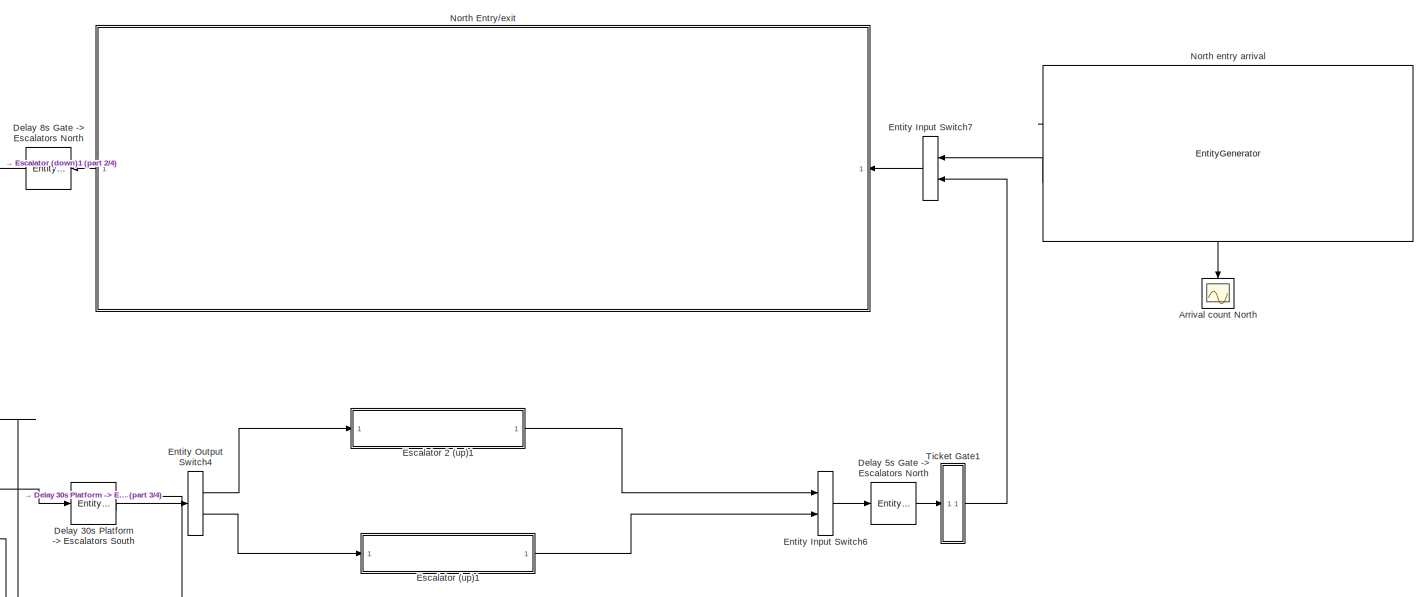
[diagram: root canvas - part 1/4, top right region]
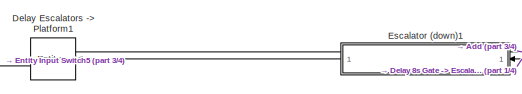
[diagram: root canvas - part 2/4, top center region]
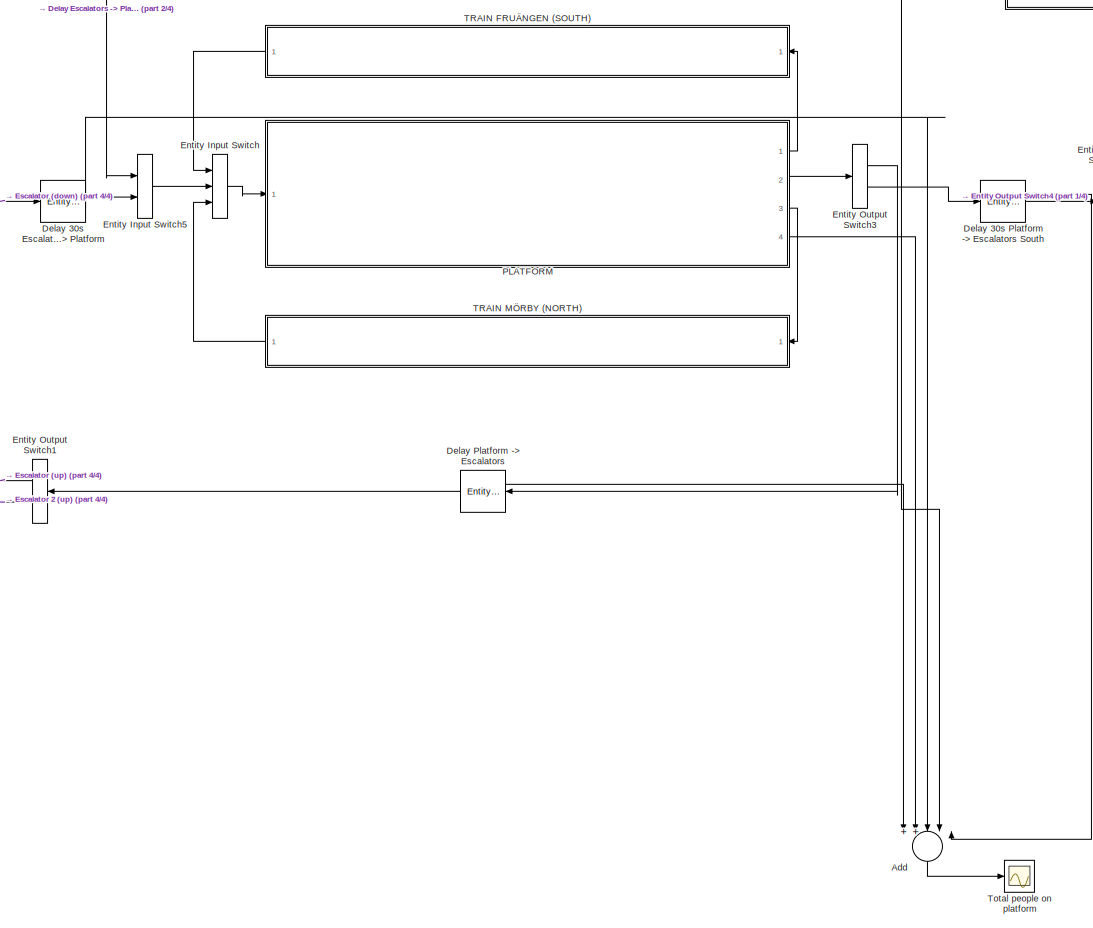
[diagram: root canvas - part 3/4, center side, full height]
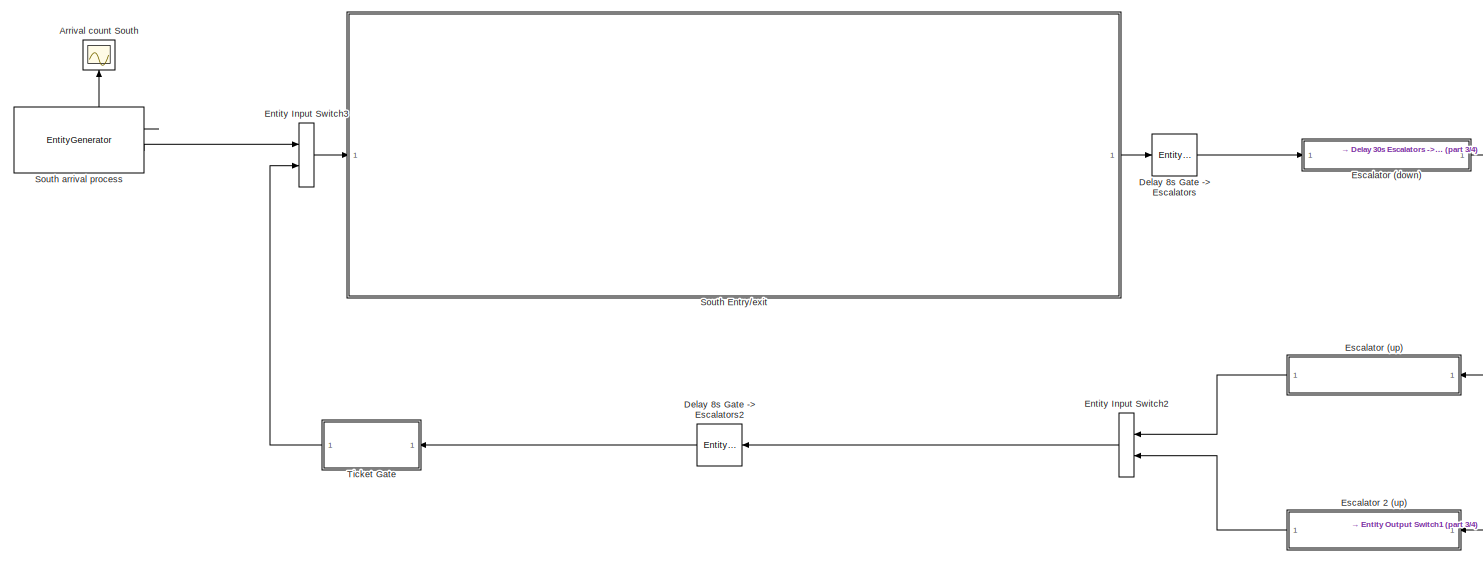
[diagram: root canvas - part 4/4, middle left region]
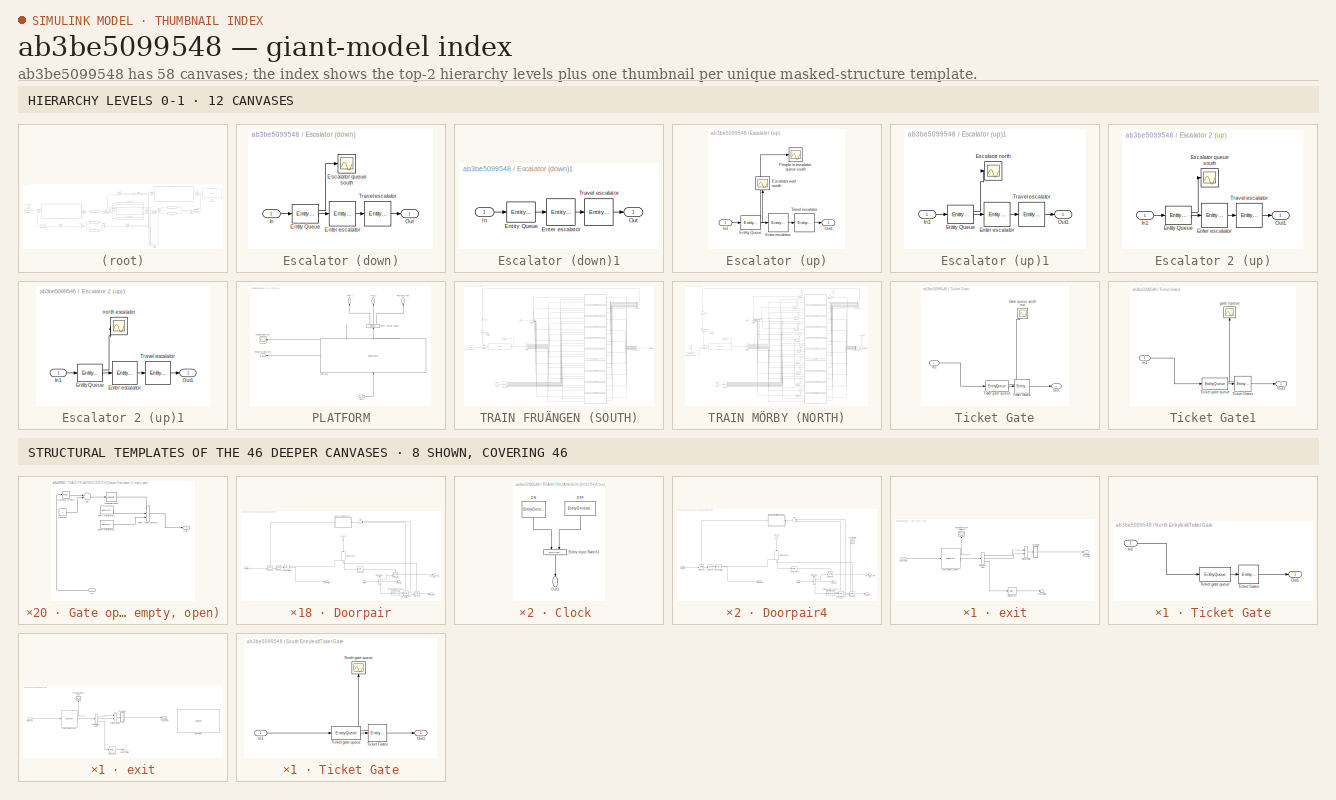
[diagram: thumbnail index - top-2 hierarchy levels (12 canvases) + 8 structural-template representatives of the remaining 46 canvases]
MODEL slx_ab3be5099548
KIND model
CONFIG AbsTol = auto
CONFIG EnableMultiTasking = off
CONFIG FixedStep = auto
CONFIG MaxStep = auto
CONFIG MinStep = auto
CONFIG RelTol = 1e-3
CONFIG SampleTimeConstraint = Unconstrained
CONFIG Solver = VariableStepAuto
CONFIG SolverName = VariableStepAuto
CONFIG StartTime = 0.0
CONFIG StopTime = 3600
BLOCK [Sum] Add
  InputSameDT = off
  Inputs = 5
  OutDataTypeStr = Inherit: Inherit via internal rule
  Ports = [5, 1]
  SaturateOnIntegerOverflow = off
BLOCK [Scope] Arrival count North
  Floating = off
  NumInputPorts = 1
  Ports = [1]
  ScopeSpecificationString = Simulink.scopes.TimeScopeBlockCfg('CurrentConfiguration', extmgr.ConfigurationSet(extmgr.Configuration('Core','General UI',true),extmgr.Configuration('Core','Source UI',true),extmgr.Configuration('Sources','WiredSimulink',true,'DataLoggingVariableName','ScopeData5'),extmgr.Configuration('Visuals','Time Domain',true,'SerializedDisplays',{struct('MinYLimReal','-44.625','MaxYLimReal','411.625','YLabe...<+1430ch>
BLOCK [Scope] Arrival count South
  Floating = off
  NumInputPorts = 1
  Ports = [1]
  ScopeSpecificationString = Simulink.scopes.TimeScopeBlockCfg('CurrentConfiguration', extmgr.ConfigurationSet(extmgr.Configuration('Core','General UI',true),extmgr.Configuration('Core','Source UI',true),extmgr.Configuration('Sources','WiredSimulink',true,'DataLoggingVariableName','ScopeData2'),extmgr.Configuration('Visuals','Time Domain',true,'SerializedDisplays',{struct('MinYLimReal','-91.25','MaxYLimReal','831.25','YLabelR...<+1399ch>
BLOCK [EntityServer] Delay 30s Escalators -> Platform
  Capacity = inf
  InputPortMap = u2
  InputPortMessageModes = m
  NumberEntitiesInBlock = on
  OutputPortMap = o1,o9
  OutputPortMessageModes = n,m
  Ports = [1, 2]
  ServiceTimeValue = 30
BLOCK [EntityServer] Delay 30s Platform -> Escalators South
  Capacity = inf
  InputPortMap = u2
  InputPortMessageModes = m
  NumberEntitiesInBlock = on
  OutputPortMap = o1,o9
  OutputPortMessageModes = n,m
  Ports = [1, 2]
  ServiceTimeAction = dt = (10-entity.Cart)*12;
  ServiceTimeSource = MATLAB action
  ServiceTimeValue = 30
BLOCK [EntityServer] Delay 5s Gate -> Escalators North
  Capacity = inf
  InputPortMap = u2
  InputPortMessageModes = m
  OutputPortMap = o9
  OutputPortMessageModes = m
  Ports = [1, 1]
  ServiceTimeValue = 5
BLOCK [EntityServer] Delay 8s Gate -> Escalators
  Capacity = inf
  InputPortMap = u2
  InputPortMessageModes = m
  OutputPortMap = o9
  OutputPortMessageModes = m
  Ports = [1, 1]
  ServiceTimeValue = 8
BLOCK [EntityServer] Delay 8s Gate -> Escalators North 
  Capacity = inf
  InputPortMap = u2
  InputPortMessageModes = m
  OutputPortMap = o9
  OutputPortMessageModes = m
  Ports = [1, 1]
  ServiceTimeValue = 5
BLOCK [EntityServer] Delay 8s Gate -> Escalators2
  Capacity = inf
  InputPortMap = u2
  InputPortMessageModes = m
  OutputPortMap = o9
  OutputPortMessageModes = m
  Ports = [1, 1]
  ServiceTimeValue = 8
BLOCK [EntityServer] Delay Escalators -> Platform1
  Capacity = inf
  InputPortMap = u2
  InputPortMessageModes = m
  NumberEntitiesInBlock = on
  OutputPortMap = o1,o9
  OutputPortMessageModes = n,m
  Ports = [1, 2]
  ServiceTimeAction = dt = (10-entity.Cart)*12;
  ServiceTimeSource = MATLAB action
  ServiceTimeValue = 30
BLOCK [EntityServer] Delay Platform -> Escalators
  Capacity = inf
  InputPortMap = u2
  InputPortMessageModes = m
  NumberEntitiesInBlock = on
  OutputPortMap = o1,o9
  OutputPortMessageModes = n,m
  Ports = [1, 2]
  ServiceTimeAction = dt = entity.Cart*12;
  ServiceTimeSource = MATLAB action
  ServiceTimeValue = 30
BLOCK [EntityInputSwitch] Entity Input Switch
  InputPortMap = u1,u2,u3
  InputPortMessageModes = m,m,m
  NumberInputPorts = 3
  OutputPortMap = o0
  OutputPortMessageModes = m
  Ports = [3, 1]
BLOCK [EntityInputSwitch] Entity Input Switch2
  InputPortMap = u1,u2
  InputPortMessageModes = m,m
  OutputPortMap = o0
  OutputPortMessageModes = m
  Ports = [2, 1]
BLOCK [EntityInputSwitch] Entity Input Switch3
  InputPortMap = u1,u2
  InputPortMessageModes = m,m
  OutputPortMap = o0
  OutputPortMessageModes = m
  Ports = [2, 1]
BLOCK [EntityInputSwitch] Entity Input Switch5
  InputPortMap = u1,u2
  InputPortMessageModes = m,m
  OutputPortMap = o0
  OutputPortMessageModes = m
  Ports = [2, 1]
BLOCK [EntityInputSwitch] Entity Input Switch6
  InputPortMap = u1,u2
  InputPortMessageModes = m,m
  OutputPortMap = o0
  OutputPortMessageModes = m
  Ports = [2, 1]
BLOCK [EntityInputSwitch] Entity Input Switch7
  InputPortMap = u1,u2
  InputPortMessageModes = m,m
  OutputPortMap = o0
  OutputPortMessageModes = m
  Ports = [2, 1]
BLOCK [EntityOutputSwitch] Entity Output Switch1
  InputPortMap = u1
  InputPortMessageModes = m
  OutputPortMap = o0,o1
  OutputPortMessageModes = m,m
  Ports = [1, 2]
  SwitchAttributeName = Attribute1
BLOCK [EntityOutputSwitch] Entity Output Switch3
  InputPortMap = u1
  InputPortMessageModes = m
  OutputPortMap = o0,o1
  OutputPortMessageModes = m,m
  Ports = [1, 2]
  SwitchAttributeName = DesiredExit
  SwitchingCriterion = Equiprobable
BLOCK [EntityOutputSwitch] Entity Output Switch4
  InputPortMap = u1
  InputPortMessageModes = m
  OutputPortMap = o0,o1
  OutputPortMessageModes = m,m
  Ports = [1, 2]
  SwitchAttributeName = Attribute1
BLOCK [SubSystem] Escalator (down)
  Ports = [1, 1]
  RequestExecContextInheritance = off
BLOCK [EntityServer] Escalator (down)/Enter escalator
  Capacity = 1
  InputPortMap = u2
  InputPortMessageModes = m
  OutputPortMap = o9
  OutputPortMessageModes = m
  Ports = [1, 1]
  ServiceTimeValue = 1
BLOCK [EntityQueue] Escalator (down)/Entity Queue
  Capacity = inf
  InputPortMap = u0
  InputPortMessageModes = m
  NumberEntitiesInBlock = on
  OutputPortMap = o1,o5
  OutputPortMessageModes = n,m
  Ports = [1, 2]
BLOCK [Scope] Escalator (down)/Escalator queue south
  Floating = off
  NumInputPorts = 1
  Ports = [1]
  ScopeSpecificationString = Simulink.scopes.TimeScopeBlockCfg('CurrentConfiguration', extmgr.ConfigurationSet(extmgr.Configuration('Core','General UI',true),extmgr.Configuration('Core','Source UI',true),extmgr.Configuration('Sources','WiredSimulink',true,'DataLoggingVariableName','ScopeData23'),extmgr.Configuration('Visuals','Time Domain',true,'SerializedDisplays',{struct('MinYLimReal','-0.25','MaxYLimReal','2.25','YLabelRea...<+1383ch>
BLOCK [Inport] Escalator (down)/In
  IconDisplay = Port number
BLOCK [Outport] Escalator (down)/Out
  IconDisplay = Port number
BLOCK [EntityServer] Escalator (down)/Travel escalator
  Capacity = inf
  InputPortMap = u2
  InputPortMessageModes = m
  OutputPortMap = o9
  OutputPortMessageModes = m
  Ports = [1, 1]
  ServiceTimeValue = 40
BLOCK [SubSystem] Escalator (down)1
  Ports = [1, 1]
  RequestExecContextInheritance = off
BLOCK [EntityServer] Escalator (down)1/Enter escalator
  Capacity = 1
  InputPortMap = u2
  InputPortMessageModes = m
  OutputPortMap = o9
  OutputPortMessageModes = m
  Ports = [1, 1]
  ServiceTimeValue = 1
BLOCK [EntityQueue] Escalator (down)1/Entity Queue
  Capacity = inf
  InputPortMap = u0
  InputPortMessageModes = m
  OutputPortMap = o5
  OutputPortMessageModes = m
  Ports = [1, 1]
BLOCK [Inport] Escalator (down)1/In
  IconDisplay = Port number
BLOCK [Outport] Escalator (down)1/Out
  IconDisplay = Port number
BLOCK [EntityServer] Escalator (down)1/Travel escalator
  Capacity = inf
  InputPortMap = u2
  InputPortMessageModes = m
  OutputPortMap = o9
  OutputPortMessageModes = m
  Ports = [1, 1]
  ServiceTimeValue = 40
BLOCK [SubSystem] Escalator (up)
  Ports = [1, 1]
  RequestExecContextInheritance = off
BLOCK [EntityServer] Escalator (up)/Enter escalator
  Capacity = 1
  InputPortMap = u2
  InputPortMessageModes = m
  OutputPortMap = o9
  OutputPortMessageModes = m
  Ports = [1, 1]
  ServiceTimeValue = 1
BLOCK [EntityQueue] Escalator (up)/Entity Queue
  AverageWait = on
  Capacity = inf
  InputPortMap = u0
  InputPortMessageModes = m
  NumberEntitiesInBlock = on
  OutputPortMap = o1,o2,o5
  OutputPortMessageModes = n,n,m
  Ports = [1, 3]
BLOCK [Scope] Escalator (up)/Escalator wait south
  Floating = off
  NumInputPorts = 1
  Ports = [1]
  ScopeSpecificationString = Simulink.scopes.TimeScopeBlockCfg('CurrentConfiguration', extmgr.ConfigurationSet(extmgr.Configuration('Core','General UI',true),extmgr.Configuration('Core','Source UI',true),extmgr.Configuration('Sources','WiredSimulink',true,'DataLoggingVariableName','ScopeData2'),extmgr.Configuration('Visuals','Time Domain',true,'SerializedDisplays',{struct('MinYLimReal','3.99063','MaxYLimReal','26.2823','YLabe...<+1442ch>
BLOCK [Inport] Escalator (up)/In1
  IconDisplay = Port number
BLOCK [Outport] Escalator (up)/Out1
  IconDisplay = Port number
BLOCK [Scope] Escalator (up)/People in escalator queue south
  Floating = off
  NumInputPorts = 1
  Ports = [1]
  ScopeSpecificationString = Simulink.scopes.TimeScopeBlockCfg('CurrentConfiguration', extmgr.ConfigurationSet(extmgr.Configuration('Core','General UI',true),extmgr.Configuration('Core','Source UI',true),extmgr.Configuration('Sources','WiredSimulink',true,'DataLoggingVariableName','ScopeData4'),extmgr.Configuration('Visuals','Time Domain',true,'SerializedDisplays',{struct('MinYLimReal','-14.25','MaxYLimReal','128.25','YLabelR...<+1436ch>
BLOCK [EntityServer] Escalator (up)/Travel escalator
  Capacity = inf
  InputPortMap = u2
  InputPortMessageModes = m
  OutputPortMap = o9
  OutputPortMessageModes = m
  Ports = [1, 1]
  ServiceTimeValue = 40
BLOCK [SubSystem] Escalator (up)1
  Ports = [1, 1]
  RequestExecContextInheritance = off
BLOCK [EntityServer] Escalator (up)1/Enter escalator
  Capacity = 1
  InputPortMap = u2
  InputPortMessageModes = m
  OutputPortMap = o9
  OutputPortMessageModes = m
  Ports = [1, 1]
  ServiceTimeValue = 1
BLOCK [EntityQueue] Escalator (up)1/Entity Queue
  Capacity = inf
  InputPortMap = u0
  InputPortMessageModes = m
  NumberEntitiesInBlock = on
  OutputPortMap = o1,o5
  OutputPortMessageModes = n,m
  Ports = [1, 2]
BLOCK [Scope] Escalator (up)1/Escalaotr north 
  Floating = off
  NumInputPorts = 1
  Ports = [1]
  ScopeSpecificationString = Simulink.scopes.TimeScopeBlockCfg('CurrentConfiguration', extmgr.ConfigurationSet(extmgr.Configuration('Core','General UI',true),extmgr.Configuration('Core','Source UI',true),extmgr.Configuration('Sources','WiredSimulink',true,'DataLoggingVariableName','ScopeData26'),extmgr.Configuration('Visuals','Time Domain',true),extmgr.Configuration('Tools','Plot Navigation',true),extmgr.Configuration('Tools'...<+41ch>
BLOCK [Inport] Escalator (up)1/In1
  IconDisplay = Port number
BLOCK [Outport] Escalator (up)1/Out1
  IconDisplay = Port number
BLOCK [EntityServer] Escalator (up)1/Travel escalator
  Capacity = inf
  InputPortMap = u2
  InputPortMessageModes = m
  OutputPortMap = o9
  OutputPortMessageModes = m
  Ports = [1, 1]
  ServiceTimeValue = 40
BLOCK [SubSystem] Escalator 2 (up)
  Ports = [1, 1]
  RequestExecContextInheritance = off
BLOCK [EntityServer] Escalator 2 (up)/Enter escalator
  Capacity = 1
  InputPortMap = u2
  InputPortMessageModes = m
  OutputPortMap = o9
  OutputPortMessageModes = m
  Ports = [1, 1]
  ServiceTimeValue = 1
BLOCK [EntityQueue] Escalator 2 (up)/Entity Queue
  Capacity = inf
  InputPortMap = u0
  InputPortMessageModes = m
  NumberEntitiesInBlock = on
  OutputPortMap = o1,o5
  OutputPortMessageModes = n,m
  Ports = [1, 2]
BLOCK [Scope] Escalator 2 (up)/Escalator queue south
  Floating = off
  NumInputPorts = 1
  Ports = [1]
  ScopeSpecificationString = Simulink.scopes.TimeScopeBlockCfg('CurrentConfiguration', extmgr.ConfigurationSet(extmgr.Configuration('Core','General UI',true),extmgr.Configuration('Core','Source UI',true),extmgr.Configuration('Sources','WiredSimulink',true,'DataLoggingVariableName','ScopeData24'),extmgr.Configuration('Visuals','Time Domain',true),extmgr.Configuration('Tools','Plot Navigation',true),extmgr.Configuration('Tools'...<+41ch>
BLOCK [Inport] Escalator 2 (up)/In1
  IconDisplay = Port number
BLOCK [Outport] Escalator 2 (up)/Out1
  IconDisplay = Port number
BLOCK [EntityServer] Escalator 2 (up)/Travel escalator
  Capacity = inf
  InputPortMap = u2
  InputPortMessageModes = m
  OutputPortMap = o9
  OutputPortMessageModes = m
  Ports = [1, 1]
  ServiceTimeValue = 40
BLOCK [SubSystem] Escalator 2 (up)1
  Ports = [1, 1]
  RequestExecContextInheritance = off
BLOCK [EntityServer] Escalator 2 (up)1/Enter escalator
  Capacity = 1
  InputPortMap = u2
  InputPortMessageModes = m
  OutputPortMap = o9
  OutputPortMessageModes = m
  Ports = [1, 1]
  ServiceTimeValue = 1
BLOCK [EntityQueue] Escalator 2 (up)1/Entity Queue
  Capacity = inf
  InputPortMap = u0
  InputPortMessageModes = m
  NumberEntitiesInBlock = on
  OutputPortMap = o1,o5
  OutputPortMessageModes = n,m
  Ports = [1, 2]
BLOCK [Inport] Escalator 2 (up)1/In1
  IconDisplay = Port number
BLOCK [Outport] Escalator 2 (up)1/Out1
  IconDisplay = Port number
BLOCK [EntityServer] Escalator 2 (up)1/Travel escalator
  Capacity = inf
  InputPortMap = u2
  InputPortMessageModes = m
  OutputPortMap = o9
  OutputPortMessageModes = m
  Ports = [1, 1]
  ServiceTimeValue = 40
BLOCK [Scope] Escalator 2 (up)1/north escalator 
  Floating = off
  NumInputPorts = 1
  Ports = [1]
  ScopeSpecificationString = Simulink.scopes.TimeScopeBlockCfg('CurrentConfiguration', extmgr.ConfigurationSet(extmgr.Configuration('Core','General UI',true),extmgr.Configuration('Core','Source UI',true),extmgr.Configuration('Sources','WiredSimulink',true,'DataLoggingVariableName','ScopeData25'),extmgr.Configuration('Visuals','Time Domain',true,'SerializedDisplays',{struct('MinYLimReal','-4.375','MaxYLimReal','39.375','YLabel...<+1419ch>
BLOCK [SubSystem] North Entry//exit
  Ports = [1, 1]
  RequestExecContextInheritance = off
BLOCK [EntityInputSwitch] North Entry//exit/Entity Input Switch
  InputPortMap = u1,u2
  InputPortMessageModes = m,m
  OutputPortMap = o0
  OutputPortMessageModes = m
  Ports = [2, 1]
BLOCK [EntityOutputSwitch] North Entry//exit/Entity Output Switch
  InputPortMap = u1
  InputPortMessageModes = m
  NumberOutputPorts = 3
  OutputPortMap = o0,o1,o2
  OutputPortMessageModes = m,m,m
  Ports = [1, 3]
  SwitchAttributeName = Destination
  SwitchingCriterion = From attribute
BLOCK [EntityServer] North Entry//exit/Entity Server
  Capacity = inf
  ExitAction = persistent service_time\npersistent N\n\nif isempty(service_time)\n    service_time = 0;\n    N = 0;\nend\n\ncoder.extrinsic("get_param");\nv = double(0);\nv = get_param("tekniska","SimulationTime");\n\nN = N+1;\nservice_time = service_time + (v - entity.Timer);\nmean_service_north_exit_from_train = service_time/N
  InputPortMap = u2
  InputPortMessageModes = m
  OutputPortMap = o9
  OutputPortMessageModes = m
  Ports = [1, 1]
  ServiceTimeValue = 0
BLOCK [Inport] North Entry//exit/Entry point
  IconDisplay = Port number
BLOCK [EntityServer] North Entry//exit/Entry//exit hall (12s walk)
  Capacity = inf
  InputPortMap = u2
  InputPortMessageModes = m
  NumberEntitiesInBlock = on
  OutputPortMap = o1,o9
  OutputPortMessageModes = n,m
  Ports = [1, 2]
  ServiceTimeValue = 12
BLOCK [Outport] North Entry//exit/Escalator connection
  IconDisplay = Port number
BLOCK [Terminator] North Entry//exit/Leave station
BLOCK [Scope] North Entry//exit/People in entry//exit hall North 
  Floating = off
  NumInputPorts = 1
  Ports = [1]
  ScopeSpecificationString = Simulink.scopes.TimeScopeBlockCfg('CurrentConfiguration', extmgr.ConfigurationSet(extmgr.Configuration('Core','General UI',true),extmgr.Configuration('Core','Source UI',true),extmgr.Configuration('Sources','WiredSimulink',true,'DataLoggingVariableName','ScopeData4'),extmgr.Configuration('Visuals','Time Domain',true,'SerializedDisplays',{struct('MinYLimReal','-0.125','MaxYLimReal','1.125','YLabelRe...<+1390ch>
BLOCK [SubSystem] North Entry//exit/Ticket Gate
  Ports = [1, 1]
  RequestExecContextInheritance = off
BLOCK [Inport] North Entry//exit/Ticket Gate/In1
  IconDisplay = Port number
BLOCK [Outport] North Entry//exit/Ticket Gate/Out1
  IconDisplay = Port number
BLOCK [EntityServer] North Entry//exit/Ticket Gate/Ticket Gates
  InputPortMap = u2
  InputPortMessageModes = m
  OutputPortMap = o9
  OutputPortMessageModes = m
  Ports = [1, 1]
  ServiceTimeValue = 4
BLOCK [EntityQueue] North Entry//exit/Ticket Gate/Ticket gate queue
  Capacity = inf
  InputPortMap = u0
  InputPortMessageModes = m
  OutputPortMap = o5
  OutputPortMessageModes = m
  Ports = [1, 1]
BLOCK [EntityGenerator] North entry arrival
  AttributeInitialValue = 1|1|1|3
  AttributeName = Destination|Cart|Timer|DesiredExit
  EntityType = Structured
  EntityTypeName = Passenger
  GenerateAction = if rand() > 0.5\n    entity.Destination = 2;\nend\n\ncoder.extrinsic("get_param");\nentity.Timer = get_param("tekniska", "SimulationTime");\n\nprobs = geopdf(0:9, 0.2);\nprobs = probs/sum(probs);\nprobs = flip(probs);\nentity.Cart = sum(rand() >= cumsum([0,probs]));
  GenerateEntityAtSimulationStart = off
  IntergenerationTimeAction = wait_per_person = 20;\ndt = exprnd(wait_per_person);
  NumberEntitiesDeparted = on
  OutputPortMap = o0,o3
  OutputPortMessageModes = n,m
  Ports = [0, 2]
  TimeSource = MATLAB action
BLOCK [SubSystem] PLATFORM
  Ports = [1, 4]
  RequestExecContextInheritance = off
BLOCK [EntityOutputSwitch] PLATFORM/Entity Output Switch
  InputPortMap = u1
  InputPortMessageModes = m
  NumberOutputPorts = 3
  OutputPortMap = o0,o1,o2
  OutputPortMessageModes = m,m,m
  Ports = [1, 3]
  SwitchAttributeName = Destination
  SwitchingCriterion = From attribute
BLOCK [Inport] PLATFORM/Entry
  IconDisplay = Port number
BLOCK [Scope] PLATFORM/Leaving platform 
  Floating = off
  NumInputPorts = 1
  Ports = [1]
  ScopeSpecificationString = Simulink.scopes.TimeScopeBlockCfg('CurrentConfiguration', extmgr.ConfigurationSet(extmgr.Configuration('Core','General UI',true),extmgr.Configuration('Core','Source UI',true),extmgr.Configuration('Sources','WiredSimulink',true,'DataLoggingVariableName','ScopeData1'),extmgr.Configuration('Visuals','Time Domain',true,'SerializedDisplays',{struct('MinYLimReal','-345.625','MaxYLimReal','3120.625','YLa...<+1422ch>
BLOCK [Outport] PLATFORM/People on platform
  IconDisplay = Port number
  Port = 4
BLOCK [EntityStore] PLATFORM/Platform 
  Capacity = inf
  InputPortMap = u0
  InputPortMessageModes = m
  NumberEntitiesDeparted = on
  NumberEntitiesInBlock = on
  OutputPortMap = o0,o1,o4
  OutputPortMessageModes = n,n,m
  Ports = [1, 3]
BLOCK [Outport] PLATFORM/Platform exit
  IconDisplay = Port number
  Port = 2
BLOCK [Outport] PLATFORM/Train 1
  IconDisplay = Port number
BLOCK [Outport] PLATFORM/Train 2
  IconDisplay = Port number
  Port = 3
BLOCK [SubSystem] South Entry//exit
  Ports = [1, 1]
  RequestExecContextInheritance = off
BLOCK [EntityInputSwitch] South Entry//exit/Entity Input Switch
  InputPortMap = u1,u2
  InputPortMessageModes = m,m
  OutputPortMap = o0
  OutputPortMessageModes = m
  Ports = [2, 1]
BLOCK [EntityOutputSwitch] South Entry//exit/Entity Output Switch
  InputPortMap = u1
  InputPortMessageModes = m
  NumberOutputPorts = 3
  OutputPortMap = o0,o1,o2
  OutputPortMessageModes = m,m,m
  Ports = [1, 3]
  SwitchAttributeName = Destination
  SwitchingCriterion = From attribute
BLOCK [EntityServer] South Entry//exit/Entity Server
  Capacity = inf
  ExitAction = persistent service_time\npersistent N\n\nif isempty(service_time)\n    service_time = 0;\n    N = 0;\nend\n\ncoder.extrinsic("get_param");\nv = double(0);\nv = get_param("tekniska","SimulationTime");\n\nN = N+1;\nservice_time = service_time + (v - entity.Timer);\nmean_service_south_exit_from_train = service_time/N
  InputPortMap = u2
  InputPortMessageModes = m
  OutputPortMap = o9
  OutputPortMessageModes = m
  Ports = [1, 1]
  ServiceTimeValue = 0
BLOCK [Inport] South Entry//exit/Entry point
  IconDisplay = Port number
BLOCK [EntityStore] South Entry//exit/Entry//exiit hall
  Capacity = 100
  Commented = on
  InputPortMap = u0
  InputPortMessageModes = m
  NumberEntitiesInBlock = on
  OutputPortMap = o1,o4
  OutputPortMessageModes = n,m
  Ports = [1, 2]
BLOCK [EntityServer] South Entry//exit/Entry//exit hall (15s walk)
  Capacity = inf
  InputPortMap = u2
  InputPortMessageModes = m
  NumberEntitiesInBlock = on
  OutputPortMap = o1,o9
  OutputPortMessageModes = n,m
  Ports = [1, 2]
  ServiceTimeValue = 15
BLOCK [Outport] South Entry//exit/Escalator connection
  IconDisplay = Port number
BLOCK [Terminator] South Entry//exit/Leave station
BLOCK [Scope] South Entry//exit/People in entry//exit hall 
  Floating = off
  NumInputPorts = 1
  Ports = [1]
  ScopeSpecificationString = Simulink.scopes.TimeScopeBlockCfg('CurrentConfiguration', extmgr.ConfigurationSet(extmgr.Configuration('Core','General UI',true),extmgr.Configuration('Core','Source UI',true),extmgr.Configuration('Sources','WiredSimulink',true,'DataLoggingVariableName','ScopeData4'),extmgr.Configuration('Visuals','Time Domain',true,'SerializedDisplays',{struct('MinYLimReal','-2.75','MaxYLimReal','24.75','YLabelRea...<+1400ch>
BLOCK [SubSystem] South Entry//exit/Ticket Gate
  Ports = [1, 1]
  RequestExecContextInheritance = off
BLOCK [Inport] South Entry//exit/Ticket Gate/In1
  IconDisplay = Port number
BLOCK [Scope] South Entry//exit/Ticket Gate/North gate queue
  Floating = off
  NumInputPorts = 1
  Ports = [1]
  ScopeSpecificationString = Simulink.scopes.TimeScopeBlockCfg('CurrentConfiguration', extmgr.ConfigurationSet(extmgr.Configuration('Core','General UI',true),extmgr.Configuration('Core','Source UI',true),extmgr.Configuration('Sources','WiredSimulink',true,'DataLoggingVariableName','ScopeData22'),extmgr.Configuration('Visuals','Time Domain',true),extmgr.Configuration('Tools','Plot Navigation',true),extmgr.Configuration('Tools'...<+41ch>
BLOCK [Outport] South Entry//exit/Ticket Gate/Out1
  IconDisplay = Port number
BLOCK [EntityServer] South Entry//exit/Ticket Gate/Ticket Gates
  InputPortMap = u2
  InputPortMessageModes = m
  OutputPortMap = o9
  OutputPortMessageModes = m
  Ports = [1, 1]
  ServiceTimeValue = 4
BLOCK [EntityQueue] South Entry//exit/Ticket Gate/Ticket gate queue
  Capacity = inf
  InputPortMap = u0
  InputPortMessageModes = m
  NumberEntitiesInBlock = on
  OutputPortMap = o1,o5
  OutputPortMessageModes = n,m
  Ports = [1, 2]
BLOCK [EntityGenerator] South arrival process
  AttributeInitialValue = 1|1|1|3
  AttributeName = Destination|Cart|Timer|DesiredExit
  EntityType = Structured
  EntityTypeName = Passenger
  GenerateAction = if rand() > 0.5\n    entity.Destination = 2;\nend\n\ncoder.extrinsic("get_param");\nentity.Timer = get_param("tekniska", "SimulationTime");\n\n% Arriving from KTH\nprobs = geopdf(0:9, 0.2);\nprobs = probs/sum(probs);\nentity.Cart = sum(rand() >= cumsum([0,probs]));
  GenerateEntityAtSimulationStart = off
  IntergenerationTimeAction = wait_per_person = 10;\ndt = exprnd(wait_per_person);
  NumberEntitiesDeparted = on
  OutputPortMap = o0,o3
  OutputPortMessageModes = n,m
  Ports = [0, 2]
  TimeSource = MATLAB action
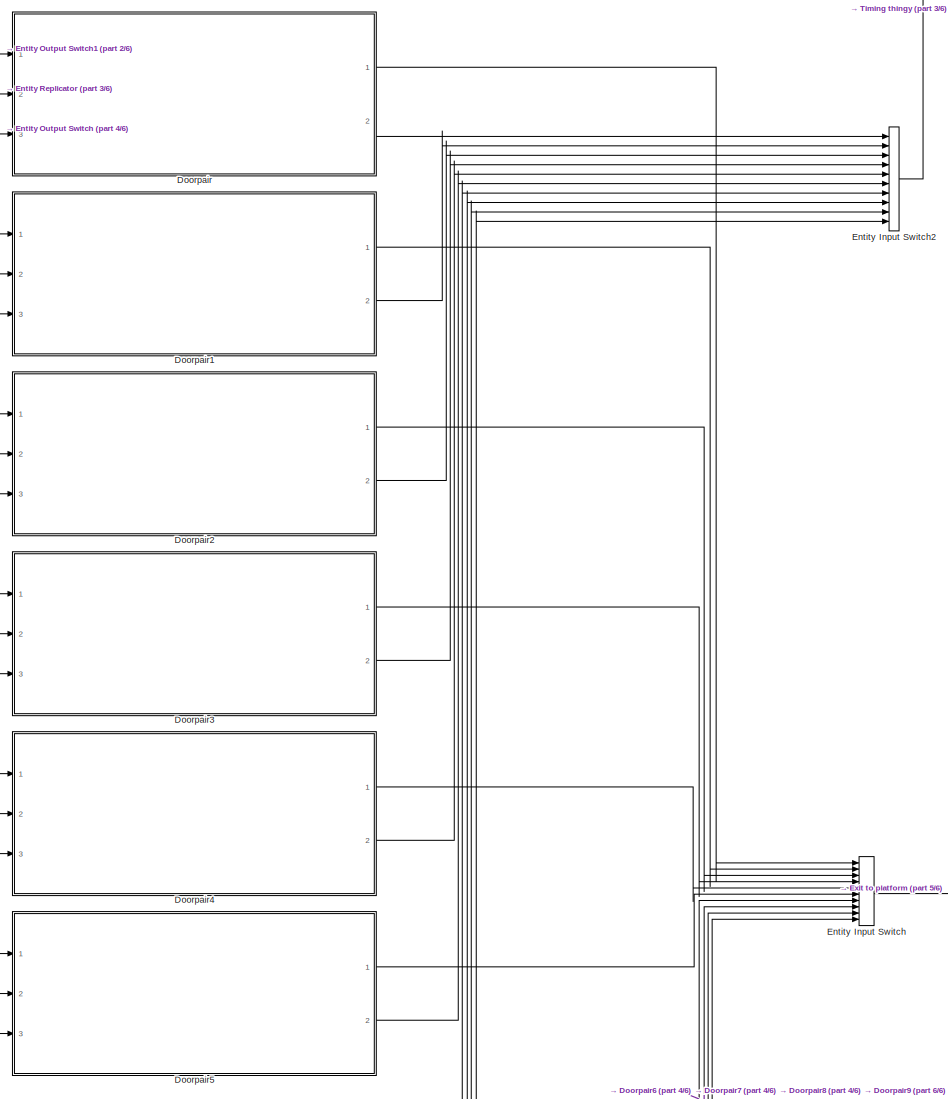
[diagram: TRAIN FRUÄNGEN (SOUTH) - part 1/6, middle right region]
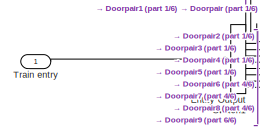
[diagram: TRAIN FRUÄNGEN (SOUTH) - part 2/6, top left region]
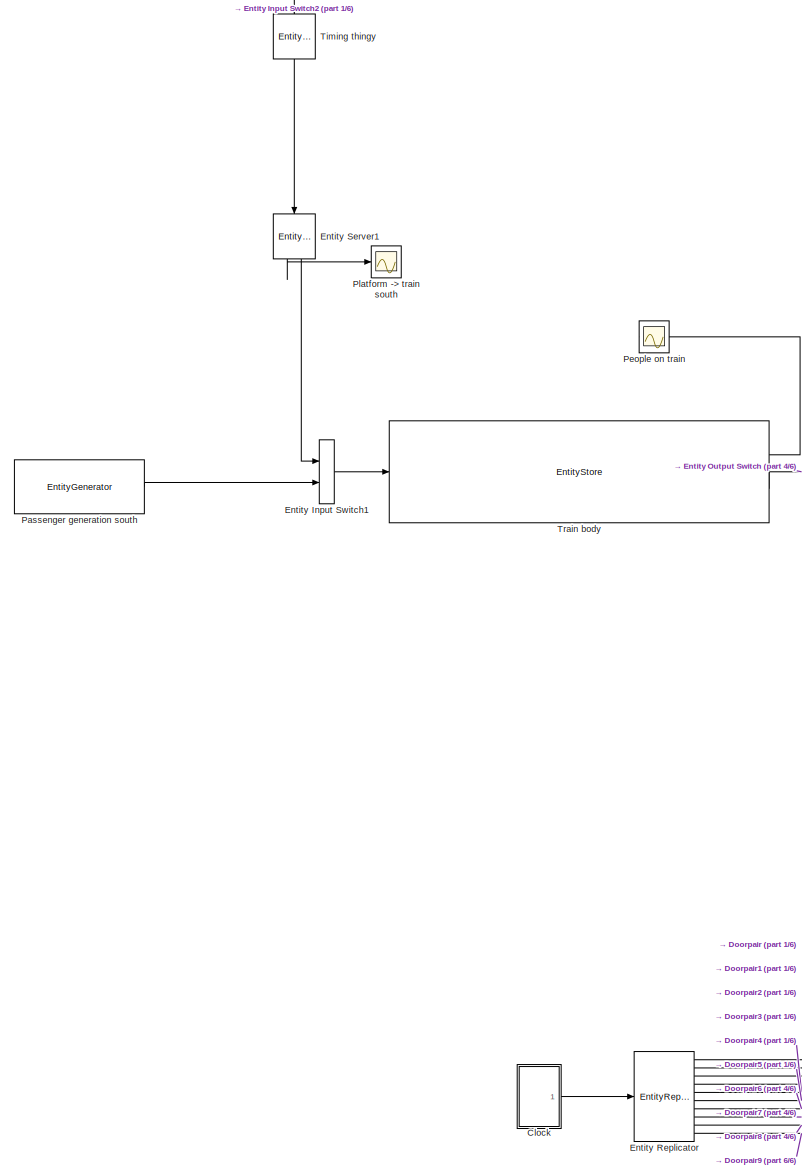
[diagram: TRAIN FRUÄNGEN (SOUTH) - part 3/6, middle left region]
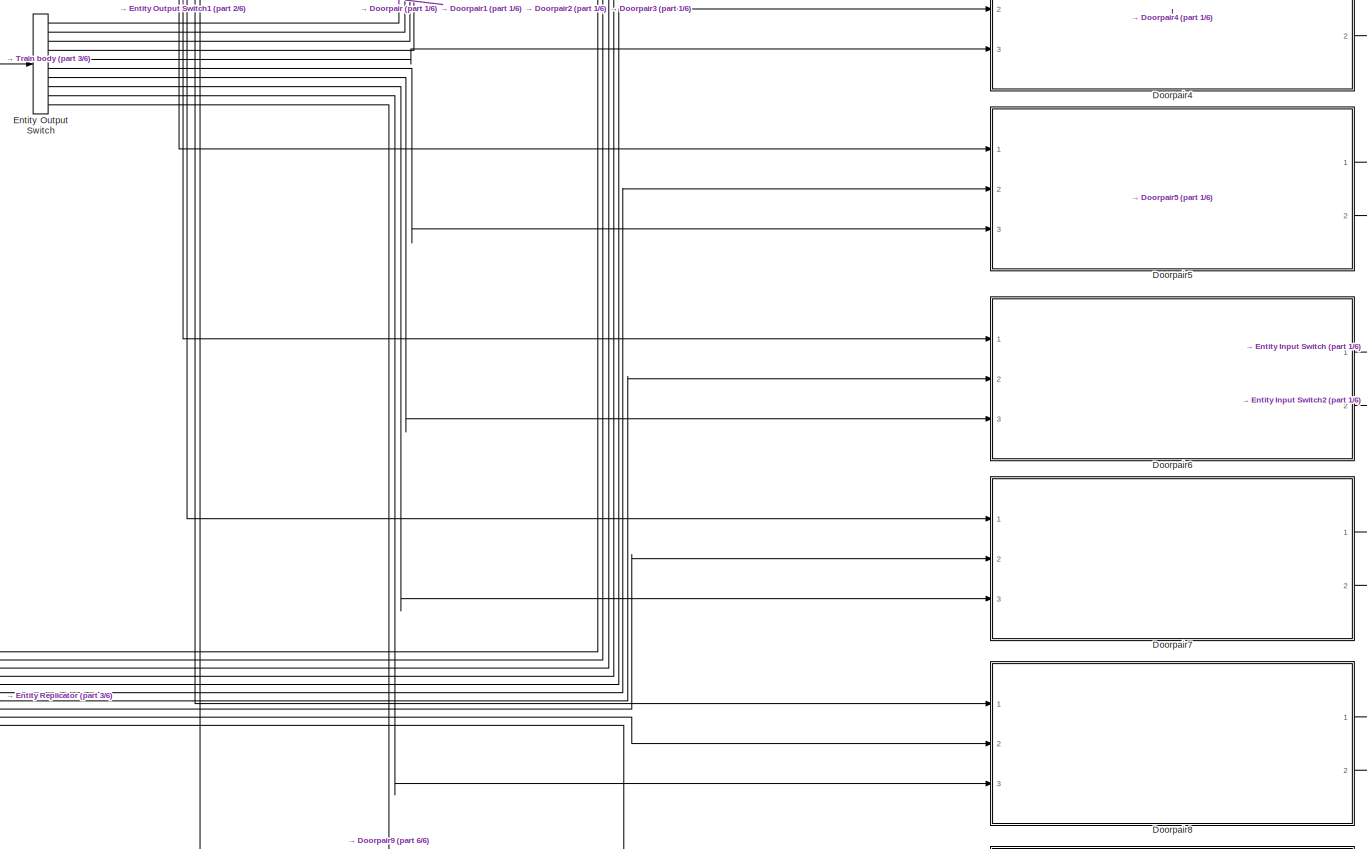
[diagram: TRAIN FRUÄNGEN (SOUTH) - part 4/6, bottom center region]
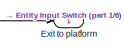
[diagram: TRAIN FRUÄNGEN (SOUTH) - part 5/6, middle right region]
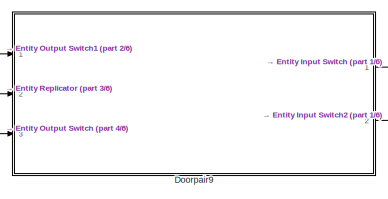
[diagram: TRAIN FRUÄNGEN (SOUTH) - part 6/6, bottom right region]
BLOCK [SubSystem] TRAIN FRUÄNGEN (SOUTH)
  Ports = [1, 1]
  RequestExecContextInheritance = off
BLOCK [SubSystem] TRAIN FRUÄNGEN (SOUTH)/Clock 
  Ports = [0, 1]
  RequestExecContextInheritance = off
BLOCK [EntityInputSwitch] TRAIN FRUÄNGEN (SOUTH)/Clock /Entity Input Switch1
  InputPortMap = u1,u2
  InputPortMessageModes = m,m
  OutputPortMap = o0
  OutputPortMessageModes = m
  Ports = [2, 1]
BLOCK [EntityGenerator] TRAIN FRUÄNGEN (SOUTH)/Clock /OFF
  AttributeInitialValue = 0
  AttributeName = entity
  EntityTypeName = Entity
  GenerateEntityAtSimulationStart = off
  IntergenerationTimeAction = time_closed = 240;\ntime_open = 20;\ndt = time_closed + time_open;
  OutputPortMap = o3
  OutputPortMessageModes = m
  Period = 241
  Ports = [0, 1]
  TimeSource = MATLAB action
BLOCK [EntityGenerator] TRAIN FRUÄNGEN (SOUTH)/Clock /ON
  AttributeName = entity
  DataInitialValue = 1
  EntityTypeName = Entity
  GenerateEntityAtSimulationStart = off
  IntergenerationTimeAction = % First train arrives after A seconds\n % Door is open for B seconds and then next train arrives\n % after A minutes. This goes on\n \ntime_closed = 240;\ntime_open = 20;\npersistent first\nif isempty(first)\n    first = true;\n    dt = time_closed; \nelse\n    dt = time_closed + time_open;\nend
  OutputPortMap = o3
  OutputPortMessageModes = m
  Period = 5
  Ports = [0, 1]
  TimeSource = MATLAB action
BLOCK [Outport] TRAIN FRUÄNGEN (SOUTH)/Clock /Out1
  IconDisplay = Port number
BLOCK [SubSystem] TRAIN FRUÄNGEN (SOUTH)/Doorpair
  Ports = [3, 2]
  RequestExecContextInheritance = off
BLOCK [Sum] TRAIN FRUÄNGEN (SOUTH)/Doorpair/Add
  InputSameDT = off
  OutDataTypeStr = Inherit: Inherit via internal rule
  Ports = [2, 1]
  SaturateOnIntegerOverflow = off
BLOCK [Inport] TRAIN FRUÄNGEN (SOUTH)/Doorpair/Clock in
  IconDisplay = Port number
  Port = 2
BLOCK [EntityServer] TRAIN FRUÄNGEN (SOUTH)/Doorpair/Data inverter
  Capacity = inf
  EntryAction = entity = 1 - entity;
  InputPortMap = u2
  InputPortMessageModes = m
  OutputPortMap = o9
  OutputPortMessageModes = m
  Ports = [1, 1]
  ServiceTimeValue = 0
BLOCK [Inport] TRAIN FRUÄNGEN (SOUTH)/Doorpair/Enter train
  IconDisplay = Port number
BLOCK [Outport] TRAIN FRUÄNGEN (SOUTH)/Doorpair/Entered train
  IconDisplay = Port number
  Port = 2
BLOCK [EntityGate] TRAIN FRUÄNGEN (SOUTH)/Doorpair/Entity Gate
  InputPortMap = u0,u1
  InputPortMessageModes = m,m
  OutputPortMap = o0
  OutputPortMessageModes = m
  Ports = [2, 1]
BLOCK [EntityGate] TRAIN FRUÄNGEN (SOUTH)/Doorpair/Entity Gate1
  InputPortMap = u0,u1
  InputPortMessageModes = m,m
  OutputPortMap = o0
  OutputPortMessageModes = m
  Ports = [2, 1]
BLOCK [EntityGate] TRAIN FRUÄNGEN (SOUTH)/Doorpair/Entity Gate2
  InputPortMap = u0,u1
  InputPortMessageModes = m,m
  OutputPortMap = o0
  OutputPortMessageModes = m
  Ports = [2, 1]
BLOCK [EntityGate] TRAIN FRUÄNGEN (SOUTH)/Doorpair/Entity Gate3
  InputPortMap = u0,u1
  InputPortMessageModes = m,m
  OutputPortMap = o0
  OutputPortMessageModes = m
  Ports = [2, 1]
BLOCK [EntityOutputSwitch] TRAIN FRUÄNGEN (SOUTH)/Doorpair/Entity Output Switch
  InputPortMap = u1
  InputPortMessageModes = m
  NumberOutputPorts = 3
  OutputPortMap = o0,o1,o2
  OutputPortMessageModes = m,m,m
  Ports = [1, 3]
  SwitchAttributeName = Destination
  SwitchingCriterion = From attribute
BLOCK [EntityReplicator] TRAIN FRUÄNGEN (SOUTH)/Doorpair/Entity Replicator
  HoldOriginalEntityUntilAllReplicasDepart = on
  InputPortMap = u0
  InputPortMessageModes = m
  NumberReplicas = 2
  OutputPortMap = o0,o1,o2
  OutputPortMessageModes = m,m,m
  Ports = [1, 3]
BLOCK [Outport] TRAIN FRUÄNGEN (SOUTH)/Doorpair/Exit to platform
  IconDisplay = Port number
BLOCK [Inport] TRAIN FRUÄNGEN (SOUTH)/Doorpair/Exit train
  IconDisplay = Port number
  Port = 3
BLOCK [SubSystem] TRAIN FRUÄNGEN (SOUTH)/Doorpair/Gate opener (if empty, open)
  Ports = [1, 1]
  RequestExecContextInheritance = off
BLOCK [Sum] TRAIN FRUÄNGEN (SOUTH)/Doorpair/Gate opener (if empty, open)/Add
  InputSameDT = off
  OutDataTypeStr = Inherit: Inherit via internal rule
  Ports = [2, 1]
  SaturateOnIntegerOverflow = off
BLOCK [Reference] TRAIN FRUÄNGEN (SOUTH)/Doorpair/Gate opener (if empty, open)/Compare To Zero  REF=simulink/Logic and Bit
Operations/Compare
To Zero
  Ports = [1, 1]
  SourceBlock = simulink/Logic and Bit\nOperations/Compare\nTo Zero
  SourceProductBaseCode = SL
  SourceProductName = Simulink
  SourceType = Compare To Zero
BLOCK [Constant] TRAIN FRUÄNGEN (SOUTH)/Doorpair/Gate opener (if empty, open)/Constant
BLOCK [EntityGenerator] TRAIN FRUÄNGEN (SOUTH)/Doorpair/Gate opener (if empty, open)/Entity Generator1
  AttributeName = entity
  DataInitialValue = 1
  EntityTypeName = asd
  OutputPortMap = o3
  OutputPortMessageModes = m
  Period = 0.1
  Ports = [0, 1]
BLOCK [EntityGenerator] TRAIN FRUÄNGEN (SOUTH)/Doorpair/Gate opener (if empty, open)/Entity Generator2
  AttributeInitialValue = 0
  AttributeName = entity
  EntityTypeName = Entity
  OutputPortMap = o3
  OutputPortMessageModes = m
  Period = 0.1
  Ports = [0, 1]
BLOCK [EntityInputSwitch] TRAIN FRUÄNGEN (SOUTH)/Doorpair/Gate opener (if empty, open)/Entity Input Switch2
  ActivePortSelection = Switch
  InputPortMap = u0,u1,u2
  InputPortMessageModes = m,m,m
  OutputPortMap = o0
  OutputPortMessageModes = m
  Ports = [3, 1]
  SwitchingCriterion = From control port
BLOCK [Inport] TRAIN FRUÄNGEN (SOUTH)/Doorpair/Gate opener (if empty, open)/In1
  IconDisplay = Port number
BLOCK [MessageSend] TRAIN FRUÄNGEN (SOUTH)/Doorpair/Gate opener (if empty, open)/Message Send
  InputPortMap = u1
  OutputPortMessageModes = m
  Ports = [1, 1]
BLOCK [Outport] TRAIN FRUÄNGEN (SOUTH)/Doorpair/Gate opener (if empty, open)/Out1
  IconDisplay = Port number
BLOCK [EntityQueue] TRAIN FRUÄNGEN (SOUTH)/Doorpair/IF(QUEUE EMPTY) THEN BOARD TRAIN
  InputPortMap = u0
  InputPortMessageModes = m
  NumberEntitiesInBlock = on
  OutputPortMap = o1,o5
  OutputPortMessageModes = n,m
  Ports = [1, 2]
BLOCK [Terminator] TRAIN FRUÄNGEN (SOUTH)/Doorpair/Terminator
BLOCK [EntityServer] TRAIN FRUÄNGEN (SOUTH)/Doorpair/Time to enter train
  Capacity = 4
  InputPortMap = u2
  InputPortMessageModes = m
  OutputPortMap = o9
  OutputPortMessageModes = m
  Ports = [1, 1]
  ServiceTimeAction = % Time to enter train should depend on how\n% many people are leaving / staying on the train\ndt = 1;
  ServiceTimeValue = 2
BLOCK [EntityServer] TRAIN FRUÄNGEN (SOUTH)/Doorpair/Time to exit through door
  Capacity = 4
  InputPortMap = u2
  InputPortMessageModes = m
  NumberEntitiesInBlock = on
  OutputPortMap = o1,o9
  OutputPortMessageModes = n,m
  Ports = [1, 2]
  ServiceTimeValue = 2
BLOCK [Terminator] TRAIN FRUÄNGEN (SOUTH)/Doorpair/Travel away with train
BLOCK [SubSystem] TRAIN FRUÄNGEN (SOUTH)/Doorpair1
  Ports = [3, 2]
  RequestExecContextInheritance = off
BLOCK [Sum] TRAIN FRUÄNGEN (SOUTH)/Doorpair1/Add
  InputSameDT = off
  OutDataTypeStr = Inherit: Inherit via internal rule
  Ports = [2, 1]
  SaturateOnIntegerOverflow = off
BLOCK [Inport] TRAIN FRUÄNGEN (SOUTH)/Doorpair1/Clock in
  IconDisplay = Port number
  Port = 2
BLOCK [EntityServer] TRAIN FRUÄNGEN (SOUTH)/Doorpair1/Data inverter
  Capacity = inf
  EntryAction = entity = 1 - entity;
  InputPortMap = u2
  InputPortMessageModes = m
  OutputPortMap = o9
  OutputPortMessageModes = m
  Ports = [1, 1]
  ServiceTimeValue = 0
BLOCK [Inport] TRAIN FRUÄNGEN (SOUTH)/Doorpair1/Enter train
  IconDisplay = Port number
BLOCK [Outport] TRAIN FRUÄNGEN (SOUTH)/Doorpair1/Entered train
  IconDisplay = Port number
  Port = 2
BLOCK [EntityGate] TRAIN FRUÄNGEN (SOUTH)/Doorpair1/Entity Gate
  InputPortMap = u0,u1
  InputPortMessageModes = m,m
  OutputPortMap = o0
  OutputPortMessageModes = m
  Ports = [2, 1]
BLOCK [EntityGate] TRAIN FRUÄNGEN (SOUTH)/Doorpair1/Entity Gate1
  InputPortMap = u0,u1
  InputPortMessageModes = m,m
  OutputPortMap = o0
  OutputPortMessageModes = m
  Ports = [2, 1]
BLOCK [EntityGate] TRAIN FRUÄNGEN (SOUTH)/Doorpair1/Entity Gate2
  InputPortMap = u0,u1
  InputPortMessageModes = m,m
  OutputPortMap = o0
  OutputPortMessageModes = m
  Ports = [2, 1]
BLOCK [EntityGate] TRAIN FRUÄNGEN (SOUTH)/Doorpair1/Entity Gate3
  InputPortMap = u0,u1
  InputPortMessageModes = m,m
  OutputPortMap = o0
  OutputPortMessageModes = m
  Ports = [2, 1]
BLOCK [EntityOutputSwitch] TRAIN FRUÄNGEN (SOUTH)/Doorpair1/Entity Output Switch
  InputPortMap = u1
  InputPortMessageModes = m
  NumberOutputPorts = 3
  OutputPortMap = o0,o1,o2
  OutputPortMessageModes = m,m,m
  Ports = [1, 3]
  SwitchAttributeName = Destination
  SwitchingCriterion = From attribute
BLOCK [EntityReplicator] TRAIN FRUÄNGEN (SOUTH)/Doorpair1/Entity Replicator
  HoldOriginalEntityUntilAllReplicasDepart = on
  InputPortMap = u0
  InputPortMessageModes = m
  NumberReplicas = 2
  OutputPortMap = o0,o1,o2
  OutputPortMessageModes = m,m,m
  Ports = [1, 3]
BLOCK [Outport] TRAIN FRUÄNGEN (SOUTH)/Doorpair1/Exit to platform
  IconDisplay = Port number
BLOCK [Inport] TRAIN FRUÄNGEN (SOUTH)/Doorpair1/Exit train
  IconDisplay = Port number
  Port = 3
BLOCK [SubSystem] TRAIN FRUÄNGEN (SOUTH)/Doorpair1/Gate opener (if empty, open)
  Ports = [1, 1]
  RequestExecContextInheritance = off
BLOCK [Sum] TRAIN FRUÄNGEN (SOUTH)/Doorpair1/Gate opener (if empty, open)/Add
  InputSameDT = off
  OutDataTypeStr = Inherit: Inherit via internal rule
  Ports = [2, 1]
  SaturateOnIntegerOverflow = off
BLOCK [Reference] TRAIN FRUÄNGEN (SOUTH)/Doorpair1/Gate opener (if empty, open)/Compare To Zero  REF=simulink/Logic and Bit
Operations/Compare
To Zero
  Ports = [1, 1]
  SourceBlock = simulink/Logic and Bit\nOperations/Compare\nTo Zero
  SourceProductBaseCode = SL
  SourceProductName = Simulink
  SourceType = Compare To Zero
BLOCK [Constant] TRAIN FRUÄNGEN (SOUTH)/Doorpair1/Gate opener (if empty, open)/Constant
BLOCK [EntityGenerator] TRAIN FRUÄNGEN (SOUTH)/Doorpair1/Gate opener (if empty, open)/Entity Generator1
  AttributeName = entity
  DataInitialValue = 1
  EntityTypeName = asd
  OutputPortMap = o3
  OutputPortMessageModes = m
  Period = 0.1
  Ports = [0, 1]
BLOCK [EntityGenerator] TRAIN FRUÄNGEN (SOUTH)/Doorpair1/Gate opener (if empty, open)/Entity Generator2
  AttributeInitialValue = 0
  AttributeName = entity
  EntityTypeName = Entity
  OutputPortMap = o3
  OutputPortMessageModes = m
  Period = 0.1
  Ports = [0, 1]
BLOCK [EntityInputSwitch] TRAIN FRUÄNGEN (SOUTH)/Doorpair1/Gate opener (if empty, open)/Entity Input Switch2
  ActivePortSelection = Switch
  InputPortMap = u0,u1,u2
  InputPortMessageModes = m,m,m
  OutputPortMap = o0
  OutputPortMessageModes = m
  Ports = [3, 1]
  SwitchingCriterion = From control port
BLOCK [Inport] TRAIN FRUÄNGEN (SOUTH)/Doorpair1/Gate opener (if empty, open)/In1
  IconDisplay = Port number
BLOCK [MessageSend] TRAIN FRUÄNGEN (SOUTH)/Doorpair1/Gate opener (if empty, open)/Message Send
  InputPortMap = u1
  OutputPortMessageModes = m
  Ports = [1, 1]
BLOCK [Outport] TRAIN FRUÄNGEN (SOUTH)/Doorpair1/Gate opener (if empty, open)/Out1
  IconDisplay = Port number
BLOCK [EntityQueue] TRAIN FRUÄNGEN (SOUTH)/Doorpair1/IF(QUEUE EMPTY) THEN BOARD TRAIN
  InputPortMap = u0
  InputPortMessageModes = m
  NumberEntitiesInBlock = on
  OutputPortMap = o1,o5
  OutputPortMessageModes = n,m
  Ports = [1, 2]
BLOCK [Terminator] TRAIN FRUÄNGEN (SOUTH)/Doorpair1/Terminator
BLOCK [EntityServer] TRAIN FRUÄNGEN (SOUTH)/Doorpair1/Time to enter train
  Capacity = 4
  InputPortMap = u2
  InputPortMessageModes = m
  OutputPortMap = o9
  OutputPortMessageModes = m
  Ports = [1, 1]
  ServiceTimeAction = % Time to enter train should depend on how\n% many people are leaving / staying on the train\ndt = 1;
  ServiceTimeValue = 2
BLOCK [EntityServer] TRAIN FRUÄNGEN (SOUTH)/Doorpair1/Time to exit through door
  Capacity = 4
  InputPortMap = u2
  InputPortMessageModes = m
  NumberEntitiesInBlock = on
  OutputPortMap = o1,o9
  OutputPortMessageModes = n,m
  Ports = [1, 2]
  ServiceTimeValue = 2
BLOCK [Terminator] TRAIN FRUÄNGEN (SOUTH)/Doorpair1/Travel away with train
BLOCK [SubSystem] TRAIN FRUÄNGEN (SOUTH)/Doorpair2
  Ports = [3, 2]
  RequestExecContextInheritance = off
BLOCK [Sum] TRAIN FRUÄNGEN (SOUTH)/Doorpair2/Add
  InputSameDT = off
  OutDataTypeStr = Inherit: Inherit via internal rule
  Ports = [2, 1]
  SaturateOnIntegerOverflow = off
BLOCK [Inport] TRAIN FRUÄNGEN (SOUTH)/Doorpair2/Clock in
  IconDisplay = Port number
  Port = 2
BLOCK [EntityServer] TRAIN FRUÄNGEN (SOUTH)/Doorpair2/Data inverter
  Capacity = inf
  EntryAction = entity = 1 - entity;
  InputPortMap = u2
  InputPortMessageModes = m
  OutputPortMap = o9
  OutputPortMessageModes = m
  Ports = [1, 1]
  ServiceTimeValue = 0
BLOCK [Inport] TRAIN FRUÄNGEN (SOUTH)/Doorpair2/Enter train
  IconDisplay = Port number
BLOCK [Outport] TRAIN FRUÄNGEN (SOUTH)/Doorpair2/Entered train
  IconDisplay = Port number
  Port = 2
BLOCK [EntityGate] TRAIN FRUÄNGEN (SOUTH)/Doorpair2/Entity Gate
  InputPortMap = u0,u1
  InputPortMessageModes = m,m
  OutputPortMap = o0
  OutputPortMessageModes = m
  Ports = [2, 1]
BLOCK [EntityGate] TRAIN FRUÄNGEN (SOUTH)/Doorpair2/Entity Gate1
  InputPortMap = u0,u1
  InputPortMessageModes = m,m
  OutputPortMap = o0
  OutputPortMessageModes = m
  Ports = [2, 1]
BLOCK [EntityGate] TRAIN FRUÄNGEN (SOUTH)/Doorpair2/Entity Gate2
  InputPortMap = u0,u1
  InputPortMessageModes = m,m
  OutputPortMap = o0
  OutputPortMessageModes = m
  Ports = [2, 1]
BLOCK [EntityGate] TRAIN FRUÄNGEN (SOUTH)/Doorpair2/Entity Gate3
  InputPortMap = u0,u1
  InputPortMessageModes = m,m
  OutputPortMap = o0
  OutputPortMessageModes = m
  Ports = [2, 1]
BLOCK [EntityOutputSwitch] TRAIN FRUÄNGEN (SOUTH)/Doorpair2/Entity Output Switch
  InputPortMap = u1
  InputPortMessageModes = m
  NumberOutputPorts = 3
  OutputPortMap = o0,o1,o2
  OutputPortMessageModes = m,m,m
  Ports = [1, 3]
  SwitchAttributeName = Destination
  SwitchingCriterion = From attribute
BLOCK [EntityReplicator] TRAIN FRUÄNGEN (SOUTH)/Doorpair2/Entity Replicator
  HoldOriginalEntityUntilAllReplicasDepart = on
  InputPortMap = u0
  InputPortMessageModes = m
  NumberReplicas = 2
  OutputPortMap = o0,o1,o2
  OutputPortMessageModes = m,m,m
  Ports = [1, 3]
BLOCK [Outport] TRAIN FRUÄNGEN (SOUTH)/Doorpair2/Exit to platform
  IconDisplay = Port number
BLOCK [Inport] TRAIN FRUÄNGEN (SOUTH)/Doorpair2/Exit train
  IconDisplay = Port number
  Port = 3
BLOCK [SubSystem] TRAIN FRUÄNGEN (SOUTH)/Doorpair2/Gate opener (if empty, open)
  Ports = [1, 1]
  RequestExecContextInheritance = off
BLOCK [Sum] TRAIN FRUÄNGEN (SOUTH)/Doorpair2/Gate opener (if empty, open)/Add
  InputSameDT = off
  OutDataTypeStr = Inherit: Inherit via internal rule
  Ports = [2, 1]
  SaturateOnIntegerOverflow = off
BLOCK [Reference] TRAIN FRUÄNGEN (SOUTH)/Doorpair2/Gate opener (if empty, open)/Compare To Zero  REF=simulink/Logic and Bit
Operations/Compare
To Zero
  Ports = [1, 1]
  SourceBlock = simulink/Logic and Bit\nOperations/Compare\nTo Zero
  SourceProductBaseCode = SL
  SourceProductName = Simulink
  SourceType = Compare To Zero
BLOCK [Constant] TRAIN FRUÄNGEN (SOUTH)/Doorpair2/Gate opener (if empty, open)/Constant
BLOCK [EntityGenerator] TRAIN FRUÄNGEN (SOUTH)/Doorpair2/Gate opener (if empty, open)/Entity Generator1
  AttributeName = entity
  DataInitialValue = 1
  EntityTypeName = asd
  OutputPortMap = o3
  OutputPortMessageModes = m
  Period = 0.1
  Ports = [0, 1]
BLOCK [EntityGenerator] TRAIN FRUÄNGEN (SOUTH)/Doorpair2/Gate opener (if empty, open)/Entity Generator2
  AttributeInitialValue = 0
  AttributeName = entity
  EntityTypeName = Entity
  OutputPortMap = o3
  OutputPortMessageModes = m
  Period = 0.1
  Ports = [0, 1]
BLOCK [EntityInputSwitch] TRAIN FRUÄNGEN (SOUTH)/Doorpair2/Gate opener (if empty, open)/Entity Input Switch2
  ActivePortSelection = Switch
  InputPortMap = u0,u1,u2
  InputPortMessageModes = m,m,m
  OutputPortMap = o0
  OutputPortMessageModes = m
  Ports = [3, 1]
  SwitchingCriterion = From control port
BLOCK [Inport] TRAIN FRUÄNGEN (SOUTH)/Doorpair2/Gate opener (if empty, open)/In1
  IconDisplay = Port number
BLOCK [MessageSend] TRAIN FRUÄNGEN (SOUTH)/Doorpair2/Gate opener (if empty, open)/Message Send
  InputPortMap = u1
  OutputPortMessageModes = m
  Ports = [1, 1]
BLOCK [Outport] TRAIN FRUÄNGEN (SOUTH)/Doorpair2/Gate opener (if empty, open)/Out1
  IconDisplay = Port number
BLOCK [EntityQueue] TRAIN FRUÄNGEN (SOUTH)/Doorpair2/IF(QUEUE EMPTY) THEN BOARD TRAIN
  InputPortMap = u0
  InputPortMessageModes = m
  NumberEntitiesInBlock = on
  OutputPortMap = o1,o5
  OutputPortMessageModes = n,m
  Ports = [1, 2]
BLOCK [Terminator] TRAIN FRUÄNGEN (SOUTH)/Doorpair2/Terminator
BLOCK [EntityServer] TRAIN FRUÄNGEN (SOUTH)/Doorpair2/Time to enter train
  Capacity = 4
  InputPortMap = u2
  InputPortMessageModes = m
  OutputPortMap = o9
  OutputPortMessageModes = m
  Ports = [1, 1]
  ServiceTimeAction = % Time to enter train should depend on how\n% many people are leaving / staying on the train\ndt = 1;
  ServiceTimeValue = 2
BLOCK [EntityServer] TRAIN FRUÄNGEN (SOUTH)/Doorpair2/Time to exit through door
  Capacity = 4
  InputPortMap = u2
  InputPortMessageModes = m
  NumberEntitiesInBlock = on
  OutputPortMap = o1,o9
  OutputPortMessageModes = n,m
  Ports = [1, 2]
  ServiceTimeValue = 2
BLOCK [Terminator] TRAIN FRUÄNGEN (SOUTH)/Doorpair2/Travel away with train
BLOCK [SubSystem] TRAIN FRUÄNGEN (SOUTH)/Doorpair3
  Ports = [3, 2]
  RequestExecContextInheritance = off
BLOCK [Sum] TRAIN FRUÄNGEN (SOUTH)/Doorpair3/Add
  InputSameDT = off
  OutDataTypeStr = Inherit: Inherit via internal rule
  Ports = [2, 1]
  SaturateOnIntegerOverflow = off
BLOCK [Inport] TRAIN FRUÄNGEN (SOUTH)/Doorpair3/Clock in
  IconDisplay = Port number
  Port = 2
BLOCK [EntityServer] TRAIN FRUÄNGEN (SOUTH)/Doorpair3/Data inverter
  Capacity = inf
  EntryAction = entity = 1 - entity;
  InputPortMap = u2
  InputPortMessageModes = m
  OutputPortMap = o9
  OutputPortMessageModes = m
  Ports = [1, 1]
  ServiceTimeValue = 0
BLOCK [Inport] TRAIN FRUÄNGEN (SOUTH)/Doorpair3/Enter train
  IconDisplay = Port number
BLOCK [Outport] TRAIN FRUÄNGEN (SOUTH)/Doorpair3/Entered train
  IconDisplay = Port number
  Port = 2
BLOCK [EntityGate] TRAIN FRUÄNGEN (SOUTH)/Doorpair3/Entity Gate
  InputPortMap = u0,u1
  InputPortMessageModes = m,m
  OutputPortMap = o0
  OutputPortMessageModes = m
  Ports = [2, 1]
BLOCK [EntityGate] TRAIN FRUÄNGEN (SOUTH)/Doorpair3/Entity Gate1
  InputPortMap = u0,u1
  InputPortMessageModes = m,m
  OutputPortMap = o0
  OutputPortMessageModes = m
  Ports = [2, 1]
BLOCK [EntityGate] TRAIN FRUÄNGEN (SOUTH)/Doorpair3/Entity Gate2
  InputPortMap = u0,u1
  InputPortMessageModes = m,m
  OutputPortMap = o0
  OutputPortMessageModes = m
  Ports = [2, 1]
BLOCK [EntityGate] TRAIN FRUÄNGEN (SOUTH)/Doorpair3/Entity Gate3
  InputPortMap = u0,u1
  InputPortMessageModes = m,m
  OutputPortMap = o0
  OutputPortMessageModes = m
  Ports = [2, 1]
BLOCK [EntityOutputSwitch] TRAIN FRUÄNGEN (SOUTH)/Doorpair3/Entity Output Switch
  InputPortMap = u1
  InputPortMessageModes = m
  NumberOutputPorts = 3
  OutputPortMap = o0,o1,o2
  OutputPortMessageModes = m,m,m
  Ports = [1, 3]
  SwitchAttributeName = Destination
  SwitchingCriterion = From attribute
BLOCK [EntityReplicator] TRAIN FRUÄNGEN (SOUTH)/Doorpair3/Entity Replicator
  HoldOriginalEntityUntilAllReplicasDepart = on
  InputPortMap = u0
  InputPortMessageModes = m
  NumberReplicas = 2
  OutputPortMap = o0,o1,o2
  OutputPortMessageModes = m,m,m
  Ports = [1, 3]
BLOCK [Outport] TRAIN FRUÄNGEN (SOUTH)/Doorpair3/Exit to platform
  IconDisplay = Port number
BLOCK [Inport] TRAIN FRUÄNGEN (SOUTH)/Doorpair3/Exit train
  IconDisplay = Port number
  Port = 3
BLOCK [SubSystem] TRAIN FRUÄNGEN (SOUTH)/Doorpair3/Gate opener (if empty, open)
  Ports = [1, 1]
  RequestExecContextInheritance = off
BLOCK [Sum] TRAIN FRUÄNGEN (SOUTH)/Doorpair3/Gate opener (if empty, open)/Add
  InputSameDT = off
  OutDataTypeStr = Inherit: Inherit via internal rule
  Ports = [2, 1]
  SaturateOnIntegerOverflow = off
BLOCK [Reference] TRAIN FRUÄNGEN (SOUTH)/Doorpair3/Gate opener (if empty, open)/Compare To Zero  REF=simulink/Logic and Bit
Operations/Compare
To Zero
  Ports = [1, 1]
  SourceBlock = simulink/Logic and Bit\nOperations/Compare\nTo Zero
  SourceProductBaseCode = SL
  SourceProductName = Simulink
  SourceType = Compare To Zero
BLOCK [Constant] TRAIN FRUÄNGEN (SOUTH)/Doorpair3/Gate opener (if empty, open)/Constant
BLOCK [EntityGenerator] TRAIN FRUÄNGEN (SOUTH)/Doorpair3/Gate opener (if empty, open)/Entity Generator1
  AttributeName = entity
  DataInitialValue = 1
  EntityTypeName = asd
  OutputPortMap = o3
  OutputPortMessageModes = m
  Period = 0.1
  Ports = [0, 1]
BLOCK [EntityGenerator] TRAIN FRUÄNGEN (SOUTH)/Doorpair3/Gate opener (if empty, open)/Entity Generator2
  AttributeInitialValue = 0
  AttributeName = entity
  EntityTypeName = Entity
  OutputPortMap = o3
  OutputPortMessageModes = m
  Period = 0.1
  Ports = [0, 1]
BLOCK [EntityInputSwitch] TRAIN FRUÄNGEN (SOUTH)/Doorpair3/Gate opener (if empty, open)/Entity Input Switch2
  ActivePortSelection = Switch
  InputPortMap = u0,u1,u2
  InputPortMessageModes = m,m,m
  OutputPortMap = o0
  OutputPortMessageModes = m
  Ports = [3, 1]
  SwitchingCriterion = From control port
BLOCK [Inport] TRAIN FRUÄNGEN (SOUTH)/Doorpair3/Gate opener (if empty, open)/In1
  IconDisplay = Port number
BLOCK [MessageSend] TRAIN FRUÄNGEN (SOUTH)/Doorpair3/Gate opener (if empty, open)/Message Send
  InputPortMap = u1
  OutputPortMessageModes = m
  Ports = [1, 1]
BLOCK [Outport] TRAIN FRUÄNGEN (SOUTH)/Doorpair3/Gate opener (if empty, open)/Out1
  IconDisplay = Port number
BLOCK [EntityQueue] TRAIN FRUÄNGEN (SOUTH)/Doorpair3/IF(QUEUE EMPTY) THEN BOARD TRAIN
  InputPortMap = u0
  InputPortMessageModes = m
  NumberEntitiesInBlock = on
  OutputPortMap = o1,o5
  OutputPortMessageModes = n,m
  Ports = [1, 2]
BLOCK [Terminator] TRAIN FRUÄNGEN (SOUTH)/Doorpair3/Terminator
BLOCK [EntityServer] TRAIN FRUÄNGEN (SOUTH)/Doorpair3/Time to enter train
  Capacity = 4
  InputPortMap = u2
  InputPortMessageModes = m
  OutputPortMap = o9
  OutputPortMessageModes = m
  Ports = [1, 1]
  ServiceTimeAction = % Time to enter train should depend on how\n% many people are leaving / staying on the train\ndt = 1;
  ServiceTimeValue = 2
BLOCK [EntityServer] TRAIN FRUÄNGEN (SOUTH)/Doorpair3/Time to exit through door
  Capacity = 4
  InputPortMap = u2
  InputPortMessageModes = m
  NumberEntitiesInBlock = on
  OutputPortMap = o1,o9
  OutputPortMessageModes = n,m
  Ports = [1, 2]
  ServiceTimeValue = 2
BLOCK [Terminator] TRAIN FRUÄNGEN (SOUTH)/Doorpair3/Travel away with train
BLOCK [SubSystem] TRAIN FRUÄNGEN (SOUTH)/Doorpair4
  Ports = [3, 2]
  RequestExecContextInheritance = off
BLOCK [Scope] TRAIN FRUÄNGEN (SOUTH)/Doorpair4/AVG wait exit train 1 door 4
  Floating = off
  NumInputPorts = 1
  Ports = [1]
  ScopeSpecificationString = Simulink.scopes.TimeScopeBlockCfg('CurrentConfiguration', extmgr.ConfigurationSet(extmgr.Configuration('Core','General UI',true),extmgr.Configuration('Core','Source UI',true),extmgr.Configuration('Sources','WiredSimulink',true,'DataLoggingVariableName','ScopeData1'),extmgr.Configuration('Visuals','Time Domain',true,'SerializedDisplays',{struct('MinYLimReal','-0.2','MaxYLimReal','1.8','YLabelReal',...<+1396ch>
BLOCK [Sum] TRAIN FRUÄNGEN (SOUTH)/Doorpair4/Add
  InputSameDT = off
  OutDataTypeStr = Inherit: Inherit via internal rule
  Ports = [2, 1]
  SaturateOnIntegerOverflow = off
BLOCK [Inport] TRAIN FRUÄNGEN (SOUTH)/Doorpair4/Clock in
  IconDisplay = Port number
  Port = 2
BLOCK [EntityServer] TRAIN FRUÄNGEN (SOUTH)/Doorpair4/Data inverter
  Capacity = inf
  EntryAction = entity = 1 - entity;
  InputPortMap = u2
  InputPortMessageModes = m
  OutputPortMap = o9
  OutputPortMessageModes = m
  Ports = [1, 1]
  ServiceTimeValue = 0
BLOCK [Inport] TRAIN FRUÄNGEN (SOUTH)/Doorpair4/Enter train
  IconDisplay = Port number
BLOCK [Outport] TRAIN FRUÄNGEN (SOUTH)/Doorpair4/Entered train
  IconDisplay = Port number
  Port = 2
BLOCK [EntityGate] TRAIN FRUÄNGEN (SOUTH)/Doorpair4/Entity Gate
  InputPortMap = u0,u1
  InputPortMessageModes = m,m
  OutputPortMap = o0
  OutputPortMessageModes = m
  Ports = [2, 1]
BLOCK [EntityGate] TRAIN FRUÄNGEN (SOUTH)/Doorpair4/Entity Gate1
  InputPortMap = u0,u1
  InputPortMessageModes = m,m
  OutputPortMap = o0
  OutputPortMessageModes = m
  Ports = [2, 1]
BLOCK [EntityGate] TRAIN FRUÄNGEN (SOUTH)/Doorpair4/Entity Gate2
  InputPortMap = u0,u1
  InputPortMessageModes = m,m
  OutputPortMap = o0
  OutputPortMessageModes = m
  Ports = [2, 1]
BLOCK [EntityGate] TRAIN FRUÄNGEN (SOUTH)/Doorpair4/Entity Gate3
  InputPortMap = u0,u1
  InputPortMessageModes = m,m
  OutputPortMap = o0
  OutputPortMessageModes = m
  Ports = [2, 1]
BLOCK [EntityOutputSwitch] TRAIN FRUÄNGEN (SOUTH)/Doorpair4/Entity Output Switch
  InputPortMap = u1
  InputPortMessageModes = m
  NumberOutputPorts = 3
  OutputPortMap = o0,o1,o2
  OutputPortMessageModes = m,m,m
  Ports = [1, 3]
  SwitchAttributeName = Destination
  SwitchingCriterion = From attribute
BLOCK [EntityReplicator] TRAIN FRUÄNGEN (SOUTH)/Doorpair4/Entity Replicator
  HoldOriginalEntityUntilAllReplicasDepart = on
  InputPortMap = u0
  InputPortMessageModes = m
  NumberReplicas = 2
  OutputPortMap = o0,o1,o2
  OutputPortMessageModes = m,m,m
  Ports = [1, 3]
BLOCK [Outport] TRAIN FRUÄNGEN (SOUTH)/Doorpair4/Exit to platform
  IconDisplay = Port number
BLOCK [Inport] TRAIN FRUÄNGEN (SOUTH)/Doorpair4/Exit train
  IconDisplay = Port number
  Port = 3
BLOCK [SubSystem] TRAIN FRUÄNGEN (SOUTH)/Doorpair4/Gate opener (if empty, open)
  Ports = [1, 1]
  RequestExecContextInheritance = off
BLOCK [Sum] TRAIN FRUÄNGEN (SOUTH)/Doorpair4/Gate opener (if empty, open)/Add
  InputSameDT = off
  OutDataTypeStr = Inherit: Inherit via internal rule
  Ports = [2, 1]
  SaturateOnIntegerOverflow = off
BLOCK [Reference] TRAIN FRUÄNGEN (SOUTH)/Doorpair4/Gate opener (if empty, open)/Compare To Zero  REF=simulink/Logic and Bit
Operations/Compare
To Zero
  Ports = [1, 1]
  SourceBlock = simulink/Logic and Bit\nOperations/Compare\nTo Zero
  SourceProductBaseCode = SL
  SourceProductName = Simulink
  SourceType = Compare To Zero
BLOCK [Constant] TRAIN FRUÄNGEN (SOUTH)/Doorpair4/Gate opener (if empty, open)/Constant
BLOCK [EntityGenerator] TRAIN FRUÄNGEN (SOUTH)/Doorpair4/Gate opener (if empty, open)/Entity Generator1
  AttributeName = entity
  DataInitialValue = 1
  EntityTypeName = asd
  OutputPortMap = o3
  OutputPortMessageModes = m
  Period = 0.1
  Ports = [0, 1]
BLOCK [EntityGenerator] TRAIN FRUÄNGEN (SOUTH)/Doorpair4/Gate opener (if empty, open)/Entity Generator2
  AttributeInitialValue = 0
  AttributeName = entity
  EntityTypeName = Entity
  OutputPortMap = o3
  OutputPortMessageModes = m
  Period = 0.1
  Ports = [0, 1]
BLOCK [EntityInputSwitch] TRAIN FRUÄNGEN (SOUTH)/Doorpair4/Gate opener (if empty, open)/Entity Input Switch2
  ActivePortSelection = Switch
  InputPortMap = u0,u1,u2
  InputPortMessageModes = m,m,m
  OutputPortMap = o0
  OutputPortMessageModes = m
  Ports = [3, 1]
  SwitchingCriterion = From control port
BLOCK [Inport] TRAIN FRUÄNGEN (SOUTH)/Doorpair4/Gate opener (if empty, open)/In1
  IconDisplay = Port number
BLOCK [MessageSend] TRAIN FRUÄNGEN (SOUTH)/Doorpair4/Gate opener (if empty, open)/Message Send
  InputPortMap = u1
  OutputPortMessageModes = m
  Ports = [1, 1]
BLOCK [Outport] TRAIN FRUÄNGEN (SOUTH)/Doorpair4/Gate opener (if empty, open)/Out1
  IconDisplay = Port number
BLOCK [EntityQueue] TRAIN FRUÄNGEN (SOUTH)/Doorpair4/IF(QUEUE EMPTY) THEN BOARD TRAIN
  AverageWait = on
  InputPortMap = u0
  InputPortMessageModes = m
  NumberEntitiesInBlock = on
  OutputPortMap = o1,o2,o5
  OutputPortMessageModes = n,n,m
  Ports = [1, 3]
BLOCK [Terminator] TRAIN FRUÄNGEN (SOUTH)/Doorpair4/Terminator
BLOCK [EntityServer] TRAIN FRUÄNGEN (SOUTH)/Doorpair4/Time to enter train
  Capacity = 4
  InputPortMap = u2
  InputPortMessageModes = m
  OutputPortMap = o9
  OutputPortMessageModes = m
  Ports = [1, 1]
  ServiceTimeAction = % Time to enter train should depend on how\n% many people are leaving / staying on the train\ndt = 1;
  ServiceTimeValue = 2
BLOCK [EntityServer] TRAIN FRUÄNGEN (SOUTH)/Doorpair4/Time to exit through door
  Capacity = 4
  InputPortMap = u2
  InputPortMessageModes = m
  NumberEntitiesInBlock = on
  OutputPortMap = o1,o9
  OutputPortMessageModes = n,m
  Ports = [1, 2]
  ServiceTimeValue = 2
BLOCK [Terminator] TRAIN FRUÄNGEN (SOUTH)/Doorpair4/Travel away with train
BLOCK [SubSystem] TRAIN FRUÄNGEN (SOUTH)/Doorpair5
  Ports = [3, 2]
  RequestExecContextInheritance = off
BLOCK [Sum] TRAIN FRUÄNGEN (SOUTH)/Doorpair5/Add
  InputSameDT = off
  OutDataTypeStr = Inherit: Inherit via internal rule
  Ports = [2, 1]
  SaturateOnIntegerOverflow = off
BLOCK [Inport] TRAIN FRUÄNGEN (SOUTH)/Doorpair5/Clock in
  IconDisplay = Port number
  Port = 2
BLOCK [EntityServer] TRAIN FRUÄNGEN (SOUTH)/Doorpair5/Data inverter
  Capacity = inf
  EntryAction = entity = 1 - entity;
  InputPortMap = u2
  InputPortMessageModes = m
  OutputPortMap = o9
  OutputPortMessageModes = m
  Ports = [1, 1]
  ServiceTimeValue = 0
BLOCK [Inport] TRAIN FRUÄNGEN (SOUTH)/Doorpair5/Enter train
  IconDisplay = Port number
BLOCK [Outport] TRAIN FRUÄNGEN (SOUTH)/Doorpair5/Entered train
  IconDisplay = Port number
  Port = 2
BLOCK [EntityGate] TRAIN FRUÄNGEN (SOUTH)/Doorpair5/Entity Gate
  InputPortMap = u0,u1
  InputPortMessageModes = m,m
  OutputPortMap = o0
  OutputPortMessageModes = m
  Ports = [2, 1]
BLOCK [EntityGate] TRAIN FRUÄNGEN (SOUTH)/Doorpair5/Entity Gate1
  InputPortMap = u0,u1
  InputPortMessageModes = m,m
  OutputPortMap = o0
  OutputPortMessageModes = m
  Ports = [2, 1]
BLOCK [EntityGate] TRAIN FRUÄNGEN (SOUTH)/Doorpair5/Entity Gate2
  InputPortMap = u0,u1
  InputPortMessageModes = m,m
  OutputPortMap = o0
  OutputPortMessageModes = m
  Ports = [2, 1]
BLOCK [EntityGate] TRAIN FRUÄNGEN (SOUTH)/Doorpair5/Entity Gate3
  InputPortMap = u0,u1
  InputPortMessageModes = m,m
  OutputPortMap = o0
  OutputPortMessageModes = m
  Ports = [2, 1]
BLOCK [EntityOutputSwitch] TRAIN FRUÄNGEN (SOUTH)/Doorpair5/Entity Output Switch
  InputPortMap = u1
  InputPortMessageModes = m
  NumberOutputPorts = 3
  OutputPortMap = o0,o1,o2
  OutputPortMessageModes = m,m,m
  Ports = [1, 3]
  SwitchAttributeName = Destination
  SwitchingCriterion = From attribute
BLOCK [EntityReplicator] TRAIN FRUÄNGEN (SOUTH)/Doorpair5/Entity Replicator
  HoldOriginalEntityUntilAllReplicasDepart = on
  InputPortMap = u0
  InputPortMessageModes = m
  NumberReplicas = 2
  OutputPortMap = o0,o1,o2
  OutputPortMessageModes = m,m,m
  Ports = [1, 3]
BLOCK [Outport] TRAIN FRUÄNGEN (SOUTH)/Doorpair5/Exit to platform
  IconDisplay = Port number
BLOCK [Inport] TRAIN FRUÄNGEN (SOUTH)/Doorpair5/Exit train
  IconDisplay = Port number
  Port = 3
BLOCK [SubSystem] TRAIN FRUÄNGEN (SOUTH)/Doorpair5/Gate opener (if empty, open)
  Ports = [1, 1]
  RequestExecContextInheritance = off
BLOCK [Sum] TRAIN FRUÄNGEN (SOUTH)/Doorpair5/Gate opener (if empty, open)/Add
  InputSameDT = off
  OutDataTypeStr = Inherit: Inherit via internal rule
  Ports = [2, 1]
  SaturateOnIntegerOverflow = off
BLOCK [Reference] TRAIN FRUÄNGEN (SOUTH)/Doorpair5/Gate opener (if empty, open)/Compare To Zero  REF=simulink/Logic and Bit
Operations/Compare
To Zero
  Ports = [1, 1]
  SourceBlock = simulink/Logic and Bit\nOperations/Compare\nTo Zero
  SourceProductBaseCode = SL
  SourceProductName = Simulink
  SourceType = Compare To Zero
BLOCK [Constant] TRAIN FRUÄNGEN (SOUTH)/Doorpair5/Gate opener (if empty, open)/Constant
BLOCK [EntityGenerator] TRAIN FRUÄNGEN (SOUTH)/Doorpair5/Gate opener (if empty, open)/Entity Generator1
  AttributeName = entity
  DataInitialValue = 1
  EntityTypeName = asd
  OutputPortMap = o3
  OutputPortMessageModes = m
  Period = 0.1
  Ports = [0, 1]
BLOCK [EntityGenerator] TRAIN FRUÄNGEN (SOUTH)/Doorpair5/Gate opener (if empty, open)/Entity Generator2
  AttributeInitialValue = 0
  AttributeName = entity
  EntityTypeName = Entity
  OutputPortMap = o3
  OutputPortMessageModes = m
  Period = 0.1
  Ports = [0, 1]
BLOCK [EntityInputSwitch] TRAIN FRUÄNGEN (SOUTH)/Doorpair5/Gate opener (if empty, open)/Entity Input Switch2
  ActivePortSelection = Switch
  InputPortMap = u0,u1,u2
  InputPortMessageModes = m,m,m
  OutputPortMap = o0
  OutputPortMessageModes = m
  Ports = [3, 1]
  SwitchingCriterion = From control port
BLOCK [Inport] TRAIN FRUÄNGEN (SOUTH)/Doorpair5/Gate opener (if empty, open)/In1
  IconDisplay = Port number
BLOCK [MessageSend] TRAIN FRUÄNGEN (SOUTH)/Doorpair5/Gate opener (if empty, open)/Message Send
  InputPortMap = u1
  OutputPortMessageModes = m
  Ports = [1, 1]
BLOCK [Outport] TRAIN FRUÄNGEN (SOUTH)/Doorpair5/Gate opener (if empty, open)/Out1
  IconDisplay = Port number
BLOCK [EntityQueue] TRAIN FRUÄNGEN (SOUTH)/Doorpair5/IF(QUEUE EMPTY) THEN BOARD TRAIN
  InputPortMap = u0
  InputPortMessageModes = m
  NumberEntitiesInBlock = on
  OutputPortMap = o1,o5
  OutputPortMessageModes = n,m
  Ports = [1, 2]
BLOCK [Terminator] TRAIN FRUÄNGEN (SOUTH)/Doorpair5/Terminator
BLOCK [EntityServer] TRAIN FRUÄNGEN (SOUTH)/Doorpair5/Time to enter train
  Capacity = 4
  InputPortMap = u2
  InputPortMessageModes = m
  OutputPortMap = o9
  OutputPortMessageModes = m
  Ports = [1, 1]
  ServiceTimeAction = % Time to enter train should depend on how\n% many people are leaving / staying on the train\ndt = 1;
  ServiceTimeValue = 2
BLOCK [EntityServer] TRAIN FRUÄNGEN (SOUTH)/Doorpair5/Time to exit through door
  Capacity = 4
  InputPortMap = u2
  InputPortMessageModes = m
  NumberEntitiesInBlock = on
  OutputPortMap = o1,o9
  OutputPortMessageModes = n,m
  Ports = [1, 2]
  ServiceTimeValue = 2
BLOCK [Terminator] TRAIN FRUÄNGEN (SOUTH)/Doorpair5/Travel away with train
BLOCK [SubSystem] TRAIN FRUÄNGEN (SOUTH)/Doorpair6
  Ports = [3, 2]
  RequestExecContextInheritance = off
BLOCK [Sum] TRAIN FRUÄNGEN (SOUTH)/Doorpair6/Add
  InputSameDT = off
  OutDataTypeStr = Inherit: Inherit via internal rule
  Ports = [2, 1]
  SaturateOnIntegerOverflow = off
BLOCK [Inport] TRAIN FRUÄNGEN (SOUTH)/Doorpair6/Clock in
  IconDisplay = Port number
  Port = 2
BLOCK [EntityServer] TRAIN FRUÄNGEN (SOUTH)/Doorpair6/Data inverter
  Capacity = inf
  EntryAction = entity = 1 - entity;
  InputPortMap = u2
  InputPortMessageModes = m
  OutputPortMap = o9
  OutputPortMessageModes = m
  Ports = [1, 1]
  ServiceTimeValue = 0
BLOCK [Inport] TRAIN FRUÄNGEN (SOUTH)/Doorpair6/Enter train
  IconDisplay = Port number
BLOCK [Outport] TRAIN FRUÄNGEN (SOUTH)/Doorpair6/Entered train
  IconDisplay = Port number
  Port = 2
BLOCK [EntityGate] TRAIN FRUÄNGEN (SOUTH)/Doorpair6/Entity Gate
  InputPortMap = u0,u1
  InputPortMessageModes = m,m
  OutputPortMap = o0
  OutputPortMessageModes = m
  Ports = [2, 1]
BLOCK [EntityGate] TRAIN FRUÄNGEN (SOUTH)/Doorpair6/Entity Gate1
  InputPortMap = u0,u1
  InputPortMessageModes = m,m
  OutputPortMap = o0
  OutputPortMessageModes = m
  Ports = [2, 1]
BLOCK [EntityGate] TRAIN FRUÄNGEN (SOUTH)/Doorpair6/Entity Gate2
  InputPortMap = u0,u1
  InputPortMessageModes = m,m
  OutputPortMap = o0
  OutputPortMessageModes = m
  Ports = [2, 1]
BLOCK [EntityGate] TRAIN FRUÄNGEN (SOUTH)/Doorpair6/Entity Gate3
  InputPortMap = u0,u1
  InputPortMessageModes = m,m
  OutputPortMap = o0
  OutputPortMessageModes = m
  Ports = [2, 1]
BLOCK [EntityOutputSwitch] TRAIN FRUÄNGEN (SOUTH)/Doorpair6/Entity Output Switch
  InputPortMap = u1
  InputPortMessageModes = m
  NumberOutputPorts = 3
  OutputPortMap = o0,o1,o2
  OutputPortMessageModes = m,m,m
  Ports = [1, 3]
  SwitchAttributeName = Destination
  SwitchingCriterion = From attribute
BLOCK [EntityReplicator] TRAIN FRUÄNGEN (SOUTH)/Doorpair6/Entity Replicator
  HoldOriginalEntityUntilAllReplicasDepart = on
  InputPortMap = u0
  InputPortMessageModes = m
  NumberReplicas = 2
  OutputPortMap = o0,o1,o2
  OutputPortMessageModes = m,m,m
  Ports = [1, 3]
BLOCK [Outport] TRAIN FRUÄNGEN (SOUTH)/Doorpair6/Exit to platform
  IconDisplay = Port number
BLOCK [Inport] TRAIN FRUÄNGEN (SOUTH)/Doorpair6/Exit train
  IconDisplay = Port number
  Port = 3
BLOCK [SubSystem] TRAIN FRUÄNGEN (SOUTH)/Doorpair6/Gate opener (if empty, open)
  Ports = [1, 1]
  RequestExecContextInheritance = off
BLOCK [Sum] TRAIN FRUÄNGEN (SOUTH)/Doorpair6/Gate opener (if empty, open)/Add
  InputSameDT = off
  OutDataTypeStr = Inherit: Inherit via internal rule
  Ports = [2, 1]
  SaturateOnIntegerOverflow = off
BLOCK [Reference] TRAIN FRUÄNGEN (SOUTH)/Doorpair6/Gate opener (if empty, open)/Compare To Zero  REF=simulink/Logic and Bit
Operations/Compare
To Zero
  Ports = [1, 1]
  SourceBlock = simulink/Logic and Bit\nOperations/Compare\nTo Zero
  SourceProductBaseCode = SL
  SourceProductName = Simulink
  SourceType = Compare To Zero
BLOCK [Constant] TRAIN FRUÄNGEN (SOUTH)/Doorpair6/Gate opener (if empty, open)/Constant
BLOCK [EntityGenerator] TRAIN FRUÄNGEN (SOUTH)/Doorpair6/Gate opener (if empty, open)/Entity Generator1
  AttributeName = entity
  DataInitialValue = 1
  EntityTypeName = asd
  OutputPortMap = o3
  OutputPortMessageModes = m
  Period = 0.1
  Ports = [0, 1]
BLOCK [EntityGenerator] TRAIN FRUÄNGEN (SOUTH)/Doorpair6/Gate opener (if empty, open)/Entity Generator2
  AttributeInitialValue = 0
  AttributeName = entity
  EntityTypeName = Entity
  OutputPortMap = o3
  OutputPortMessageModes = m
  Period = 0.1
  Ports = [0, 1]
BLOCK [EntityInputSwitch] TRAIN FRUÄNGEN (SOUTH)/Doorpair6/Gate opener (if empty, open)/Entity Input Switch2
  ActivePortSelection = Switch
  InputPortMap = u0,u1,u2
  InputPortMessageModes = m,m,m
  OutputPortMap = o0
  OutputPortMessageModes = m
  Ports = [3, 1]
  SwitchingCriterion = From control port
BLOCK [Inport] TRAIN FRUÄNGEN (SOUTH)/Doorpair6/Gate opener (if empty, open)/In1
  IconDisplay = Port number
BLOCK [MessageSend] TRAIN FRUÄNGEN (SOUTH)/Doorpair6/Gate opener (if empty, open)/Message Send
  InputPortMap = u1
  OutputPortMessageModes = m
  Ports = [1, 1]
BLOCK [Outport] TRAIN FRUÄNGEN (SOUTH)/Doorpair6/Gate opener (if empty, open)/Out1
  IconDisplay = Port number
BLOCK [EntityQueue] TRAIN FRUÄNGEN (SOUTH)/Doorpair6/IF(QUEUE EMPTY) THEN BOARD TRAIN
  InputPortMap = u0
  InputPortMessageModes = m
  NumberEntitiesInBlock = on
  OutputPortMap = o1,o5
  OutputPortMessageModes = n,m
  Ports = [1, 2]
BLOCK [Terminator] TRAIN FRUÄNGEN (SOUTH)/Doorpair6/Terminator
BLOCK [EntityServer] TRAIN FRUÄNGEN (SOUTH)/Doorpair6/Time to enter train
  Capacity = 4
  InputPortMap = u2
  InputPortMessageModes = m
  OutputPortMap = o9
  OutputPortMessageModes = m
  Ports = [1, 1]
  ServiceTimeAction = % Time to enter train should depend on how\n% many people are leaving / staying on the train\ndt = 1;
  ServiceTimeValue = 2
BLOCK [EntityServer] TRAIN FRUÄNGEN (SOUTH)/Doorpair6/Time to exit through door
  Capacity = 4
  InputPortMap = u2
  InputPortMessageModes = m
  NumberEntitiesInBlock = on
  OutputPortMap = o1,o9
  OutputPortMessageModes = n,m
  Ports = [1, 2]
  ServiceTimeValue = 2
BLOCK [Terminator] TRAIN FRUÄNGEN (SOUTH)/Doorpair6/Travel away with train
BLOCK [SubSystem] TRAIN FRUÄNGEN (SOUTH)/Doorpair7
  Ports = [3, 2]
  RequestExecContextInheritance = off
BLOCK [Sum] TRAIN FRUÄNGEN (SOUTH)/Doorpair7/Add
  InputSameDT = off
  OutDataTypeStr = Inherit: Inherit via internal rule
  Ports = [2, 1]
  SaturateOnIntegerOverflow = off
BLOCK [Inport] TRAIN FRUÄNGEN (SOUTH)/Doorpair7/Clock in
  IconDisplay = Port number
  Port = 2
BLOCK [EntityServer] TRAIN FRUÄNGEN (SOUTH)/Doorpair7/Data inverter
  Capacity = inf
  EntryAction = entity = 1 - entity;
  InputPortMap = u2
  InputPortMessageModes = m
  OutputPortMap = o9
  OutputPortMessageModes = m
  Ports = [1, 1]
  ServiceTimeValue = 0
BLOCK [Inport] TRAIN FRUÄNGEN (SOUTH)/Doorpair7/Enter train
  IconDisplay = Port number
BLOCK [Outport] TRAIN FRUÄNGEN (SOUTH)/Doorpair7/Entered train
  IconDisplay = Port number
  Port = 2
BLOCK [EntityGate] TRAIN FRUÄNGEN (SOUTH)/Doorpair7/Entity Gate
  InputPortMap = u0,u1
  InputPortMessageModes = m,m
  OutputPortMap = o0
  OutputPortMessageModes = m
  Ports = [2, 1]
BLOCK [EntityGate] TRAIN FRUÄNGEN (SOUTH)/Doorpair7/Entity Gate1
  InputPortMap = u0,u1
  InputPortMessageModes = m,m
  OutputPortMap = o0
  OutputPortMessageModes = m
  Ports = [2, 1]
BLOCK [EntityGate] TRAIN FRUÄNGEN (SOUTH)/Doorpair7/Entity Gate2
  InputPortMap = u0,u1
  InputPortMessageModes = m,m
  OutputPortMap = o0
  OutputPortMessageModes = m
  Ports = [2, 1]
BLOCK [EntityGate] TRAIN FRUÄNGEN (SOUTH)/Doorpair7/Entity Gate3
  InputPortMap = u0,u1
  InputPortMessageModes = m,m
  OutputPortMap = o0
  OutputPortMessageModes = m
  Ports = [2, 1]
BLOCK [EntityOutputSwitch] TRAIN FRUÄNGEN (SOUTH)/Doorpair7/Entity Output Switch
  InputPortMap = u1
  InputPortMessageModes = m
  NumberOutputPorts = 3
  OutputPortMap = o0,o1,o2
  OutputPortMessageModes = m,m,m
  Ports = [1, 3]
  SwitchAttributeName = Destination
  SwitchingCriterion = From attribute
BLOCK [EntityReplicator] TRAIN FRUÄNGEN (SOUTH)/Doorpair7/Entity Replicator
  HoldOriginalEntityUntilAllReplicasDepart = on
  InputPortMap = u0
  InputPortMessageModes = m
  NumberReplicas = 2
  OutputPortMap = o0,o1,o2
  OutputPortMessageModes = m,m,m
  Ports = [1, 3]
BLOCK [Outport] TRAIN FRUÄNGEN (SOUTH)/Doorpair7/Exit to platform
  IconDisplay = Port number
BLOCK [Inport] TRAIN FRUÄNGEN (SOUTH)/Doorpair7/Exit train
  IconDisplay = Port number
  Port = 3
BLOCK [SubSystem] TRAIN FRUÄNGEN (SOUTH)/Doorpair7/Gate opener (if empty, open)
  Ports = [1, 1]
  RequestExecContextInheritance = off
BLOCK [Sum] TRAIN FRUÄNGEN (SOUTH)/Doorpair7/Gate opener (if empty, open)/Add
  InputSameDT = off
  OutDataTypeStr = Inherit: Inherit via internal rule
  Ports = [2, 1]
  SaturateOnIntegerOverflow = off
BLOCK [Reference] TRAIN FRUÄNGEN (SOUTH)/Doorpair7/Gate opener (if empty, open)/Compare To Zero  REF=simulink/Logic and Bit
Operations/Compare
To Zero
  Ports = [1, 1]
  SourceBlock = simulink/Logic and Bit\nOperations/Compare\nTo Zero
  SourceProductBaseCode = SL
  SourceProductName = Simulink
  SourceType = Compare To Zero
BLOCK [Constant] TRAIN FRUÄNGEN (SOUTH)/Doorpair7/Gate opener (if empty, open)/Constant
BLOCK [EntityGenerator] TRAIN FRUÄNGEN (SOUTH)/Doorpair7/Gate opener (if empty, open)/Entity Generator1
  AttributeName = entity
  DataInitialValue = 1
  EntityTypeName = asd
  OutputPortMap = o3
  OutputPortMessageModes = m
  Period = 0.1
  Ports = [0, 1]
BLOCK [EntityGenerator] TRAIN FRUÄNGEN (SOUTH)/Doorpair7/Gate opener (if empty, open)/Entity Generator2
  AttributeInitialValue = 0
  AttributeName = entity
  EntityTypeName = Entity
  OutputPortMap = o3
  OutputPortMessageModes = m
  Period = 0.1
  Ports = [0, 1]
BLOCK [EntityInputSwitch] TRAIN FRUÄNGEN (SOUTH)/Doorpair7/Gate opener (if empty, open)/Entity Input Switch2
  ActivePortSelection = Switch
  InputPortMap = u0,u1,u2
  InputPortMessageModes = m,m,m
  OutputPortMap = o0
  OutputPortMessageModes = m
  Ports = [3, 1]
  SwitchingCriterion = From control port
BLOCK [Inport] TRAIN FRUÄNGEN (SOUTH)/Doorpair7/Gate opener (if empty, open)/In1
  IconDisplay = Port number
BLOCK [MessageSend] TRAIN FRUÄNGEN (SOUTH)/Doorpair7/Gate opener (if empty, open)/Message Send
  InputPortMap = u1
  OutputPortMessageModes = m
  Ports = [1, 1]
BLOCK [Outport] TRAIN FRUÄNGEN (SOUTH)/Doorpair7/Gate opener (if empty, open)/Out1
  IconDisplay = Port number
BLOCK [EntityQueue] TRAIN FRUÄNGEN (SOUTH)/Doorpair7/IF(QUEUE EMPTY) THEN BOARD TRAIN
  InputPortMap = u0
  InputPortMessageModes = m
  NumberEntitiesInBlock = on
  OutputPortMap = o1,o5
  OutputPortMessageModes = n,m
  Ports = [1, 2]
BLOCK [Terminator] TRAIN FRUÄNGEN (SOUTH)/Doorpair7/Terminator
BLOCK [EntityServer] TRAIN FRUÄNGEN (SOUTH)/Doorpair7/Time to enter train
  Capacity = 4
  InputPortMap = u2
  InputPortMessageModes = m
  OutputPortMap = o9
  OutputPortMessageModes = m
  Ports = [1, 1]
  ServiceTimeAction = % Time to enter train should depend on how\n% many people are leaving / staying on the train\ndt = 1;
  ServiceTimeValue = 2
BLOCK [EntityServer] TRAIN FRUÄNGEN (SOUTH)/Doorpair7/Time to exit through door
  Capacity = 4
  InputPortMap = u2
  InputPortMessageModes = m
  NumberEntitiesInBlock = on
  OutputPortMap = o1,o9
  OutputPortMessageModes = n,m
  Ports = [1, 2]
  ServiceTimeValue = 2
BLOCK [Terminator] TRAIN FRUÄNGEN (SOUTH)/Doorpair7/Travel away with train
BLOCK [SubSystem] TRAIN FRUÄNGEN (SOUTH)/Doorpair8
  Ports = [3, 2]
  RequestExecContextInheritance = off
BLOCK [Sum] TRAIN FRUÄNGEN (SOUTH)/Doorpair8/Add
  InputSameDT = off
  OutDataTypeStr = Inherit: Inherit via internal rule
  Ports = [2, 1]
  SaturateOnIntegerOverflow = off
BLOCK [Inport] TRAIN FRUÄNGEN (SOUTH)/Doorpair8/Clock in
  IconDisplay = Port number
  Port = 2
BLOCK [EntityServer] TRAIN FRUÄNGEN (SOUTH)/Doorpair8/Data inverter
  Capacity = inf
  EntryAction = entity = 1 - entity;
  InputPortMap = u2
  InputPortMessageModes = m
  OutputPortMap = o9
  OutputPortMessageModes = m
  Ports = [1, 1]
  ServiceTimeValue = 0
BLOCK [Inport] TRAIN FRUÄNGEN (SOUTH)/Doorpair8/Enter train
  IconDisplay = Port number
BLOCK [Outport] TRAIN FRUÄNGEN (SOUTH)/Doorpair8/Entered train
  IconDisplay = Port number
  Port = 2
BLOCK [EntityGate] TRAIN FRUÄNGEN (SOUTH)/Doorpair8/Entity Gate
  InputPortMap = u0,u1
  InputPortMessageModes = m,m
  OutputPortMap = o0
  OutputPortMessageModes = m
  Ports = [2, 1]
BLOCK [EntityGate] TRAIN FRUÄNGEN (SOUTH)/Doorpair8/Entity Gate1
  InputPortMap = u0,u1
  InputPortMessageModes = m,m
  OutputPortMap = o0
  OutputPortMessageModes = m
  Ports = [2, 1]
BLOCK [EntityGate] TRAIN FRUÄNGEN (SOUTH)/Doorpair8/Entity Gate2
  InputPortMap = u0,u1
  InputPortMessageModes = m,m
  OutputPortMap = o0
  OutputPortMessageModes = m
  Ports = [2, 1]
BLOCK [EntityGate] TRAIN FRUÄNGEN (SOUTH)/Doorpair8/Entity Gate3
  InputPortMap = u0,u1
  InputPortMessageModes = m,m
  OutputPortMap = o0
  OutputPortMessageModes = m
  Ports = [2, 1]
BLOCK [EntityOutputSwitch] TRAIN FRUÄNGEN (SOUTH)/Doorpair8/Entity Output Switch
  InputPortMap = u1
  InputPortMessageModes = m
  NumberOutputPorts = 3
  OutputPortMap = o0,o1,o2
  OutputPortMessageModes = m,m,m
  Ports = [1, 3]
  SwitchAttributeName = Destination
  SwitchingCriterion = From attribute
BLOCK [EntityReplicator] TRAIN FRUÄNGEN (SOUTH)/Doorpair8/Entity Replicator
  HoldOriginalEntityUntilAllReplicasDepart = on
  InputPortMap = u0
  InputPortMessageModes = m
  NumberReplicas = 2
  OutputPortMap = o0,o1,o2
  OutputPortMessageModes = m,m,m
  Ports = [1, 3]
BLOCK [Outport] TRAIN FRUÄNGEN (SOUTH)/Doorpair8/Exit to platform
  IconDisplay = Port number
BLOCK [Inport] TRAIN FRUÄNGEN (SOUTH)/Doorpair8/Exit train
  IconDisplay = Port number
  Port = 3
BLOCK [SubSystem] TRAIN FRUÄNGEN (SOUTH)/Doorpair8/Gate opener (if empty, open)
  Ports = [1, 1]
  RequestExecContextInheritance = off
BLOCK [Sum] TRAIN FRUÄNGEN (SOUTH)/Doorpair8/Gate opener (if empty, open)/Add
  InputSameDT = off
  OutDataTypeStr = Inherit: Inherit via internal rule
  Ports = [2, 1]
  SaturateOnIntegerOverflow = off
BLOCK [Reference] TRAIN FRUÄNGEN (SOUTH)/Doorpair8/Gate opener (if empty, open)/Compare To Zero  REF=simulink/Logic and Bit
Operations/Compare
To Zero
  Ports = [1, 1]
  SourceBlock = simulink/Logic and Bit\nOperations/Compare\nTo Zero
  SourceProductBaseCode = SL
  SourceProductName = Simulink
  SourceType = Compare To Zero
BLOCK [Constant] TRAIN FRUÄNGEN (SOUTH)/Doorpair8/Gate opener (if empty, open)/Constant
BLOCK [EntityGenerator] TRAIN FRUÄNGEN (SOUTH)/Doorpair8/Gate opener (if empty, open)/Entity Generator1
  AttributeName = entity
  DataInitialValue = 1
  EntityTypeName = asd
  OutputPortMap = o3
  OutputPortMessageModes = m
  Period = 0.1
  Ports = [0, 1]
BLOCK [EntityGenerator] TRAIN FRUÄNGEN (SOUTH)/Doorpair8/Gate opener (if empty, open)/Entity Generator2
  AttributeInitialValue = 0
  AttributeName = entity
  EntityTypeName = Entity
  OutputPortMap = o3
  OutputPortMessageModes = m
  Period = 0.1
  Ports = [0, 1]
BLOCK [EntityInputSwitch] TRAIN FRUÄNGEN (SOUTH)/Doorpair8/Gate opener (if empty, open)/Entity Input Switch2
  ActivePortSelection = Switch
  InputPortMap = u0,u1,u2
  InputPortMessageModes = m,m,m
  OutputPortMap = o0
  OutputPortMessageModes = m
  Ports = [3, 1]
  SwitchingCriterion = From control port
BLOCK [Inport] TRAIN FRUÄNGEN (SOUTH)/Doorpair8/Gate opener (if empty, open)/In1
  IconDisplay = Port number
BLOCK [MessageSend] TRAIN FRUÄNGEN (SOUTH)/Doorpair8/Gate opener (if empty, open)/Message Send
  InputPortMap = u1
  OutputPortMessageModes = m
  Ports = [1, 1]
BLOCK [Outport] TRAIN FRUÄNGEN (SOUTH)/Doorpair8/Gate opener (if empty, open)/Out1
  IconDisplay = Port number
BLOCK [EntityQueue] TRAIN FRUÄNGEN (SOUTH)/Doorpair8/IF(QUEUE EMPTY) THEN BOARD TRAIN
  InputPortMap = u0
  InputPortMessageModes = m
  NumberEntitiesInBlock = on
  OutputPortMap = o1,o5
  OutputPortMessageModes = n,m
  Ports = [1, 2]
BLOCK [Terminator] TRAIN FRUÄNGEN (SOUTH)/Doorpair8/Terminator
BLOCK [EntityServer] TRAIN FRUÄNGEN (SOUTH)/Doorpair8/Time to enter train
  Capacity = 4
  InputPortMap = u2
  InputPortMessageModes = m
  OutputPortMap = o9
  OutputPortMessageModes = m
  Ports = [1, 1]
  ServiceTimeAction = % Time to enter train should depend on how\n% many people are leaving / staying on the train\ndt = 1;
  ServiceTimeValue = 2
BLOCK [EntityServer] TRAIN FRUÄNGEN (SOUTH)/Doorpair8/Time to exit through door
  Capacity = 4
  InputPortMap = u2
  InputPortMessageModes = m
  NumberEntitiesInBlock = on
  OutputPortMap = o1,o9
  OutputPortMessageModes = n,m
  Ports = [1, 2]
  ServiceTimeValue = 2
BLOCK [Terminator] TRAIN FRUÄNGEN (SOUTH)/Doorpair8/Travel away with train
BLOCK [SubSystem] TRAIN FRUÄNGEN (SOUTH)/Doorpair9
  Ports = [3, 2]
  RequestExecContextInheritance = off
BLOCK [Sum] TRAIN FRUÄNGEN (SOUTH)/Doorpair9/Add
  InputSameDT = off
  OutDataTypeStr = Inherit: Inherit via internal rule
  Ports = [2, 1]
  SaturateOnIntegerOverflow = off
BLOCK [Inport] TRAIN FRUÄNGEN (SOUTH)/Doorpair9/Clock in
  IconDisplay = Port number
  Port = 2
BLOCK [EntityServer] TRAIN FRUÄNGEN (SOUTH)/Doorpair9/Data inverter
  Capacity = inf
  EntryAction = entity = 1 - entity;
  InputPortMap = u2
  InputPortMessageModes = m
  OutputPortMap = o9
  OutputPortMessageModes = m
  Ports = [1, 1]
  ServiceTimeValue = 0
BLOCK [Inport] TRAIN FRUÄNGEN (SOUTH)/Doorpair9/Enter train
  IconDisplay = Port number
BLOCK [Outport] TRAIN FRUÄNGEN (SOUTH)/Doorpair9/Entered train
  IconDisplay = Port number
  Port = 2
BLOCK [EntityGate] TRAIN FRUÄNGEN (SOUTH)/Doorpair9/Entity Gate
  InputPortMap = u0,u1
  InputPortMessageModes = m,m
  OutputPortMap = o0
  OutputPortMessageModes = m
  Ports = [2, 1]
BLOCK [EntityGate] TRAIN FRUÄNGEN (SOUTH)/Doorpair9/Entity Gate1
  InputPortMap = u0,u1
  InputPortMessageModes = m,m
  OutputPortMap = o0
  OutputPortMessageModes = m
  Ports = [2, 1]
BLOCK [EntityGate] TRAIN FRUÄNGEN (SOUTH)/Doorpair9/Entity Gate2
  InputPortMap = u0,u1
  InputPortMessageModes = m,m
  OutputPortMap = o0
  OutputPortMessageModes = m
  Ports = [2, 1]
BLOCK [EntityGate] TRAIN FRUÄNGEN (SOUTH)/Doorpair9/Entity Gate3
  InputPortMap = u0,u1
  InputPortMessageModes = m,m
  OutputPortMap = o0
  OutputPortMessageModes = m
  Ports = [2, 1]
BLOCK [EntityOutputSwitch] TRAIN FRUÄNGEN (SOUTH)/Doorpair9/Entity Output Switch
  InputPortMap = u1
  InputPortMessageModes = m
  NumberOutputPorts = 3
  OutputPortMap = o0,o1,o2
  OutputPortMessageModes = m,m,m
  Ports = [1, 3]
  SwitchAttributeName = Destination
  SwitchingCriterion = From attribute
BLOCK [EntityReplicator] TRAIN FRUÄNGEN (SOUTH)/Doorpair9/Entity Replicator
  HoldOriginalEntityUntilAllReplicasDepart = on
  InputPortMap = u0
  InputPortMessageModes = m
  NumberReplicas = 2
  OutputPortMap = o0,o1,o2
  OutputPortMessageModes = m,m,m
  Ports = [1, 3]
BLOCK [Outport] TRAIN FRUÄNGEN (SOUTH)/Doorpair9/Exit to platform
  IconDisplay = Port number
BLOCK [Inport] TRAIN FRUÄNGEN (SOUTH)/Doorpair9/Exit train
  IconDisplay = Port number
  Port = 3
BLOCK [SubSystem] TRAIN FRUÄNGEN (SOUTH)/Doorpair9/Gate opener (if empty, open)
  Ports = [1, 1]
  RequestExecContextInheritance = off
BLOCK [Sum] TRAIN FRUÄNGEN (SOUTH)/Doorpair9/Gate opener (if empty, open)/Add
  InputSameDT = off
  OutDataTypeStr = Inherit: Inherit via internal rule
  Ports = [2, 1]
  SaturateOnIntegerOverflow = off
BLOCK [Reference] TRAIN FRUÄNGEN (SOUTH)/Doorpair9/Gate opener (if empty, open)/Compare To Zero  REF=simulink/Logic and Bit
Operations/Compare
To Zero
  Ports = [1, 1]
  SourceBlock = simulink/Logic and Bit\nOperations/Compare\nTo Zero
  SourceProductBaseCode = SL
  SourceProductName = Simulink
  SourceType = Compare To Zero
BLOCK [Constant] TRAIN FRUÄNGEN (SOUTH)/Doorpair9/Gate opener (if empty, open)/Constant
BLOCK [EntityGenerator] TRAIN FRUÄNGEN (SOUTH)/Doorpair9/Gate opener (if empty, open)/Entity Generator1
  AttributeName = entity
  DataInitialValue = 1
  EntityTypeName = asd
  OutputPortMap = o3
  OutputPortMessageModes = m
  Period = 0.1
  Ports = [0, 1]
BLOCK [EntityGenerator] TRAIN FRUÄNGEN (SOUTH)/Doorpair9/Gate opener (if empty, open)/Entity Generator2
  AttributeInitialValue = 0
  AttributeName = entity
  EntityTypeName = Entity
  OutputPortMap = o3
  OutputPortMessageModes = m
  Period = 0.1
  Ports = [0, 1]
BLOCK [EntityInputSwitch] TRAIN FRUÄNGEN (SOUTH)/Doorpair9/Gate opener (if empty, open)/Entity Input Switch2
  ActivePortSelection = Switch
  InputPortMap = u0,u1,u2
  InputPortMessageModes = m,m,m
  OutputPortMap = o0
  OutputPortMessageModes = m
  Ports = [3, 1]
  SwitchingCriterion = From control port
BLOCK [Inport] TRAIN FRUÄNGEN (SOUTH)/Doorpair9/Gate opener (if empty, open)/In1
  IconDisplay = Port number
BLOCK [MessageSend] TRAIN FRUÄNGEN (SOUTH)/Doorpair9/Gate opener (if empty, open)/Message Send
  InputPortMap = u1
  OutputPortMessageModes = m
  Ports = [1, 1]
BLOCK [Outport] TRAIN FRUÄNGEN (SOUTH)/Doorpair9/Gate opener (if empty, open)/Out1
  IconDisplay = Port number
BLOCK [EntityQueue] TRAIN FRUÄNGEN (SOUTH)/Doorpair9/IF(QUEUE EMPTY) THEN BOARD TRAIN
  InputPortMap = u0
  InputPortMessageModes = m
  NumberEntitiesInBlock = on
  OutputPortMap = o1,o5
  OutputPortMessageModes = n,m
  Ports = [1, 2]
BLOCK [Terminator] TRAIN FRUÄNGEN (SOUTH)/Doorpair9/Terminator
BLOCK [EntityServer] TRAIN FRUÄNGEN (SOUTH)/Doorpair9/Time to enter train
  Capacity = 4
  InputPortMap = u2
  InputPortMessageModes = m
  OutputPortMap = o9
  OutputPortMessageModes = m
  Ports = [1, 1]
  ServiceTimeAction = % Time to enter train should depend on how\n% many people are leaving / staying on the train\ndt = 1;
  ServiceTimeValue = 2
BLOCK [EntityServer] TRAIN FRUÄNGEN (SOUTH)/Doorpair9/Time to exit through door
  Capacity = 4
  InputPortMap = u2
  InputPortMessageModes = m
  NumberEntitiesInBlock = on
  OutputPortMap = o1,o9
  OutputPortMessageModes = n,m
  Ports = [1, 2]
  ServiceTimeValue = 2
BLOCK [Terminator] TRAIN FRUÄNGEN (SOUTH)/Doorpair9/Travel away with train
BLOCK [EntityInputSwitch] TRAIN FRUÄNGEN (SOUTH)/Entity Input Switch
  InputPortMap = u1,u2,u3,u4,u5,u6,u7,u8,u9,u10
  InputPortMessageModes = m,m,m,m,m,m,m,m,m,m
  NumberInputPorts = 10
  OutputPortMap = o0
  OutputPortMessageModes = m
  Ports = [10, 1]
BLOCK [EntityInputSwitch] TRAIN FRUÄNGEN (SOUTH)/Entity Input Switch1
  InputPortMap = u1,u2
  InputPortMessageModes = m,m
  OutputPortMap = o0
  OutputPortMessageModes = m
  Ports = [2, 1]
BLOCK [EntityInputSwitch] TRAIN FRUÄNGEN (SOUTH)/Entity Input Switch2
  InputPortMap = u1,u2,u3,u4,u5,u6,u7,u8,u9,u10
  InputPortMessageModes = m,m,m,m,m,m,m,m,m,m
  NumberInputPorts = 10
  OutputPortMap = o0
  OutputPortMessageModes = m
  Ports = [10, 1]
BLOCK [EntityOutputSwitch] TRAIN FRUÄNGEN (SOUTH)/Entity Output Switch
  InputPortMap = u1
  InputPortMessageModes = m
  NumberOutputPorts = 10
  OutputPortMap = o0,o1,o2,o3,o4,o5,o6,o7,o8,o9
  OutputPortMessageModes = m,m,m,m,m,m,m,m,m,m
  Ports = [1, 10]
  SwitchAttributeName = Cart
  SwitchingCriterion = Equiprobable
BLOCK [EntityOutputSwitch] TRAIN FRUÄNGEN (SOUTH)/Entity Output Switch1
  InputPortMap = u1
  InputPortMessageModes = m
  NumberOutputPorts = 10
  OutputPortMap = o0,o1,o2,o3,o4,o5,o6,o7,o8,o9
  OutputPortMessageModes = m,m,m,m,m,m,m,m,m,m
  Ports = [1, 10]
  SwitchAttributeName = Cart
  SwitchingCriterion = Equiprobable
BLOCK [EntityReplicator] TRAIN FRUÄNGEN (SOUTH)/Entity Replicator
  InputPortMap = u0
  InputPortMessageModes = m
  NumberReplicas = 9
  OutputPortMap = o0,o1,o2,o3,o4,o5,o6,o7,o8,o9
  OutputPortMessageModes = m,m,m,m,m,m,m,m,m,m
  Ports = [1, 10]
BLOCK [EntityServer] TRAIN FRUÄNGEN (SOUTH)/Entity Server1
  Capacity = inf
  InputPortMap = u2
  InputPortMessageModes = m
  NumberEntitiesDeparted = on
  OutputPortMap = o0,o9
  OutputPortMessageModes = n,m
  Ports = [1, 2]
  ServiceTimeValue = 0
BLOCK [Outport] TRAIN FRUÄNGEN (SOUTH)/Exit to platform
  IconDisplay = Port number
BLOCK [EntityGenerator] TRAIN FRUÄNGEN (SOUTH)/Passenger generation south
  AttributeInitialValue = 1|1|1|1
  AttributeName = Destination|Cart|Timer|DesiredExit
  EntityType = Structured
  EntityTypeName = Passenger
  GenerateAction = prob_incoming = 0.15;\n\nif rand() < prob_incoming\n    entity.Destination = 3;\nend\n\ncoder.extrinsic("get_param");\nentity.Timer = get_param("tekniska", "SimulationTime");\n\nprobs = geopdf(0:9, 0.1);\nprobs = probs/sum(probs);\nentity.Cart = sum(rand() >= cumsum([0,probs]));\n\nif entity.Cart <= 5\n    entity.DesiredExit = 1 + (rand() > 0.95)\nelse\n    entity.DesiredExit = 2 - (rand() > 0.95);\nend
  GenerateEntityAtSimulationStart = off
  IntergenerationTimeAction = persistent entity_number\n\npeople_per_wave = 350;\nA = 240;\nB = 20;\n\nif isempty(entity_number)\n    entity_number = 0;\nend\n\nif entity_number == 0\n    dt = A - 1;\n\nelseif mod(entity_number, people_per_wave) == 0\n    dt = A + B;\nelse\n    dt = 0;\nend\n\nentity_number = entity_number + 1;
  OutputPortMap = o3
  OutputPortMessageModes = m
  Ports = [0, 1]
  TimeSource = MATLAB action
BLOCK [Scope] TRAIN FRUÄNGEN (SOUTH)/People on train
  Floating = off
  NumInputPorts = 1
  Ports = [1]
  ScopeSpecificationString = Simulink.scopes.TimeScopeBlockCfg('CurrentConfiguration', extmgr.ConfigurationSet(extmgr.Configuration('Core','General UI',true),extmgr.Configuration('Core','Source UI',true),extmgr.Configuration('Sources','WiredSimulink',true,'DataLoggingVariableName','ScopeData1'),extmgr.Configuration('Visuals','Time Domain',true,'SerializedDisplays',{struct('MinYLimReal','134.70312','MaxYLimReal','160.49787','Y...<+1455ch>
BLOCK [Scope] TRAIN FRUÄNGEN (SOUTH)/Platform -> train south
  Floating = off
  NumInputPorts = 1
  Ports = [1]
  ScopeSpecificationString = Simulink.scopes.TimeScopeBlockCfg('CurrentConfiguration', extmgr.ConfigurationSet(extmgr.Configuration('Core','General UI',true),extmgr.Configuration('Core','Source UI',true),extmgr.Configuration('Sources','WiredSimulink',true,'DataLoggingVariableName','ScopeData7'),extmgr.Configuration('Visuals','Time Domain',true,'SerializedDisplays',{struct('MinYLimReal','18.8933','MaxYLimReal','33.38075','YLab...<+1448ch>
BLOCK [EntityServer] TRAIN FRUÄNGEN (SOUTH)/Timing thingy
  Capacity = inf
  ExitAction = persistent time\npersistent N\n\nif isempty(time)\n    time = 0;\n    N = 0;\nend\n\ncoder.extrinsic("get_param");\nv = double(0);\nv = get_param("tekniska","SimulationTime");\ntime = time + (v - entity.Timer);\nN = N + 1;\nmean_service_time_taking_south_train = time/N
  InputPortMap = u2
  InputPortMessageModes = m
  OutputPortMap = o9
  OutputPortMessageModes = m
  Ports = [1, 1]
  ServiceTimeValue = 0
BLOCK [EntityStore] TRAIN FRUÄNGEN (SOUTH)/Train body
  Capacity = 1200
  InputPortMap = u0
  InputPortMessageModes = m
  NumberEntitiesInBlock = on
  OutputPortMap = o1,o4
  OutputPortMessageModes = n,m
  Ports = [1, 2]
BLOCK [Inport] TRAIN FRUÄNGEN (SOUTH)/Train entry
  IconDisplay = Port number
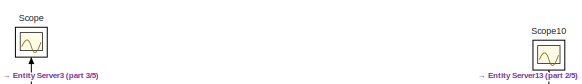
[diagram: TRAIN MÖRBY (NORTH) - part 1/5, top right region]
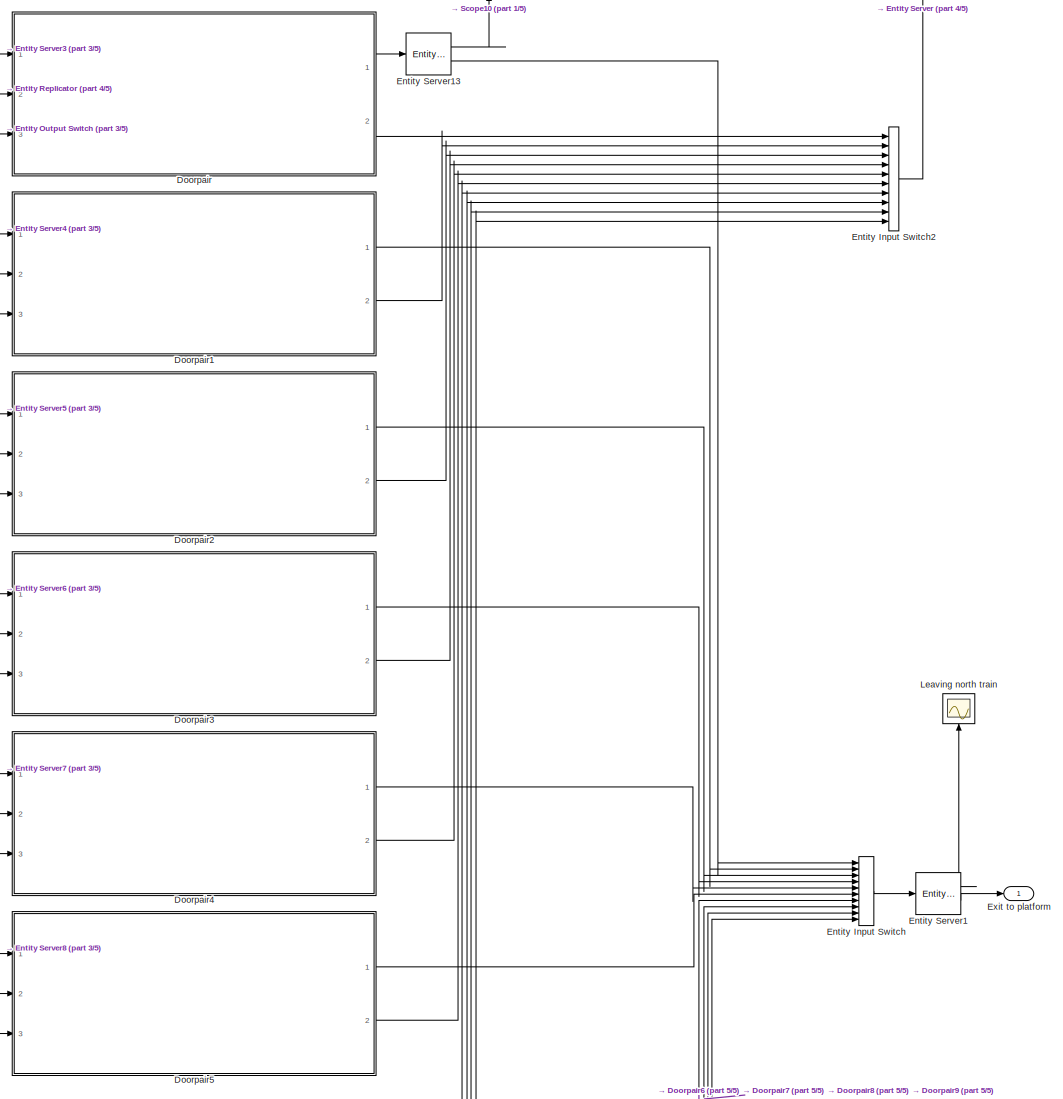
[diagram: TRAIN MÖRBY (NORTH) - part 2/5, middle right region]
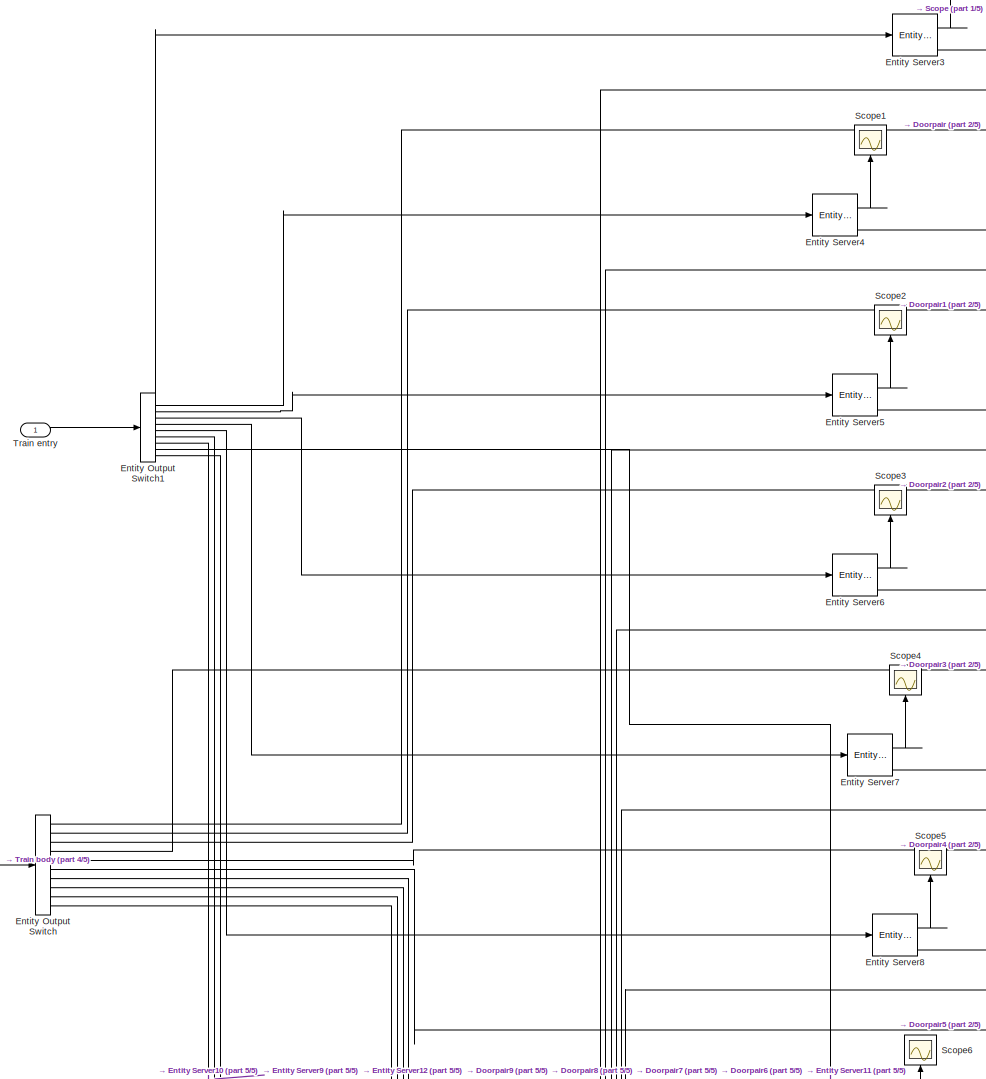
[diagram: TRAIN MÖRBY (NORTH) - part 3/5, central region]
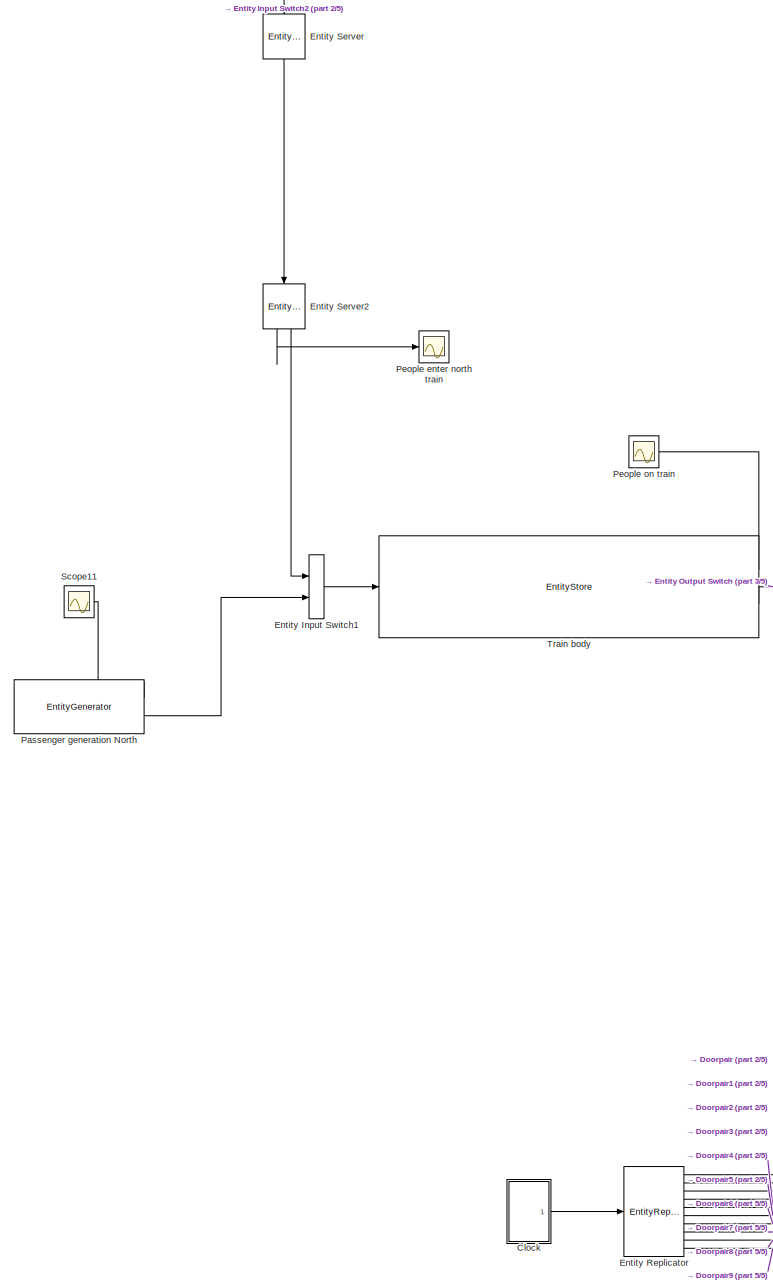
[diagram: TRAIN MÖRBY (NORTH) - part 4/5, middle left region]
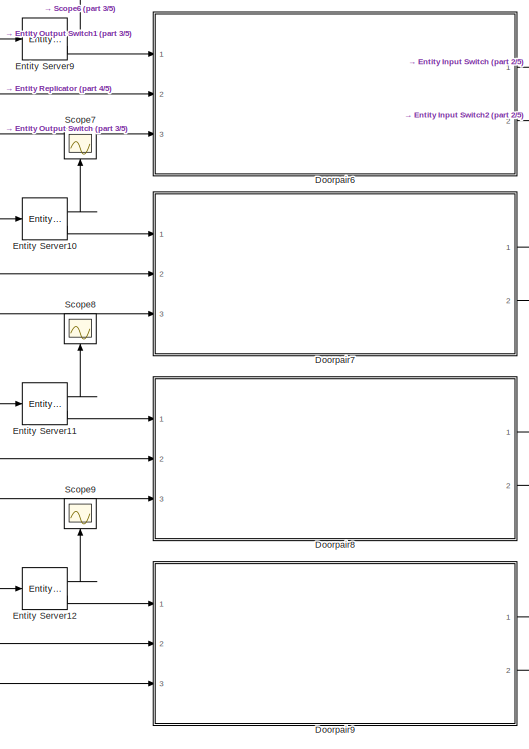
[diagram: TRAIN MÖRBY (NORTH) - part 5/5, bottom right region]
BLOCK [SubSystem] TRAIN MÖRBY (NORTH)
  Ports = [1, 1]
  RequestExecContextInheritance = off
BLOCK [SubSystem] TRAIN MÖRBY (NORTH)/Clock 
  Ports = [0, 1]
  RequestExecContextInheritance = off
BLOCK [EntityInputSwitch] TRAIN MÖRBY (NORTH)/Clock /Entity Input Switch1
  InputPortMap = u1,u2
  InputPortMessageModes = m,m
  OutputPortMap = o0
  OutputPortMessageModes = m
  Ports = [2, 1]
BLOCK [EntityGenerator] TRAIN MÖRBY (NORTH)/Clock /OFF
  AttributeInitialValue = 0
  AttributeName = entity
  EntityTypeName = Entity
  GenerateEntityAtSimulationStart = off
  IntergenerationTimeAction = time_closed = 300;\ntime_open = 20;\ndt = time_closed + time_open;
  OutputPortMap = o3
  OutputPortMessageModes = m
  Period = 5*60
  Ports = [0, 1]
  TimeSource = MATLAB action
BLOCK [EntityGenerator] TRAIN MÖRBY (NORTH)/Clock /ON
  AttributeName = entity
  DataInitialValue = 1
  EntityTypeName = Entity
  GenerateEntityAtSimulationStart = off
  IntergenerationTimeAction = % First train arrives after train_period-1 minutes\n % Door is open for 1 minute and then next train arrives\n % after train_period-1 minutes. This goes on\n \ntime_closed = 300;\ntime_open = 20;\npersistent first\nif isempty(first)\n    first = true;\n    dt = time_closed; \nelse\n    dt = time_closed + time_open;\nend
  OutputPortMap = o3
  OutputPortMessageModes = m
  Period = 5
  Ports = [0, 1]
  TimeSource = MATLAB action
BLOCK [Outport] TRAIN MÖRBY (NORTH)/Clock /Out1
  IconDisplay = Port number
BLOCK [SubSystem] TRAIN MÖRBY (NORTH)/Doorpair
  Ports = [3, 2]
  RequestExecContextInheritance = off
BLOCK [Sum] TRAIN MÖRBY (NORTH)/Doorpair/Add
  InputSameDT = off
  OutDataTypeStr = Inherit: Inherit via internal rule
  Ports = [2, 1]
  SaturateOnIntegerOverflow = off
BLOCK [Inport] TRAIN MÖRBY (NORTH)/Doorpair/Clock in
  IconDisplay = Port number
  Port = 2
BLOCK [EntityServer] TRAIN MÖRBY (NORTH)/Doorpair/Data inverter
  Capacity = inf
  EntryAction = entity = 1 - entity;
  InputPortMap = u2
  InputPortMessageModes = m
  OutputPortMap = o9
  OutputPortMessageModes = m
  Ports = [1, 1]
  ServiceTimeValue = 0
BLOCK [Inport] TRAIN MÖRBY (NORTH)/Doorpair/Enter train
  IconDisplay = Port number
BLOCK [Outport] TRAIN MÖRBY (NORTH)/Doorpair/Entered train
  IconDisplay = Port number
  Port = 2
BLOCK [EntityGate] TRAIN MÖRBY (NORTH)/Doorpair/Entity Gate
  InputPortMap = u0,u1
  InputPortMessageModes = m,m
  OutputPortMap = o0
  OutputPortMessageModes = m
  Ports = [2, 1]
BLOCK [EntityGate] TRAIN MÖRBY (NORTH)/Doorpair/Entity Gate1
  InputPortMap = u0,u1
  InputPortMessageModes = m,m
  OutputPortMap = o0
  OutputPortMessageModes = m
  Ports = [2, 1]
BLOCK [EntityGate] TRAIN MÖRBY (NORTH)/Doorpair/Entity Gate2
  InputPortMap = u0,u1
  InputPortMessageModes = m,m
  OutputPortMap = o0
  OutputPortMessageModes = m
  Ports = [2, 1]
BLOCK [EntityGate] TRAIN MÖRBY (NORTH)/Doorpair/Entity Gate3
  InputPortMap = u0,u1
  InputPortMessageModes = m,m
  OutputPortMap = o0
  OutputPortMessageModes = m
  Ports = [2, 1]
BLOCK [EntityOutputSwitch] TRAIN MÖRBY (NORTH)/Doorpair/Entity Output Switch
  InputPortMap = u1
  InputPortMessageModes = m
  NumberOutputPorts = 3
  OutputPortMap = o0,o1,o2
  OutputPortMessageModes = m,m,m
  Ports = [1, 3]
  SwitchAttributeName = Destination
  SwitchingCriterion = From attribute
BLOCK [EntityReplicator] TRAIN MÖRBY (NORTH)/Doorpair/Entity Replicator
  HoldOriginalEntityUntilAllReplicasDepart = on
  InputPortMap = u0
  InputPortMessageModes = m
  NumberReplicas = 2
  OutputPortMap = o0,o1,o2
  OutputPortMessageModes = m,m,m
  Ports = [1, 3]
BLOCK [Outport] TRAIN MÖRBY (NORTH)/Doorpair/Exit to platform
  IconDisplay = Port number
BLOCK [Inport] TRAIN MÖRBY (NORTH)/Doorpair/Exit train
  IconDisplay = Port number
  Port = 3
BLOCK [SubSystem] TRAIN MÖRBY (NORTH)/Doorpair/Gate opener (if empty, open)
  Ports = [1, 1]
  RequestExecContextInheritance = off
BLOCK [Sum] TRAIN MÖRBY (NORTH)/Doorpair/Gate opener (if empty, open)/Add
  InputSameDT = off
  OutDataTypeStr = Inherit: Inherit via internal rule
  Ports = [2, 1]
  SaturateOnIntegerOverflow = off
BLOCK [Reference] TRAIN MÖRBY (NORTH)/Doorpair/Gate opener (if empty, open)/Compare To Zero  REF=simulink/Logic and Bit
Operations/Compare
To Zero
  Ports = [1, 1]
  SourceBlock = simulink/Logic and Bit\nOperations/Compare\nTo Zero
  SourceProductBaseCode = SL
  SourceProductName = Simulink
  SourceType = Compare To Zero
BLOCK [Constant] TRAIN MÖRBY (NORTH)/Doorpair/Gate opener (if empty, open)/Constant
BLOCK [EntityGenerator] TRAIN MÖRBY (NORTH)/Doorpair/Gate opener (if empty, open)/Entity Generator1
  AttributeName = entity
  DataInitialValue = 1
  EntityTypeName = asd
  OutputPortMap = o3
  OutputPortMessageModes = m
  Period = 0.1
  Ports = [0, 1]
BLOCK [EntityGenerator] TRAIN MÖRBY (NORTH)/Doorpair/Gate opener (if empty, open)/Entity Generator2
  AttributeInitialValue = 0
  AttributeName = entity
  EntityTypeName = Entity
  OutputPortMap = o3
  OutputPortMessageModes = m
  Period = 0.1
  Ports = [0, 1]
BLOCK [EntityInputSwitch] TRAIN MÖRBY (NORTH)/Doorpair/Gate opener (if empty, open)/Entity Input Switch2
  ActivePortSelection = Switch
  InputPortMap = u0,u1,u2
  InputPortMessageModes = m,m,m
  OutputPortMap = o0
  OutputPortMessageModes = m
  Ports = [3, 1]
  SwitchingCriterion = From control port
BLOCK [Inport] TRAIN MÖRBY (NORTH)/Doorpair/Gate opener (if empty, open)/In1
  IconDisplay = Port number
BLOCK [MessageSend] TRAIN MÖRBY (NORTH)/Doorpair/Gate opener (if empty, open)/Message Send
  InputPortMap = u1
  OutputPortMessageModes = m
  Ports = [1, 1]
BLOCK [Outport] TRAIN MÖRBY (NORTH)/Doorpair/Gate opener (if empty, open)/Out1
  IconDisplay = Port number
BLOCK [EntityQueue] TRAIN MÖRBY (NORTH)/Doorpair/IF(QUEUE EMPTY) THEN BOARD TRAIN
  InputPortMap = u0
  InputPortMessageModes = m
  NumberEntitiesInBlock = on
  OutputPortMap = o1,o5
  OutputPortMessageModes = n,m
  Ports = [1, 2]
BLOCK [Scope] TRAIN MÖRBY (NORTH)/Doorpair/Scope
  Floating = off
  NumInputPorts = 1
  Ports = [1]
  ScopeSpecificationString = Simulink.scopes.TimeScopeBlockCfg('CurrentConfiguration', extmgr.ConfigurationSet(extmgr.Configuration('Core','General UI',true),extmgr.Configuration('Core','Source UI',true),extmgr.Configuration('Sources','WiredSimulink',true,'DataLoggingVariableName','ScopeData20'),extmgr.Configuration('Visuals','Time Domain',true,'SerializedDisplays',{struct('MinYLimReal','0.5','MaxYLimReal','5.5','YLabelReal',...<+1447ch>
BLOCK [Terminator] TRAIN MÖRBY (NORTH)/Doorpair/Terminator
BLOCK [EntityServer] TRAIN MÖRBY (NORTH)/Doorpair/Time to enter train
  Capacity = 4
  InputPortMap = u2
  InputPortMessageModes = m
  NumberEntitiesDeparted = on
  OutputPortMap = o0,o9
  OutputPortMessageModes = n,m
  Ports = [1, 2]
  ServiceTimeAction = % Time to enter train should depend on how\n% many people are leaving / staying on the train\ndt = 1;
  ServiceTimeValue = 2
BLOCK [EntityServer] TRAIN MÖRBY (NORTH)/Doorpair/Time to exit through door
  Capacity = 4
  InputPortMap = u2
  InputPortMessageModes = m
  NumberEntitiesInBlock = on
  OutputPortMap = o1,o9
  OutputPortMessageModes = n,m
  Ports = [1, 2]
  ServiceTimeValue = 2
BLOCK [Terminator] TRAIN MÖRBY (NORTH)/Doorpair/Travel away with train
BLOCK [SubSystem] TRAIN MÖRBY (NORTH)/Doorpair1
  Ports = [3, 2]
  RequestExecContextInheritance = off
BLOCK [Sum] TRAIN MÖRBY (NORTH)/Doorpair1/Add
  InputSameDT = off
  OutDataTypeStr = Inherit: Inherit via internal rule
  Ports = [2, 1]
  SaturateOnIntegerOverflow = off
BLOCK [Inport] TRAIN MÖRBY (NORTH)/Doorpair1/Clock in
  IconDisplay = Port number
  Port = 2
BLOCK [EntityServer] TRAIN MÖRBY (NORTH)/Doorpair1/Data inverter
  Capacity = inf
  EntryAction = entity = 1 - entity;
  InputPortMap = u2
  InputPortMessageModes = m
  OutputPortMap = o9
  OutputPortMessageModes = m
  Ports = [1, 1]
  ServiceTimeValue = 0
BLOCK [Inport] TRAIN MÖRBY (NORTH)/Doorpair1/Enter train
  IconDisplay = Port number
BLOCK [Outport] TRAIN MÖRBY (NORTH)/Doorpair1/Entered train
  IconDisplay = Port number
  Port = 2
BLOCK [EntityGate] TRAIN MÖRBY (NORTH)/Doorpair1/Entity Gate
  InputPortMap = u0,u1
  InputPortMessageModes = m,m
  OutputPortMap = o0
  OutputPortMessageModes = m
  Ports = [2, 1]
BLOCK [EntityGate] TRAIN MÖRBY (NORTH)/Doorpair1/Entity Gate1
  InputPortMap = u0,u1
  InputPortMessageModes = m,m
  OutputPortMap = o0
  OutputPortMessageModes = m
  Ports = [2, 1]
BLOCK [EntityGate] TRAIN MÖRBY (NORTH)/Doorpair1/Entity Gate2
  InputPortMap = u0,u1
  InputPortMessageModes = m,m
  OutputPortMap = o0
  OutputPortMessageModes = m
  Ports = [2, 1]
BLOCK [EntityGate] TRAIN MÖRBY (NORTH)/Doorpair1/Entity Gate3
  InputPortMap = u0,u1
  InputPortMessageModes = m,m
  OutputPortMap = o0
  OutputPortMessageModes = m
  Ports = [2, 1]
BLOCK [EntityOutputSwitch] TRAIN MÖRBY (NORTH)/Doorpair1/Entity Output Switch
  InputPortMap = u1
  InputPortMessageModes = m
  NumberOutputPorts = 3
  OutputPortMap = o0,o1,o2
  OutputPortMessageModes = m,m,m
  Ports = [1, 3]
  SwitchAttributeName = Destination
  SwitchingCriterion = From attribute
BLOCK [EntityReplicator] TRAIN MÖRBY (NORTH)/Doorpair1/Entity Replicator
  HoldOriginalEntityUntilAllReplicasDepart = on
  InputPortMap = u0
  InputPortMessageModes = m
  NumberReplicas = 2
  OutputPortMap = o0,o1,o2
  OutputPortMessageModes = m,m,m
  Ports = [1, 3]
BLOCK [Outport] TRAIN MÖRBY (NORTH)/Doorpair1/Exit to platform
  IconDisplay = Port number
BLOCK [Inport] TRAIN MÖRBY (NORTH)/Doorpair1/Exit train
  IconDisplay = Port number
  Port = 3
BLOCK [SubSystem] TRAIN MÖRBY (NORTH)/Doorpair1/Gate opener (if empty, open)
  Ports = [1, 1]
  RequestExecContextInheritance = off
BLOCK [Sum] TRAIN MÖRBY (NORTH)/Doorpair1/Gate opener (if empty, open)/Add
  InputSameDT = off
  OutDataTypeStr = Inherit: Inherit via internal rule
  Ports = [2, 1]
  SaturateOnIntegerOverflow = off
BLOCK [Reference] TRAIN MÖRBY (NORTH)/Doorpair1/Gate opener (if empty, open)/Compare To Zero  REF=simulink/Logic and Bit
Operations/Compare
To Zero
  Ports = [1, 1]
  SourceBlock = simulink/Logic and Bit\nOperations/Compare\nTo Zero
  SourceProductBaseCode = SL
  SourceProductName = Simulink
  SourceType = Compare To Zero
BLOCK [Constant] TRAIN MÖRBY (NORTH)/Doorpair1/Gate opener (if empty, open)/Constant
BLOCK [EntityGenerator] TRAIN MÖRBY (NORTH)/Doorpair1/Gate opener (if empty, open)/Entity Generator1
  AttributeName = entity
  DataInitialValue = 1
  EntityTypeName = asd
  OutputPortMap = o3
  OutputPortMessageModes = m
  Period = 0.1
  Ports = [0, 1]
BLOCK [EntityGenerator] TRAIN MÖRBY (NORTH)/Doorpair1/Gate opener (if empty, open)/Entity Generator2
  AttributeInitialValue = 0
  AttributeName = entity
  EntityTypeName = Entity
  OutputPortMap = o3
  OutputPortMessageModes = m
  Period = 0.1
  Ports = [0, 1]
BLOCK [EntityInputSwitch] TRAIN MÖRBY (NORTH)/Doorpair1/Gate opener (if empty, open)/Entity Input Switch2
  ActivePortSelection = Switch
  InputPortMap = u0,u1,u2
  InputPortMessageModes = m,m,m
  OutputPortMap = o0
  OutputPortMessageModes = m
  Ports = [3, 1]
  SwitchingCriterion = From control port
BLOCK [Inport] TRAIN MÖRBY (NORTH)/Doorpair1/Gate opener (if empty, open)/In1
  IconDisplay = Port number
BLOCK [MessageSend] TRAIN MÖRBY (NORTH)/Doorpair1/Gate opener (if empty, open)/Message Send
  InputPortMap = u1
  OutputPortMessageModes = m
  Ports = [1, 1]
BLOCK [Outport] TRAIN MÖRBY (NORTH)/Doorpair1/Gate opener (if empty, open)/Out1
  IconDisplay = Port number
BLOCK [EntityQueue] TRAIN MÖRBY (NORTH)/Doorpair1/IF(QUEUE EMPTY) THEN BOARD TRAIN
  InputPortMap = u0
  InputPortMessageModes = m
  NumberEntitiesInBlock = on
  OutputPortMap = o1,o5
  OutputPortMessageModes = n,m
  Ports = [1, 2]
BLOCK [Terminator] TRAIN MÖRBY (NORTH)/Doorpair1/Terminator
BLOCK [EntityServer] TRAIN MÖRBY (NORTH)/Doorpair1/Time to enter train
  Capacity = 4
  InputPortMap = u2
  InputPortMessageModes = m
  OutputPortMap = o9
  OutputPortMessageModes = m
  Ports = [1, 1]
  ServiceTimeAction = % Time to enter train should depend on how\n% many people are leaving / staying on the train\ndt = 1;
  ServiceTimeValue = 2
BLOCK [EntityServer] TRAIN MÖRBY (NORTH)/Doorpair1/Time to exit through door
  Capacity = 4
  InputPortMap = u2
  InputPortMessageModes = m
  NumberEntitiesInBlock = on
  OutputPortMap = o1,o9
  OutputPortMessageModes = n,m
  Ports = [1, 2]
  ServiceTimeValue = 2
BLOCK [Terminator] TRAIN MÖRBY (NORTH)/Doorpair1/Travel away with train
BLOCK [SubSystem] TRAIN MÖRBY (NORTH)/Doorpair2
  Ports = [3, 2]
  RequestExecContextInheritance = off
BLOCK [Sum] TRAIN MÖRBY (NORTH)/Doorpair2/Add
  InputSameDT = off
  OutDataTypeStr = Inherit: Inherit via internal rule
  Ports = [2, 1]
  SaturateOnIntegerOverflow = off
BLOCK [Inport] TRAIN MÖRBY (NORTH)/Doorpair2/Clock in
  IconDisplay = Port number
  Port = 2
BLOCK [EntityServer] TRAIN MÖRBY (NORTH)/Doorpair2/Data inverter
  Capacity = inf
  EntryAction = entity = 1 - entity;
  InputPortMap = u2
  InputPortMessageModes = m
  OutputPortMap = o9
  OutputPortMessageModes = m
  Ports = [1, 1]
  ServiceTimeValue = 0
BLOCK [Inport] TRAIN MÖRBY (NORTH)/Doorpair2/Enter train
  IconDisplay = Port number
BLOCK [Outport] TRAIN MÖRBY (NORTH)/Doorpair2/Entered train
  IconDisplay = Port number
  Port = 2
BLOCK [EntityGate] TRAIN MÖRBY (NORTH)/Doorpair2/Entity Gate
  InputPortMap = u0,u1
  InputPortMessageModes = m,m
  OutputPortMap = o0
  OutputPortMessageModes = m
  Ports = [2, 1]
BLOCK [EntityGate] TRAIN MÖRBY (NORTH)/Doorpair2/Entity Gate1
  InputPortMap = u0,u1
  InputPortMessageModes = m,m
  OutputPortMap = o0
  OutputPortMessageModes = m
  Ports = [2, 1]
BLOCK [EntityGate] TRAIN MÖRBY (NORTH)/Doorpair2/Entity Gate2
  InputPortMap = u0,u1
  InputPortMessageModes = m,m
  OutputPortMap = o0
  OutputPortMessageModes = m
  Ports = [2, 1]
BLOCK [EntityGate] TRAIN MÖRBY (NORTH)/Doorpair2/Entity Gate3
  InputPortMap = u0,u1
  InputPortMessageModes = m,m
  OutputPortMap = o0
  OutputPortMessageModes = m
  Ports = [2, 1]
BLOCK [EntityOutputSwitch] TRAIN MÖRBY (NORTH)/Doorpair2/Entity Output Switch
  InputPortMap = u1
  InputPortMessageModes = m
  NumberOutputPorts = 3
  OutputPortMap = o0,o1,o2
  OutputPortMessageModes = m,m,m
  Ports = [1, 3]
  SwitchAttributeName = Destination
  SwitchingCriterion = From attribute
BLOCK [EntityReplicator] TRAIN MÖRBY (NORTH)/Doorpair2/Entity Replicator
  HoldOriginalEntityUntilAllReplicasDepart = on
  InputPortMap = u0
  InputPortMessageModes = m
  NumberReplicas = 2
  OutputPortMap = o0,o1,o2
  OutputPortMessageModes = m,m,m
  Ports = [1, 3]
BLOCK [Outport] TRAIN MÖRBY (NORTH)/Doorpair2/Exit to platform
  IconDisplay = Port number
BLOCK [Inport] TRAIN MÖRBY (NORTH)/Doorpair2/Exit train
  IconDisplay = Port number
  Port = 3
BLOCK [SubSystem] TRAIN MÖRBY (NORTH)/Doorpair2/Gate opener (if empty, open)
  Ports = [1, 1]
  RequestExecContextInheritance = off
BLOCK [Sum] TRAIN MÖRBY (NORTH)/Doorpair2/Gate opener (if empty, open)/Add
  InputSameDT = off
  OutDataTypeStr = Inherit: Inherit via internal rule
  Ports = [2, 1]
  SaturateOnIntegerOverflow = off
BLOCK [Reference] TRAIN MÖRBY (NORTH)/Doorpair2/Gate opener (if empty, open)/Compare To Zero  REF=simulink/Logic and Bit
Operations/Compare
To Zero
  Ports = [1, 1]
  SourceBlock = simulink/Logic and Bit\nOperations/Compare\nTo Zero
  SourceProductBaseCode = SL
  SourceProductName = Simulink
  SourceType = Compare To Zero
BLOCK [Constant] TRAIN MÖRBY (NORTH)/Doorpair2/Gate opener (if empty, open)/Constant
BLOCK [EntityGenerator] TRAIN MÖRBY (NORTH)/Doorpair2/Gate opener (if empty, open)/Entity Generator1
  AttributeName = entity
  DataInitialValue = 1
  EntityTypeName = asd
  OutputPortMap = o3
  OutputPortMessageModes = m
  Period = 0.1
  Ports = [0, 1]
BLOCK [EntityGenerator] TRAIN MÖRBY (NORTH)/Doorpair2/Gate opener (if empty, open)/Entity Generator2
  AttributeInitialValue = 0
  AttributeName = entity
  EntityTypeName = Entity
  OutputPortMap = o3
  OutputPortMessageModes = m
  Period = 0.1
  Ports = [0, 1]
BLOCK [EntityInputSwitch] TRAIN MÖRBY (NORTH)/Doorpair2/Gate opener (if empty, open)/Entity Input Switch2
  ActivePortSelection = Switch
  InputPortMap = u0,u1,u2
  InputPortMessageModes = m,m,m
  OutputPortMap = o0
  OutputPortMessageModes = m
  Ports = [3, 1]
  SwitchingCriterion = From control port
BLOCK [Inport] TRAIN MÖRBY (NORTH)/Doorpair2/Gate opener (if empty, open)/In1
  IconDisplay = Port number
BLOCK [MessageSend] TRAIN MÖRBY (NORTH)/Doorpair2/Gate opener (if empty, open)/Message Send
  InputPortMap = u1
  OutputPortMessageModes = m
  Ports = [1, 1]
BLOCK [Outport] TRAIN MÖRBY (NORTH)/Doorpair2/Gate opener (if empty, open)/Out1
  IconDisplay = Port number
BLOCK [EntityQueue] TRAIN MÖRBY (NORTH)/Doorpair2/IF(QUEUE EMPTY) THEN BOARD TRAIN
  InputPortMap = u0
  InputPortMessageModes = m
  NumberEntitiesInBlock = on
  OutputPortMap = o1,o5
  OutputPortMessageModes = n,m
  Ports = [1, 2]
BLOCK [Terminator] TRAIN MÖRBY (NORTH)/Doorpair2/Terminator
BLOCK [EntityServer] TRAIN MÖRBY (NORTH)/Doorpair2/Time to enter train
  Capacity = 4
  InputPortMap = u2
  InputPortMessageModes = m
  OutputPortMap = o9
  OutputPortMessageModes = m
  Ports = [1, 1]
  ServiceTimeAction = % Time to enter train should depend on how\n% many people are leaving / staying on the train\ndt = 1;
  ServiceTimeValue = 2
BLOCK [EntityServer] TRAIN MÖRBY (NORTH)/Doorpair2/Time to exit through door
  Capacity = 4
  InputPortMap = u2
  InputPortMessageModes = m
  NumberEntitiesInBlock = on
  OutputPortMap = o1,o9
  OutputPortMessageModes = n,m
  Ports = [1, 2]
  ServiceTimeValue = 2
BLOCK [Terminator] TRAIN MÖRBY (NORTH)/Doorpair2/Travel away with train
BLOCK [SubSystem] TRAIN MÖRBY (NORTH)/Doorpair3
  Ports = [3, 2]
  RequestExecContextInheritance = off
BLOCK [Sum] TRAIN MÖRBY (NORTH)/Doorpair3/Add
  InputSameDT = off
  OutDataTypeStr = Inherit: Inherit via internal rule
  Ports = [2, 1]
  SaturateOnIntegerOverflow = off
BLOCK [Inport] TRAIN MÖRBY (NORTH)/Doorpair3/Clock in
  IconDisplay = Port number
  Port = 2
BLOCK [EntityServer] TRAIN MÖRBY (NORTH)/Doorpair3/Data inverter
  Capacity = inf
  EntryAction = entity = 1 - entity;
  InputPortMap = u2
  InputPortMessageModes = m
  OutputPortMap = o9
  OutputPortMessageModes = m
  Ports = [1, 1]
  ServiceTimeValue = 0
BLOCK [Inport] TRAIN MÖRBY (NORTH)/Doorpair3/Enter train
  IconDisplay = Port number
BLOCK [Outport] TRAIN MÖRBY (NORTH)/Doorpair3/Entered train
  IconDisplay = Port number
  Port = 2
BLOCK [EntityGate] TRAIN MÖRBY (NORTH)/Doorpair3/Entity Gate
  InputPortMap = u0,u1
  InputPortMessageModes = m,m
  OutputPortMap = o0
  OutputPortMessageModes = m
  Ports = [2, 1]
BLOCK [EntityGate] TRAIN MÖRBY (NORTH)/Doorpair3/Entity Gate1
  InputPortMap = u0,u1
  InputPortMessageModes = m,m
  OutputPortMap = o0
  OutputPortMessageModes = m
  Ports = [2, 1]
BLOCK [EntityGate] TRAIN MÖRBY (NORTH)/Doorpair3/Entity Gate2
  InputPortMap = u0,u1
  InputPortMessageModes = m,m
  OutputPortMap = o0
  OutputPortMessageModes = m
  Ports = [2, 1]
BLOCK [EntityGate] TRAIN MÖRBY (NORTH)/Doorpair3/Entity Gate3
  InputPortMap = u0,u1
  InputPortMessageModes = m,m
  OutputPortMap = o0
  OutputPortMessageModes = m
  Ports = [2, 1]
BLOCK [EntityOutputSwitch] TRAIN MÖRBY (NORTH)/Doorpair3/Entity Output Switch
  InputPortMap = u1
  InputPortMessageModes = m
  NumberOutputPorts = 3
  OutputPortMap = o0,o1,o2
  OutputPortMessageModes = m,m,m
  Ports = [1, 3]
  SwitchAttributeName = Destination
  SwitchingCriterion = From attribute
BLOCK [EntityReplicator] TRAIN MÖRBY (NORTH)/Doorpair3/Entity Replicator
  HoldOriginalEntityUntilAllReplicasDepart = on
  InputPortMap = u0
  InputPortMessageModes = m
  NumberReplicas = 2
  OutputPortMap = o0,o1,o2
  OutputPortMessageModes = m,m,m
  Ports = [1, 3]
BLOCK [Outport] TRAIN MÖRBY (NORTH)/Doorpair3/Exit to platform
  IconDisplay = Port number
BLOCK [Inport] TRAIN MÖRBY (NORTH)/Doorpair3/Exit train
  IconDisplay = Port number
  Port = 3
BLOCK [SubSystem] TRAIN MÖRBY (NORTH)/Doorpair3/Gate opener (if empty, open)
  Ports = [1, 1]
  RequestExecContextInheritance = off
BLOCK [Sum] TRAIN MÖRBY (NORTH)/Doorpair3/Gate opener (if empty, open)/Add
  InputSameDT = off
  OutDataTypeStr = Inherit: Inherit via internal rule
  Ports = [2, 1]
  SaturateOnIntegerOverflow = off
BLOCK [Reference] TRAIN MÖRBY (NORTH)/Doorpair3/Gate opener (if empty, open)/Compare To Zero  REF=simulink/Logic and Bit
Operations/Compare
To Zero
  Ports = [1, 1]
  SourceBlock = simulink/Logic and Bit\nOperations/Compare\nTo Zero
  SourceProductBaseCode = SL
  SourceProductName = Simulink
  SourceType = Compare To Zero
BLOCK [Constant] TRAIN MÖRBY (NORTH)/Doorpair3/Gate opener (if empty, open)/Constant
BLOCK [EntityGenerator] TRAIN MÖRBY (NORTH)/Doorpair3/Gate opener (if empty, open)/Entity Generator1
  AttributeName = entity
  DataInitialValue = 1
  EntityTypeName = asd
  OutputPortMap = o3
  OutputPortMessageModes = m
  Period = 0.1
  Ports = [0, 1]
BLOCK [EntityGenerator] TRAIN MÖRBY (NORTH)/Doorpair3/Gate opener (if empty, open)/Entity Generator2
  AttributeInitialValue = 0
  AttributeName = entity
  EntityTypeName = Entity
  OutputPortMap = o3
  OutputPortMessageModes = m
  Period = 0.1
  Ports = [0, 1]
BLOCK [EntityInputSwitch] TRAIN MÖRBY (NORTH)/Doorpair3/Gate opener (if empty, open)/Entity Input Switch2
  ActivePortSelection = Switch
  InputPortMap = u0,u1,u2
  InputPortMessageModes = m,m,m
  OutputPortMap = o0
  OutputPortMessageModes = m
  Ports = [3, 1]
  SwitchingCriterion = From control port
BLOCK [Inport] TRAIN MÖRBY (NORTH)/Doorpair3/Gate opener (if empty, open)/In1
  IconDisplay = Port number
BLOCK [MessageSend] TRAIN MÖRBY (NORTH)/Doorpair3/Gate opener (if empty, open)/Message Send
  InputPortMap = u1
  OutputPortMessageModes = m
  Ports = [1, 1]
BLOCK [Outport] TRAIN MÖRBY (NORTH)/Doorpair3/Gate opener (if empty, open)/Out1
  IconDisplay = Port number
BLOCK [EntityQueue] TRAIN MÖRBY (NORTH)/Doorpair3/IF(QUEUE EMPTY) THEN BOARD TRAIN
  InputPortMap = u0
  InputPortMessageModes = m
  NumberEntitiesInBlock = on
  OutputPortMap = o1,o5
  OutputPortMessageModes = n,m
  Ports = [1, 2]
BLOCK [Terminator] TRAIN MÖRBY (NORTH)/Doorpair3/Terminator
BLOCK [EntityServer] TRAIN MÖRBY (NORTH)/Doorpair3/Time to enter train
  Capacity = 4
  InputPortMap = u2
  InputPortMessageModes = m
  OutputPortMap = o9
  OutputPortMessageModes = m
  Ports = [1, 1]
  ServiceTimeAction = % Time to enter train should depend on how\n% many people are leaving / staying on the train\ndt = 1;
  ServiceTimeValue = 2
BLOCK [EntityServer] TRAIN MÖRBY (NORTH)/Doorpair3/Time to exit through door
  Capacity = 4
  InputPortMap = u2
  InputPortMessageModes = m
  NumberEntitiesInBlock = on
  OutputPortMap = o1,o9
  OutputPortMessageModes = n,m
  Ports = [1, 2]
  ServiceTimeValue = 2
BLOCK [Terminator] TRAIN MÖRBY (NORTH)/Doorpair3/Travel away with train
BLOCK [SubSystem] TRAIN MÖRBY (NORTH)/Doorpair4
  Ports = [3, 2]
  RequestExecContextInheritance = off
BLOCK [Sum] TRAIN MÖRBY (NORTH)/Doorpair4/Add
  InputSameDT = off
  OutDataTypeStr = Inherit: Inherit via internal rule
  Ports = [2, 1]
  SaturateOnIntegerOverflow = off
BLOCK [Inport] TRAIN MÖRBY (NORTH)/Doorpair4/Clock in
  IconDisplay = Port number
  Port = 2
BLOCK [EntityServer] TRAIN MÖRBY (NORTH)/Doorpair4/Data inverter
  Capacity = inf
  EntryAction = entity = 1 - entity;
  InputPortMap = u2
  InputPortMessageModes = m
  OutputPortMap = o9
  OutputPortMessageModes = m
  Ports = [1, 1]
  ServiceTimeValue = 0
BLOCK [Inport] TRAIN MÖRBY (NORTH)/Doorpair4/Enter train
  IconDisplay = Port number
BLOCK [Outport] TRAIN MÖRBY (NORTH)/Doorpair4/Entered train
  IconDisplay = Port number
  Port = 2
BLOCK [EntityGate] TRAIN MÖRBY (NORTH)/Doorpair4/Entity Gate
  InputPortMap = u0,u1
  InputPortMessageModes = m,m
  OutputPortMap = o0
  OutputPortMessageModes = m
  Ports = [2, 1]
BLOCK [EntityGate] TRAIN MÖRBY (NORTH)/Doorpair4/Entity Gate1
  InputPortMap = u0,u1
  InputPortMessageModes = m,m
  OutputPortMap = o0
  OutputPortMessageModes = m
  Ports = [2, 1]
BLOCK [EntityGate] TRAIN MÖRBY (NORTH)/Doorpair4/Entity Gate2
  InputPortMap = u0,u1
  InputPortMessageModes = m,m
  OutputPortMap = o0
  OutputPortMessageModes = m
  Ports = [2, 1]
BLOCK [EntityGate] TRAIN MÖRBY (NORTH)/Doorpair4/Entity Gate3
  InputPortMap = u0,u1
  InputPortMessageModes = m,m
  OutputPortMap = o0
  OutputPortMessageModes = m
  Ports = [2, 1]
BLOCK [EntityOutputSwitch] TRAIN MÖRBY (NORTH)/Doorpair4/Entity Output Switch
  InputPortMap = u1
  InputPortMessageModes = m
  NumberOutputPorts = 3
  OutputPortMap = o0,o1,o2
  OutputPortMessageModes = m,m,m
  Ports = [1, 3]
  SwitchAttributeName = Destination
  SwitchingCriterion = From attribute
BLOCK [EntityReplicator] TRAIN MÖRBY (NORTH)/Doorpair4/Entity Replicator
  HoldOriginalEntityUntilAllReplicasDepart = on
  InputPortMap = u0
  InputPortMessageModes = m
  NumberReplicas = 2
  OutputPortMap = o0,o1,o2
  OutputPortMessageModes = m,m,m
  Ports = [1, 3]
BLOCK [Outport] TRAIN MÖRBY (NORTH)/Doorpair4/Exit to platform
  IconDisplay = Port number
BLOCK [Inport] TRAIN MÖRBY (NORTH)/Doorpair4/Exit train
  IconDisplay = Port number
  Port = 3
BLOCK [SubSystem] TRAIN MÖRBY (NORTH)/Doorpair4/Gate opener (if empty, open)
  Ports = [1, 1]
  RequestExecContextInheritance = off
BLOCK [Sum] TRAIN MÖRBY (NORTH)/Doorpair4/Gate opener (if empty, open)/Add
  InputSameDT = off
  OutDataTypeStr = Inherit: Inherit via internal rule
  Ports = [2, 1]
  SaturateOnIntegerOverflow = off
BLOCK [Reference] TRAIN MÖRBY (NORTH)/Doorpair4/Gate opener (if empty, open)/Compare To Zero  REF=simulink/Logic and Bit
Operations/Compare
To Zero
  Ports = [1, 1]
  SourceBlock = simulink/Logic and Bit\nOperations/Compare\nTo Zero
  SourceProductBaseCode = SL
  SourceProductName = Simulink
  SourceType = Compare To Zero
BLOCK [Constant] TRAIN MÖRBY (NORTH)/Doorpair4/Gate opener (if empty, open)/Constant
BLOCK [EntityGenerator] TRAIN MÖRBY (NORTH)/Doorpair4/Gate opener (if empty, open)/Entity Generator1
  AttributeName = entity
  DataInitialValue = 1
  EntityTypeName = asd
  OutputPortMap = o3
  OutputPortMessageModes = m
  Period = 0.1
  Ports = [0, 1]
BLOCK [EntityGenerator] TRAIN MÖRBY (NORTH)/Doorpair4/Gate opener (if empty, open)/Entity Generator2
  AttributeInitialValue = 0
  AttributeName = entity
  EntityTypeName = Entity
  OutputPortMap = o3
  OutputPortMessageModes = m
  Period = 0.1
  Ports = [0, 1]
BLOCK [EntityInputSwitch] TRAIN MÖRBY (NORTH)/Doorpair4/Gate opener (if empty, open)/Entity Input Switch2
  ActivePortSelection = Switch
  InputPortMap = u0,u1,u2
  InputPortMessageModes = m,m,m
  OutputPortMap = o0
  OutputPortMessageModes = m
  Ports = [3, 1]
  SwitchingCriterion = From control port
BLOCK [Inport] TRAIN MÖRBY (NORTH)/Doorpair4/Gate opener (if empty, open)/In1
  IconDisplay = Port number
BLOCK [MessageSend] TRAIN MÖRBY (NORTH)/Doorpair4/Gate opener (if empty, open)/Message Send
  InputPortMap = u1
  OutputPortMessageModes = m
  Ports = [1, 1]
BLOCK [Outport] TRAIN MÖRBY (NORTH)/Doorpair4/Gate opener (if empty, open)/Out1
  IconDisplay = Port number
BLOCK [EntityQueue] TRAIN MÖRBY (NORTH)/Doorpair4/IF(QUEUE EMPTY) THEN BOARD TRAIN
  InputPortMap = u0
  InputPortMessageModes = m
  NumberEntitiesInBlock = on
  OutputPortMap = o1,o5
  OutputPortMessageModes = n,m
  Ports = [1, 2]
BLOCK [Terminator] TRAIN MÖRBY (NORTH)/Doorpair4/Terminator
BLOCK [EntityServer] TRAIN MÖRBY (NORTH)/Doorpair4/Time to enter train
  Capacity = 4
  InputPortMap = u2
  InputPortMessageModes = m
  OutputPortMap = o9
  OutputPortMessageModes = m
  Ports = [1, 1]
  ServiceTimeAction = % Time to enter train should depend on how\n% many people are leaving / staying on the train\ndt = 1;
  ServiceTimeValue = 2
BLOCK [EntityServer] TRAIN MÖRBY (NORTH)/Doorpair4/Time to exit through door
  Capacity = 4
  InputPortMap = u2
  InputPortMessageModes = m
  NumberEntitiesInBlock = on
  OutputPortMap = o1,o9
  OutputPortMessageModes = n,m
  Ports = [1, 2]
  ServiceTimeValue = 2
BLOCK [Terminator] TRAIN MÖRBY (NORTH)/Doorpair4/Travel away with train
BLOCK [SubSystem] TRAIN MÖRBY (NORTH)/Doorpair5
  Ports = [3, 2]
  RequestExecContextInheritance = off
BLOCK [Sum] TRAIN MÖRBY (NORTH)/Doorpair5/Add
  InputSameDT = off
  OutDataTypeStr = Inherit: Inherit via internal rule
  Ports = [2, 1]
  SaturateOnIntegerOverflow = off
BLOCK [Inport] TRAIN MÖRBY (NORTH)/Doorpair5/Clock in
  IconDisplay = Port number
  Port = 2
BLOCK [EntityServer] TRAIN MÖRBY (NORTH)/Doorpair5/Data inverter
  Capacity = inf
  EntryAction = entity = 1 - entity;
  InputPortMap = u2
  InputPortMessageModes = m
  OutputPortMap = o9
  OutputPortMessageModes = m
  Ports = [1, 1]
  ServiceTimeValue = 0
BLOCK [Inport] TRAIN MÖRBY (NORTH)/Doorpair5/Enter train
  IconDisplay = Port number
BLOCK [Outport] TRAIN MÖRBY (NORTH)/Doorpair5/Entered train
  IconDisplay = Port number
  Port = 2
BLOCK [EntityGate] TRAIN MÖRBY (NORTH)/Doorpair5/Entity Gate
  InputPortMap = u0,u1
  InputPortMessageModes = m,m
  OutputPortMap = o0
  OutputPortMessageModes = m
  Ports = [2, 1]
BLOCK [EntityGate] TRAIN MÖRBY (NORTH)/Doorpair5/Entity Gate1
  InputPortMap = u0,u1
  InputPortMessageModes = m,m
  OutputPortMap = o0
  OutputPortMessageModes = m
  Ports = [2, 1]
BLOCK [EntityGate] TRAIN MÖRBY (NORTH)/Doorpair5/Entity Gate2
  InputPortMap = u0,u1
  InputPortMessageModes = m,m
  OutputPortMap = o0
  OutputPortMessageModes = m
  Ports = [2, 1]
BLOCK [EntityGate] TRAIN MÖRBY (NORTH)/Doorpair5/Entity Gate3
  InputPortMap = u0,u1
  InputPortMessageModes = m,m
  OutputPortMap = o0
  OutputPortMessageModes = m
  Ports = [2, 1]
BLOCK [EntityOutputSwitch] TRAIN MÖRBY (NORTH)/Doorpair5/Entity Output Switch
  InputPortMap = u1
  InputPortMessageModes = m
  NumberOutputPorts = 3
  OutputPortMap = o0,o1,o2
  OutputPortMessageModes = m,m,m
  Ports = [1, 3]
  SwitchAttributeName = Destination
  SwitchingCriterion = From attribute
BLOCK [EntityReplicator] TRAIN MÖRBY (NORTH)/Doorpair5/Entity Replicator
  HoldOriginalEntityUntilAllReplicasDepart = on
  InputPortMap = u0
  InputPortMessageModes = m
  NumberReplicas = 2
  OutputPortMap = o0,o1,o2
  OutputPortMessageModes = m,m,m
  Ports = [1, 3]
BLOCK [Outport] TRAIN MÖRBY (NORTH)/Doorpair5/Exit to platform
  IconDisplay = Port number
BLOCK [Inport] TRAIN MÖRBY (NORTH)/Doorpair5/Exit train
  IconDisplay = Port number
  Port = 3
BLOCK [SubSystem] TRAIN MÖRBY (NORTH)/Doorpair5/Gate opener (if empty, open)
  Ports = [1, 1]
  RequestExecContextInheritance = off
BLOCK [Sum] TRAIN MÖRBY (NORTH)/Doorpair5/Gate opener (if empty, open)/Add
  InputSameDT = off
  OutDataTypeStr = Inherit: Inherit via internal rule
  Ports = [2, 1]
  SaturateOnIntegerOverflow = off
BLOCK [Reference] TRAIN MÖRBY (NORTH)/Doorpair5/Gate opener (if empty, open)/Compare To Zero  REF=simulink/Logic and Bit
Operations/Compare
To Zero
  Ports = [1, 1]
  SourceBlock = simulink/Logic and Bit\nOperations/Compare\nTo Zero
  SourceProductBaseCode = SL
  SourceProductName = Simulink
  SourceType = Compare To Zero
BLOCK [Constant] TRAIN MÖRBY (NORTH)/Doorpair5/Gate opener (if empty, open)/Constant
BLOCK [EntityGenerator] TRAIN MÖRBY (NORTH)/Doorpair5/Gate opener (if empty, open)/Entity Generator1
  AttributeName = entity
  DataInitialValue = 1
  EntityTypeName = asd
  OutputPortMap = o3
  OutputPortMessageModes = m
  Period = 0.1
  Ports = [0, 1]
BLOCK [EntityGenerator] TRAIN MÖRBY (NORTH)/Doorpair5/Gate opener (if empty, open)/Entity Generator2
  AttributeInitialValue = 0
  AttributeName = entity
  EntityTypeName = Entity
  OutputPortMap = o3
  OutputPortMessageModes = m
  Period = 0.1
  Ports = [0, 1]
BLOCK [EntityInputSwitch] TRAIN MÖRBY (NORTH)/Doorpair5/Gate opener (if empty, open)/Entity Input Switch2
  ActivePortSelection = Switch
  InputPortMap = u0,u1,u2
  InputPortMessageModes = m,m,m
  OutputPortMap = o0
  OutputPortMessageModes = m
  Ports = [3, 1]
  SwitchingCriterion = From control port
BLOCK [Inport] TRAIN MÖRBY (NORTH)/Doorpair5/Gate opener (if empty, open)/In1
  IconDisplay = Port number
BLOCK [MessageSend] TRAIN MÖRBY (NORTH)/Doorpair5/Gate opener (if empty, open)/Message Send
  InputPortMap = u1
  OutputPortMessageModes = m
  Ports = [1, 1]
BLOCK [Outport] TRAIN MÖRBY (NORTH)/Doorpair5/Gate opener (if empty, open)/Out1
  IconDisplay = Port number
BLOCK [EntityQueue] TRAIN MÖRBY (NORTH)/Doorpair5/IF(QUEUE EMPTY) THEN BOARD TRAIN
  InputPortMap = u0
  InputPortMessageModes = m
  NumberEntitiesInBlock = on
  OutputPortMap = o1,o5
  OutputPortMessageModes = n,m
  Ports = [1, 2]
BLOCK [Terminator] TRAIN MÖRBY (NORTH)/Doorpair5/Terminator
BLOCK [EntityServer] TRAIN MÖRBY (NORTH)/Doorpair5/Time to enter train
  Capacity = 4
  InputPortMap = u2
  InputPortMessageModes = m
  OutputPortMap = o9
  OutputPortMessageModes = m
  Ports = [1, 1]
  ServiceTimeAction = % Time to enter train should depend on how\n% many people are leaving / staying on the train\ndt = 1;
  ServiceTimeValue = 2
BLOCK [EntityServer] TRAIN MÖRBY (NORTH)/Doorpair5/Time to exit through door
  Capacity = 4
  InputPortMap = u2
  InputPortMessageModes = m
  NumberEntitiesInBlock = on
  OutputPortMap = o1,o9
  OutputPortMessageModes = n,m
  Ports = [1, 2]
  ServiceTimeValue = 2
BLOCK [Terminator] TRAIN MÖRBY (NORTH)/Doorpair5/Travel away with train
BLOCK [SubSystem] TRAIN MÖRBY (NORTH)/Doorpair6
  Ports = [3, 2]
  RequestExecContextInheritance = off
BLOCK [Sum] TRAIN MÖRBY (NORTH)/Doorpair6/Add
  InputSameDT = off
  OutDataTypeStr = Inherit: Inherit via internal rule
  Ports = [2, 1]
  SaturateOnIntegerOverflow = off
BLOCK [Inport] TRAIN MÖRBY (NORTH)/Doorpair6/Clock in
  IconDisplay = Port number
  Port = 2
BLOCK [EntityServer] TRAIN MÖRBY (NORTH)/Doorpair6/Data inverter
  Capacity = inf
  EntryAction = entity = 1 - entity;
  InputPortMap = u2
  InputPortMessageModes = m
  OutputPortMap = o9
  OutputPortMessageModes = m
  Ports = [1, 1]
  ServiceTimeValue = 0
BLOCK [Inport] TRAIN MÖRBY (NORTH)/Doorpair6/Enter train
  IconDisplay = Port number
BLOCK [Outport] TRAIN MÖRBY (NORTH)/Doorpair6/Entered train
  IconDisplay = Port number
  Port = 2
BLOCK [EntityGate] TRAIN MÖRBY (NORTH)/Doorpair6/Entity Gate
  InputPortMap = u0,u1
  InputPortMessageModes = m,m
  OutputPortMap = o0
  OutputPortMessageModes = m
  Ports = [2, 1]
BLOCK [EntityGate] TRAIN MÖRBY (NORTH)/Doorpair6/Entity Gate1
  InputPortMap = u0,u1
  InputPortMessageModes = m,m
  OutputPortMap = o0
  OutputPortMessageModes = m
  Ports = [2, 1]
BLOCK [EntityGate] TRAIN MÖRBY (NORTH)/Doorpair6/Entity Gate2
  InputPortMap = u0,u1
  InputPortMessageModes = m,m
  OutputPortMap = o0
  OutputPortMessageModes = m
  Ports = [2, 1]
BLOCK [EntityGate] TRAIN MÖRBY (NORTH)/Doorpair6/Entity Gate3
  InputPortMap = u0,u1
  InputPortMessageModes = m,m
  OutputPortMap = o0
  OutputPortMessageModes = m
  Ports = [2, 1]
BLOCK [EntityOutputSwitch] TRAIN MÖRBY (NORTH)/Doorpair6/Entity Output Switch
  InputPortMap = u1
  InputPortMessageModes = m
  NumberOutputPorts = 3
  OutputPortMap = o0,o1,o2
  OutputPortMessageModes = m,m,m
  Ports = [1, 3]
  SwitchAttributeName = Destination
  SwitchingCriterion = From attribute
BLOCK [EntityReplicator] TRAIN MÖRBY (NORTH)/Doorpair6/Entity Replicator
  HoldOriginalEntityUntilAllReplicasDepart = on
  InputPortMap = u0
  InputPortMessageModes = m
  NumberReplicas = 2
  OutputPortMap = o0,o1,o2
  OutputPortMessageModes = m,m,m
  Ports = [1, 3]
BLOCK [Outport] TRAIN MÖRBY (NORTH)/Doorpair6/Exit to platform
  IconDisplay = Port number
BLOCK [Inport] TRAIN MÖRBY (NORTH)/Doorpair6/Exit train
  IconDisplay = Port number
  Port = 3
BLOCK [SubSystem] TRAIN MÖRBY (NORTH)/Doorpair6/Gate opener (if empty, open)
  Ports = [1, 1]
  RequestExecContextInheritance = off
BLOCK [Sum] TRAIN MÖRBY (NORTH)/Doorpair6/Gate opener (if empty, open)/Add
  InputSameDT = off
  OutDataTypeStr = Inherit: Inherit via internal rule
  Ports = [2, 1]
  SaturateOnIntegerOverflow = off
BLOCK [Reference] TRAIN MÖRBY (NORTH)/Doorpair6/Gate opener (if empty, open)/Compare To Zero  REF=simulink/Logic and Bit
Operations/Compare
To Zero
  Ports = [1, 1]
  SourceBlock = simulink/Logic and Bit\nOperations/Compare\nTo Zero
  SourceProductBaseCode = SL
  SourceProductName = Simulink
  SourceType = Compare To Zero
BLOCK [Constant] TRAIN MÖRBY (NORTH)/Doorpair6/Gate opener (if empty, open)/Constant
BLOCK [EntityGenerator] TRAIN MÖRBY (NORTH)/Doorpair6/Gate opener (if empty, open)/Entity Generator1
  AttributeName = entity
  DataInitialValue = 1
  EntityTypeName = asd
  OutputPortMap = o3
  OutputPortMessageModes = m
  Period = 0.1
  Ports = [0, 1]
BLOCK [EntityGenerator] TRAIN MÖRBY (NORTH)/Doorpair6/Gate opener (if empty, open)/Entity Generator2
  AttributeInitialValue = 0
  AttributeName = entity
  EntityTypeName = Entity
  OutputPortMap = o3
  OutputPortMessageModes = m
  Period = 0.1
  Ports = [0, 1]
BLOCK [EntityInputSwitch] TRAIN MÖRBY (NORTH)/Doorpair6/Gate opener (if empty, open)/Entity Input Switch2
  ActivePortSelection = Switch
  InputPortMap = u0,u1,u2
  InputPortMessageModes = m,m,m
  OutputPortMap = o0
  OutputPortMessageModes = m
  Ports = [3, 1]
  SwitchingCriterion = From control port
BLOCK [Inport] TRAIN MÖRBY (NORTH)/Doorpair6/Gate opener (if empty, open)/In1
  IconDisplay = Port number
BLOCK [MessageSend] TRAIN MÖRBY (NORTH)/Doorpair6/Gate opener (if empty, open)/Message Send
  InputPortMap = u1
  OutputPortMessageModes = m
  Ports = [1, 1]
BLOCK [Outport] TRAIN MÖRBY (NORTH)/Doorpair6/Gate opener (if empty, open)/Out1
  IconDisplay = Port number
BLOCK [EntityQueue] TRAIN MÖRBY (NORTH)/Doorpair6/IF(QUEUE EMPTY) THEN BOARD TRAIN
  InputPortMap = u0
  InputPortMessageModes = m
  NumberEntitiesInBlock = on
  OutputPortMap = o1,o5
  OutputPortMessageModes = n,m
  Ports = [1, 2]
BLOCK [Terminator] TRAIN MÖRBY (NORTH)/Doorpair6/Terminator
BLOCK [EntityServer] TRAIN MÖRBY (NORTH)/Doorpair6/Time to enter train
  Capacity = 4
  InputPortMap = u2
  InputPortMessageModes = m
  OutputPortMap = o9
  OutputPortMessageModes = m
  Ports = [1, 1]
  ServiceTimeAction = % Time to enter train should depend on how\n% many people are leaving / staying on the train\ndt = 1;
  ServiceTimeValue = 2
BLOCK [EntityServer] TRAIN MÖRBY (NORTH)/Doorpair6/Time to exit through door
  Capacity = 4
  InputPortMap = u2
  InputPortMessageModes = m
  NumberEntitiesInBlock = on
  OutputPortMap = o1,o9
  OutputPortMessageModes = n,m
  Ports = [1, 2]
  ServiceTimeValue = 2
BLOCK [Terminator] TRAIN MÖRBY (NORTH)/Doorpair6/Travel away with train
BLOCK [SubSystem] TRAIN MÖRBY (NORTH)/Doorpair7
  Ports = [3, 2]
  RequestExecContextInheritance = off
BLOCK [Sum] TRAIN MÖRBY (NORTH)/Doorpair7/Add
  InputSameDT = off
  OutDataTypeStr = Inherit: Inherit via internal rule
  Ports = [2, 1]
  SaturateOnIntegerOverflow = off
BLOCK [Inport] TRAIN MÖRBY (NORTH)/Doorpair7/Clock in
  IconDisplay = Port number
  Port = 2
BLOCK [EntityServer] TRAIN MÖRBY (NORTH)/Doorpair7/Data inverter
  Capacity = inf
  EntryAction = entity = 1 - entity;
  InputPortMap = u2
  InputPortMessageModes = m
  OutputPortMap = o9
  OutputPortMessageModes = m
  Ports = [1, 1]
  ServiceTimeValue = 0
BLOCK [Inport] TRAIN MÖRBY (NORTH)/Doorpair7/Enter train
  IconDisplay = Port number
BLOCK [Outport] TRAIN MÖRBY (NORTH)/Doorpair7/Entered train
  IconDisplay = Port number
  Port = 2
BLOCK [EntityGate] TRAIN MÖRBY (NORTH)/Doorpair7/Entity Gate
  InputPortMap = u0,u1
  InputPortMessageModes = m,m
  OutputPortMap = o0
  OutputPortMessageModes = m
  Ports = [2, 1]
BLOCK [EntityGate] TRAIN MÖRBY (NORTH)/Doorpair7/Entity Gate1
  InputPortMap = u0,u1
  InputPortMessageModes = m,m
  OutputPortMap = o0
  OutputPortMessageModes = m
  Ports = [2, 1]
BLOCK [EntityGate] TRAIN MÖRBY (NORTH)/Doorpair7/Entity Gate2
  InputPortMap = u0,u1
  InputPortMessageModes = m,m
  OutputPortMap = o0
  OutputPortMessageModes = m
  Ports = [2, 1]
BLOCK [EntityGate] TRAIN MÖRBY (NORTH)/Doorpair7/Entity Gate3
  InputPortMap = u0,u1
  InputPortMessageModes = m,m
  OutputPortMap = o0
  OutputPortMessageModes = m
  Ports = [2, 1]
BLOCK [EntityOutputSwitch] TRAIN MÖRBY (NORTH)/Doorpair7/Entity Output Switch
  InputPortMap = u1
  InputPortMessageModes = m
  NumberOutputPorts = 3
  OutputPortMap = o0,o1,o2
  OutputPortMessageModes = m,m,m
  Ports = [1, 3]
  SwitchAttributeName = Destination
  SwitchingCriterion = From attribute
BLOCK [EntityReplicator] TRAIN MÖRBY (NORTH)/Doorpair7/Entity Replicator
  HoldOriginalEntityUntilAllReplicasDepart = on
  InputPortMap = u0
  InputPortMessageModes = m
  NumberReplicas = 2
  OutputPortMap = o0,o1,o2
  OutputPortMessageModes = m,m,m
  Ports = [1, 3]
BLOCK [Outport] TRAIN MÖRBY (NORTH)/Doorpair7/Exit to platform
  IconDisplay = Port number
BLOCK [Inport] TRAIN MÖRBY (NORTH)/Doorpair7/Exit train
  IconDisplay = Port number
  Port = 3
BLOCK [SubSystem] TRAIN MÖRBY (NORTH)/Doorpair7/Gate opener (if empty, open)
  Ports = [1, 1]
  RequestExecContextInheritance = off
BLOCK [Sum] TRAIN MÖRBY (NORTH)/Doorpair7/Gate opener (if empty, open)/Add
  InputSameDT = off
  OutDataTypeStr = Inherit: Inherit via internal rule
  Ports = [2, 1]
  SaturateOnIntegerOverflow = off
BLOCK [Reference] TRAIN MÖRBY (NORTH)/Doorpair7/Gate opener (if empty, open)/Compare To Zero  REF=simulink/Logic and Bit
Operations/Compare
To Zero
  Ports = [1, 1]
  SourceBlock = simulink/Logic and Bit\nOperations/Compare\nTo Zero
  SourceProductBaseCode = SL
  SourceProductName = Simulink
  SourceType = Compare To Zero
BLOCK [Constant] TRAIN MÖRBY (NORTH)/Doorpair7/Gate opener (if empty, open)/Constant
BLOCK [EntityGenerator] TRAIN MÖRBY (NORTH)/Doorpair7/Gate opener (if empty, open)/Entity Generator1
  AttributeName = entity
  DataInitialValue = 1
  EntityTypeName = asd
  OutputPortMap = o3
  OutputPortMessageModes = m
  Period = 0.1
  Ports = [0, 1]
BLOCK [EntityGenerator] TRAIN MÖRBY (NORTH)/Doorpair7/Gate opener (if empty, open)/Entity Generator2
  AttributeInitialValue = 0
  AttributeName = entity
  EntityTypeName = Entity
  OutputPortMap = o3
  OutputPortMessageModes = m
  Period = 0.1
  Ports = [0, 1]
BLOCK [EntityInputSwitch] TRAIN MÖRBY (NORTH)/Doorpair7/Gate opener (if empty, open)/Entity Input Switch2
  ActivePortSelection = Switch
  InputPortMap = u0,u1,u2
  InputPortMessageModes = m,m,m
  OutputPortMap = o0
  OutputPortMessageModes = m
  Ports = [3, 1]
  SwitchingCriterion = From control port
BLOCK [Inport] TRAIN MÖRBY (NORTH)/Doorpair7/Gate opener (if empty, open)/In1
  IconDisplay = Port number
BLOCK [MessageSend] TRAIN MÖRBY (NORTH)/Doorpair7/Gate opener (if empty, open)/Message Send
  InputPortMap = u1
  OutputPortMessageModes = m
  Ports = [1, 1]
BLOCK [Outport] TRAIN MÖRBY (NORTH)/Doorpair7/Gate opener (if empty, open)/Out1
  IconDisplay = Port number
BLOCK [EntityQueue] TRAIN MÖRBY (NORTH)/Doorpair7/IF(QUEUE EMPTY) THEN BOARD TRAIN
  InputPortMap = u0
  InputPortMessageModes = m
  NumberEntitiesInBlock = on
  OutputPortMap = o1,o5
  OutputPortMessageModes = n,m
  Ports = [1, 2]
BLOCK [Terminator] TRAIN MÖRBY (NORTH)/Doorpair7/Terminator
BLOCK [EntityServer] TRAIN MÖRBY (NORTH)/Doorpair7/Time to enter train
  Capacity = 4
  InputPortMap = u2
  InputPortMessageModes = m
  OutputPortMap = o9
  OutputPortMessageModes = m
  Ports = [1, 1]
  ServiceTimeAction = % Time to enter train should depend on how\n% many people are leaving / staying on the train\ndt = 1;
  ServiceTimeValue = 2
BLOCK [EntityServer] TRAIN MÖRBY (NORTH)/Doorpair7/Time to exit through door
  Capacity = 4
  InputPortMap = u2
  InputPortMessageModes = m
  NumberEntitiesInBlock = on
  OutputPortMap = o1,o9
  OutputPortMessageModes = n,m
  Ports = [1, 2]
  ServiceTimeValue = 2
BLOCK [Terminator] TRAIN MÖRBY (NORTH)/Doorpair7/Travel away with train
BLOCK [SubSystem] TRAIN MÖRBY (NORTH)/Doorpair8
  Ports = [3, 2]
  RequestExecContextInheritance = off
BLOCK [Sum] TRAIN MÖRBY (NORTH)/Doorpair8/Add
  InputSameDT = off
  OutDataTypeStr = Inherit: Inherit via internal rule
  Ports = [2, 1]
  SaturateOnIntegerOverflow = off
BLOCK [Inport] TRAIN MÖRBY (NORTH)/Doorpair8/Clock in
  IconDisplay = Port number
  Port = 2
BLOCK [EntityServer] TRAIN MÖRBY (NORTH)/Doorpair8/Data inverter
  Capacity = inf
  EntryAction = entity = 1 - entity;
  InputPortMap = u2
  InputPortMessageModes = m
  OutputPortMap = o9
  OutputPortMessageModes = m
  Ports = [1, 1]
  ServiceTimeValue = 0
BLOCK [Inport] TRAIN MÖRBY (NORTH)/Doorpair8/Enter train
  IconDisplay = Port number
BLOCK [Outport] TRAIN MÖRBY (NORTH)/Doorpair8/Entered train
  IconDisplay = Port number
  Port = 2
BLOCK [EntityGate] TRAIN MÖRBY (NORTH)/Doorpair8/Entity Gate
  InputPortMap = u0,u1
  InputPortMessageModes = m,m
  OutputPortMap = o0
  OutputPortMessageModes = m
  Ports = [2, 1]
BLOCK [EntityGate] TRAIN MÖRBY (NORTH)/Doorpair8/Entity Gate1
  InputPortMap = u0,u1
  InputPortMessageModes = m,m
  OutputPortMap = o0
  OutputPortMessageModes = m
  Ports = [2, 1]
BLOCK [EntityGate] TRAIN MÖRBY (NORTH)/Doorpair8/Entity Gate2
  InputPortMap = u0,u1
  InputPortMessageModes = m,m
  OutputPortMap = o0
  OutputPortMessageModes = m
  Ports = [2, 1]
BLOCK [EntityGate] TRAIN MÖRBY (NORTH)/Doorpair8/Entity Gate3
  InputPortMap = u0,u1
  InputPortMessageModes = m,m
  OutputPortMap = o0
  OutputPortMessageModes = m
  Ports = [2, 1]
BLOCK [EntityOutputSwitch] TRAIN MÖRBY (NORTH)/Doorpair8/Entity Output Switch
  InputPortMap = u1
  InputPortMessageModes = m
  NumberOutputPorts = 3
  OutputPortMap = o0,o1,o2
  OutputPortMessageModes = m,m,m
  Ports = [1, 3]
  SwitchAttributeName = Destination
  SwitchingCriterion = From attribute
BLOCK [EntityReplicator] TRAIN MÖRBY (NORTH)/Doorpair8/Entity Replicator
  HoldOriginalEntityUntilAllReplicasDepart = on
  InputPortMap = u0
  InputPortMessageModes = m
  NumberReplicas = 2
  OutputPortMap = o0,o1,o2
  OutputPortMessageModes = m,m,m
  Ports = [1, 3]
BLOCK [Outport] TRAIN MÖRBY (NORTH)/Doorpair8/Exit to platform
  IconDisplay = Port number
BLOCK [Inport] TRAIN MÖRBY (NORTH)/Doorpair8/Exit train
  IconDisplay = Port number
  Port = 3
BLOCK [SubSystem] TRAIN MÖRBY (NORTH)/Doorpair8/Gate opener (if empty, open)
  Ports = [1, 1]
  RequestExecContextInheritance = off
BLOCK [Sum] TRAIN MÖRBY (NORTH)/Doorpair8/Gate opener (if empty, open)/Add
  InputSameDT = off
  OutDataTypeStr = Inherit: Inherit via internal rule
  Ports = [2, 1]
  SaturateOnIntegerOverflow = off
BLOCK [Reference] TRAIN MÖRBY (NORTH)/Doorpair8/Gate opener (if empty, open)/Compare To Zero  REF=simulink/Logic and Bit
Operations/Compare
To Zero
  Ports = [1, 1]
  SourceBlock = simulink/Logic and Bit\nOperations/Compare\nTo Zero
  SourceProductBaseCode = SL
  SourceProductName = Simulink
  SourceType = Compare To Zero
BLOCK [Constant] TRAIN MÖRBY (NORTH)/Doorpair8/Gate opener (if empty, open)/Constant
BLOCK [EntityGenerator] TRAIN MÖRBY (NORTH)/Doorpair8/Gate opener (if empty, open)/Entity Generator1
  AttributeName = entity
  DataInitialValue = 1
  EntityTypeName = asd
  OutputPortMap = o3
  OutputPortMessageModes = m
  Period = 0.1
  Ports = [0, 1]
BLOCK [EntityGenerator] TRAIN MÖRBY (NORTH)/Doorpair8/Gate opener (if empty, open)/Entity Generator2
  AttributeInitialValue = 0
  AttributeName = entity
  EntityTypeName = Entity
  OutputPortMap = o3
  OutputPortMessageModes = m
  Period = 0.1
  Ports = [0, 1]
BLOCK [EntityInputSwitch] TRAIN MÖRBY (NORTH)/Doorpair8/Gate opener (if empty, open)/Entity Input Switch2
  ActivePortSelection = Switch
  InputPortMap = u0,u1,u2
  InputPortMessageModes = m,m,m
  OutputPortMap = o0
  OutputPortMessageModes = m
  Ports = [3, 1]
  SwitchingCriterion = From control port
BLOCK [Inport] TRAIN MÖRBY (NORTH)/Doorpair8/Gate opener (if empty, open)/In1
  IconDisplay = Port number
BLOCK [MessageSend] TRAIN MÖRBY (NORTH)/Doorpair8/Gate opener (if empty, open)/Message Send
  InputPortMap = u1
  OutputPortMessageModes = m
  Ports = [1, 1]
BLOCK [Outport] TRAIN MÖRBY (NORTH)/Doorpair8/Gate opener (if empty, open)/Out1
  IconDisplay = Port number
BLOCK [EntityQueue] TRAIN MÖRBY (NORTH)/Doorpair8/IF(QUEUE EMPTY) THEN BOARD TRAIN
  InputPortMap = u0
  InputPortMessageModes = m
  NumberEntitiesInBlock = on
  OutputPortMap = o1,o5
  OutputPortMessageModes = n,m
  Ports = [1, 2]
BLOCK [Terminator] TRAIN MÖRBY (NORTH)/Doorpair8/Terminator
BLOCK [EntityServer] TRAIN MÖRBY (NORTH)/Doorpair8/Time to enter train
  Capacity = 4
  InputPortMap = u2
  InputPortMessageModes = m
  OutputPortMap = o9
  OutputPortMessageModes = m
  Ports = [1, 1]
  ServiceTimeAction = % Time to enter train should depend on how\n% many people are leaving / staying on the train\ndt = 1;
  ServiceTimeValue = 2
BLOCK [EntityServer] TRAIN MÖRBY (NORTH)/Doorpair8/Time to exit through door
  Capacity = 4
  InputPortMap = u2
  InputPortMessageModes = m
  NumberEntitiesInBlock = on
  OutputPortMap = o1,o9
  OutputPortMessageModes = n,m
  Ports = [1, 2]
  ServiceTimeValue = 2
BLOCK [Terminator] TRAIN MÖRBY (NORTH)/Doorpair8/Travel away with train
BLOCK [SubSystem] TRAIN MÖRBY (NORTH)/Doorpair9
  Ports = [3, 2]
  RequestExecContextInheritance = off
BLOCK [Sum] TRAIN MÖRBY (NORTH)/Doorpair9/Add
  InputSameDT = off
  OutDataTypeStr = Inherit: Inherit via internal rule
  Ports = [2, 1]
  SaturateOnIntegerOverflow = off
BLOCK [Inport] TRAIN MÖRBY (NORTH)/Doorpair9/Clock in
  IconDisplay = Port number
  Port = 2
BLOCK [EntityServer] TRAIN MÖRBY (NORTH)/Doorpair9/Data inverter
  Capacity = inf
  EntryAction = entity = 1 - entity;
  InputPortMap = u2
  InputPortMessageModes = m
  OutputPortMap = o9
  OutputPortMessageModes = m
  Ports = [1, 1]
  ServiceTimeValue = 0
BLOCK [Inport] TRAIN MÖRBY (NORTH)/Doorpair9/Enter train
  IconDisplay = Port number
BLOCK [Outport] TRAIN MÖRBY (NORTH)/Doorpair9/Entered train
  IconDisplay = Port number
  Port = 2
BLOCK [EntityGate] TRAIN MÖRBY (NORTH)/Doorpair9/Entity Gate
  InputPortMap = u0,u1
  InputPortMessageModes = m,m
  OutputPortMap = o0
  OutputPortMessageModes = m
  Ports = [2, 1]
BLOCK [EntityGate] TRAIN MÖRBY (NORTH)/Doorpair9/Entity Gate1
  InputPortMap = u0,u1
  InputPortMessageModes = m,m
  OutputPortMap = o0
  OutputPortMessageModes = m
  Ports = [2, 1]
BLOCK [EntityGate] TRAIN MÖRBY (NORTH)/Doorpair9/Entity Gate2
  InputPortMap = u0,u1
  InputPortMessageModes = m,m
  OutputPortMap = o0
  OutputPortMessageModes = m
  Ports = [2, 1]
BLOCK [EntityGate] TRAIN MÖRBY (NORTH)/Doorpair9/Entity Gate3
  InputPortMap = u0,u1
  InputPortMessageModes = m,m
  OutputPortMap = o0
  OutputPortMessageModes = m
  Ports = [2, 1]
BLOCK [EntityOutputSwitch] TRAIN MÖRBY (NORTH)/Doorpair9/Entity Output Switch
  InputPortMap = u1
  InputPortMessageModes = m
  NumberOutputPorts = 3
  OutputPortMap = o0,o1,o2
  OutputPortMessageModes = m,m,m
  Ports = [1, 3]
  SwitchAttributeName = Destination
  SwitchingCriterion = From attribute
BLOCK [EntityReplicator] TRAIN MÖRBY (NORTH)/Doorpair9/Entity Replicator
  HoldOriginalEntityUntilAllReplicasDepart = on
  InputPortMap = u0
  InputPortMessageModes = m
  NumberReplicas = 2
  OutputPortMap = o0,o1,o2
  OutputPortMessageModes = m,m,m
  Ports = [1, 3]
BLOCK [Outport] TRAIN MÖRBY (NORTH)/Doorpair9/Exit to platform
  IconDisplay = Port number
BLOCK [Inport] TRAIN MÖRBY (NORTH)/Doorpair9/Exit train
  IconDisplay = Port number
  Port = 3
BLOCK [SubSystem] TRAIN MÖRBY (NORTH)/Doorpair9/Gate opener (if empty, open)
  Ports = [1, 1]
  RequestExecContextInheritance = off
BLOCK [Sum] TRAIN MÖRBY (NORTH)/Doorpair9/Gate opener (if empty, open)/Add
  InputSameDT = off
  OutDataTypeStr = Inherit: Inherit via internal rule
  Ports = [2, 1]
  SaturateOnIntegerOverflow = off
BLOCK [Reference] TRAIN MÖRBY (NORTH)/Doorpair9/Gate opener (if empty, open)/Compare To Zero  REF=simulink/Logic and Bit
Operations/Compare
To Zero
  Ports = [1, 1]
  SourceBlock = simulink/Logic and Bit\nOperations/Compare\nTo Zero
  SourceProductBaseCode = SL
  SourceProductName = Simulink
  SourceType = Compare To Zero
BLOCK [Constant] TRAIN MÖRBY (NORTH)/Doorpair9/Gate opener (if empty, open)/Constant
BLOCK [EntityGenerator] TRAIN MÖRBY (NORTH)/Doorpair9/Gate opener (if empty, open)/Entity Generator1
  AttributeName = entity
  DataInitialValue = 1
  EntityTypeName = asd
  OutputPortMap = o3
  OutputPortMessageModes = m
  Period = 0.1
  Ports = [0, 1]
BLOCK [EntityGenerator] TRAIN MÖRBY (NORTH)/Doorpair9/Gate opener (if empty, open)/Entity Generator2
  AttributeInitialValue = 0
  AttributeName = entity
  EntityTypeName = Entity
  OutputPortMap = o3
  OutputPortMessageModes = m
  Period = 0.1
  Ports = [0, 1]
BLOCK [EntityInputSwitch] TRAIN MÖRBY (NORTH)/Doorpair9/Gate opener (if empty, open)/Entity Input Switch2
  ActivePortSelection = Switch
  InputPortMap = u0,u1,u2
  InputPortMessageModes = m,m,m
  OutputPortMap = o0
  OutputPortMessageModes = m
  Ports = [3, 1]
  SwitchingCriterion = From control port
BLOCK [Inport] TRAIN MÖRBY (NORTH)/Doorpair9/Gate opener (if empty, open)/In1
  IconDisplay = Port number
BLOCK [MessageSend] TRAIN MÖRBY (NORTH)/Doorpair9/Gate opener (if empty, open)/Message Send
  InputPortMap = u1
  OutputPortMessageModes = m
  Ports = [1, 1]
BLOCK [Outport] TRAIN MÖRBY (NORTH)/Doorpair9/Gate opener (if empty, open)/Out1
  IconDisplay = Port number
BLOCK [EntityQueue] TRAIN MÖRBY (NORTH)/Doorpair9/IF(QUEUE EMPTY) THEN BOARD TRAIN
  InputPortMap = u0
  InputPortMessageModes = m
  NumberEntitiesInBlock = on
  OutputPortMap = o1,o5
  OutputPortMessageModes = n,m
  Ports = [1, 2]
BLOCK [Terminator] TRAIN MÖRBY (NORTH)/Doorpair9/Terminator
BLOCK [EntityServer] TRAIN MÖRBY (NORTH)/Doorpair9/Time to enter train
  Capacity = 4
  InputPortMap = u2
  InputPortMessageModes = m
  OutputPortMap = o9
  OutputPortMessageModes = m
  Ports = [1, 1]
  ServiceTimeAction = % Time to enter train should depend on how\n% many people are leaving / staying on the train\ndt = 1;
  ServiceTimeValue = 2
BLOCK [EntityServer] TRAIN MÖRBY (NORTH)/Doorpair9/Time to exit through door
  Capacity = 4
  InputPortMap = u2
  InputPortMessageModes = m
  NumberEntitiesInBlock = on
  OutputPortMap = o1,o9
  OutputPortMessageModes = n,m
  Ports = [1, 2]
  ServiceTimeValue = 2
BLOCK [Terminator] TRAIN MÖRBY (NORTH)/Doorpair9/Travel away with train
BLOCK [EntityInputSwitch] TRAIN MÖRBY (NORTH)/Entity Input Switch
  InputPortMap = u1,u2,u3,u4,u5,u6,u7,u8,u9,u10
  InputPortMessageModes = m,m,m,m,m,m,m,m,m,m
  NumberInputPorts = 10
  OutputPortMap = o0
  OutputPortMessageModes = m
  Ports = [10, 1]
BLOCK [EntityInputSwitch] TRAIN MÖRBY (NORTH)/Entity Input Switch1
  InputPortMap = u1,u2
  InputPortMessageModes = m,m
  OutputPortMap = o0
  OutputPortMessageModes = m
  Ports = [2, 1]
BLOCK [EntityInputSwitch] TRAIN MÖRBY (NORTH)/Entity Input Switch2
  InputPortMap = u1,u2,u3,u4,u5,u6,u7,u8,u9,u10
  InputPortMessageModes = m,m,m,m,m,m,m,m,m,m
  NumberInputPorts = 10
  OutputPortMap = o0
  OutputPortMessageModes = m
  Ports = [10, 1]
BLOCK [EntityOutputSwitch] TRAIN MÖRBY (NORTH)/Entity Output Switch
  InputPortMap = u1
  InputPortMessageModes = m
  NumberOutputPorts = 10
  OutputPortMap = o0,o1,o2,o3,o4,o5,o6,o7,o8,o9
  OutputPortMessageModes = m,m,m,m,m,m,m,m,m,m
  Ports = [1, 10]
  SwitchAttributeName = Cart
  SwitchingCriterion = From attribute
BLOCK [EntityOutputSwitch] TRAIN MÖRBY (NORTH)/Entity Output Switch1
  InputPortMap = u1
  InputPortMessageModes = m
  NumberOutputPorts = 10
  OutputPortMap = o0,o1,o2,o3,o4,o5,o6,o7,o8,o9
  OutputPortMessageModes = m,m,m,m,m,m,m,m,m,m
  Ports = [1, 10]
  SwitchAttributeName = Cart
  SwitchingCriterion = From attribute
BLOCK [EntityReplicator] TRAIN MÖRBY (NORTH)/Entity Replicator
  InputPortMap = u0
  InputPortMessageModes = m
  NumberReplicas = 9
  OutputPortMap = o0,o1,o2,o3,o4,o5,o6,o7,o8,o9
  OutputPortMessageModes = m,m,m,m,m,m,m,m,m,m
  Ports = [1, 10]
BLOCK [EntityServer] TRAIN MÖRBY (NORTH)/Entity Server
  Capacity = inf
  ExitAction = persistent time\npersistent N\n\nif isempty(time)\n    time = 0;\n    N = 0;\nend\n\ncoder.extrinsic("get_param");\nv = double(0);\nv = get_param("tekniska","SimulationTime");\ntime = time + (v - entity.Timer);\nN = N + 1;\nmean_service_time_taking_north_train = time/N
  InputPortMap = u2
  InputPortMessageModes = m
  OutputPortMap = o9
  OutputPortMessageModes = m
  Ports = [1, 1]
  ServiceTimeValue = 0
BLOCK [EntityServer] TRAIN MÖRBY (NORTH)/Entity Server1
  Capacity = inf
  InputPortMap = u2
  InputPortMessageModes = m
  NumberEntitiesDeparted = on
  OutputPortMap = o0,o9
  OutputPortMessageModes = n,m
  Ports = [1, 2]
  ServiceTimeValue = 0
BLOCK [EntityServer] TRAIN MÖRBY (NORTH)/Entity Server10
  Capacity = inf
  InputPortMap = u2
  InputPortMessageModes = m
  NumberEntitiesDeparted = on
  OutputPortMap = o0,o9
  OutputPortMessageModes = n,m
  Ports = [1, 2]
  ServiceTimeValue = 0
BLOCK [EntityServer] TRAIN MÖRBY (NORTH)/Entity Server11
  Capacity = inf
  InputPortMap = u2
  InputPortMessageModes = m
  NumberEntitiesDeparted = on
  OutputPortMap = o0,o9
  OutputPortMessageModes = n,m
  Ports = [1, 2]
  ServiceTimeValue = 0
BLOCK [EntityServer] TRAIN MÖRBY (NORTH)/Entity Server12
  Capacity = inf
  InputPortMap = u2
  InputPortMessageModes = m
  NumberEntitiesDeparted = on
  OutputPortMap = o0,o9
  OutputPortMessageModes = n,m
  Ports = [1, 2]
  ServiceTimeValue = 0
BLOCK [EntityServer] TRAIN MÖRBY (NORTH)/Entity Server13
  Capacity = inf
  InputPortMap = u2
  InputPortMessageModes = m
  NumberEntitiesDeparted = on
  OutputPortMap = o0,o9
  OutputPortMessageModes = n,m
  Ports = [1, 2]
  ServiceTimeValue = 0
BLOCK [EntityServer] TRAIN MÖRBY (NORTH)/Entity Server2
  Capacity = inf
  InputPortMap = u2
  InputPortMessageModes = m
  NumberEntitiesDeparted = on
  OutputPortMap = o0,o9
  OutputPortMessageModes = n,m
  Ports = [1, 2]
  ServiceTimeValue = 0
BLOCK [EntityServer] TRAIN MÖRBY (NORTH)/Entity Server3
  Capacity = inf
  InputPortMap = u2
  InputPortMessageModes = m
  NumberEntitiesDeparted = on
  OutputPortMap = o0,o9
  OutputPortMessageModes = n,m
  Ports = [1, 2]
  ServiceTimeValue = 0
BLOCK [EntityServer] TRAIN MÖRBY (NORTH)/Entity Server4
  Capacity = inf
  InputPortMap = u2
  InputPortMessageModes = m
  NumberEntitiesDeparted = on
  OutputPortMap = o0,o9
  OutputPortMessageModes = n,m
  Ports = [1, 2]
  ServiceTimeValue = 0
BLOCK [EntityServer] TRAIN MÖRBY (NORTH)/Entity Server5
  Capacity = inf
  InputPortMap = u2
  InputPortMessageModes = m
  NumberEntitiesDeparted = on
  OutputPortMap = o0,o9
  OutputPortMessageModes = n,m
  Ports = [1, 2]
  ServiceTimeValue = 0
BLOCK [EntityServer] TRAIN MÖRBY (NORTH)/Entity Server6
  Capacity = inf
  InputPortMap = u2
  InputPortMessageModes = m
  NumberEntitiesDeparted = on
  OutputPortMap = o0,o9
  OutputPortMessageModes = n,m
  Ports = [1, 2]
  ServiceTimeValue = 0
BLOCK [EntityServer] TRAIN MÖRBY (NORTH)/Entity Server7
  Capacity = inf
  InputPortMap = u2
  InputPortMessageModes = m
  NumberEntitiesDeparted = on
  OutputPortMap = o0,o9
  OutputPortMessageModes = n,m
  Ports = [1, 2]
  ServiceTimeValue = 0
BLOCK [EntityServer] TRAIN MÖRBY (NORTH)/Entity Server8
  Capacity = inf
  InputPortMap = u2
  InputPortMessageModes = m
  NumberEntitiesDeparted = on
  OutputPortMap = o0,o9
  OutputPortMessageModes = n,m
  Ports = [1, 2]
  ServiceTimeValue = 0
BLOCK [EntityServer] TRAIN MÖRBY (NORTH)/Entity Server9
  Capacity = inf
  InputPortMap = u2
  InputPortMessageModes = m
  NumberEntitiesDeparted = on
  OutputPortMap = o0,o9
  OutputPortMessageModes = n,m
  Ports = [1, 2]
  ServiceTimeValue = 0
BLOCK [Outport] TRAIN MÖRBY (NORTH)/Exit to platform
  IconDisplay = Port number
BLOCK [Scope] TRAIN MÖRBY (NORTH)/Leaving north train
  Floating = off
  NumInputPorts = 1
  Ports = [1]
  ScopeSpecificationString = Simulink.scopes.TimeScopeBlockCfg('CurrentConfiguration', extmgr.ConfigurationSet(extmgr.Configuration('Core','General UI',true),extmgr.Configuration('Core','Source UI',true),extmgr.Configuration('Sources','WiredSimulink',true,'DataLoggingVariableName','ScopeData5'),extmgr.Configuration('Visuals','Time Domain',true,'SerializedDisplays',{struct('MinYLimReal','-393.875','MaxYLimReal','3554.875','YLa...<+1455ch>
BLOCK [EntityGenerator] TRAIN MÖRBY (NORTH)/Passenger generation North
  AttributeInitialValue = 1|1|1|1
  AttributeName = Destination|Cart|Timer|DesiredExit
  EntityType = Structured
  EntityTypeName = Passenger
  GenerateAction = prob_incoming = 0.3;\n\nif rand() < prob_incoming\n    entity.Destination = 3;\nend\n\ncoder.extrinsic("get_param");\nentity.Timer = get_param("tekniska", "SimulationTime");\n\nprobs = geopdf(0:9, 0.1);\nprobs = probs/sum(probs);\nentity.Cart = sum(rand() >= cumsum([0,probs]));\n\nif entity.Cart <= 5\n    entity.DesiredExit = 1 + (rand() > 0.95);\nelse\n    entity.DesiredExit = 2 - (rand() > 0.95);\nend
  GenerateEntityAtSimulationStart = off
  IntergenerationTimeAction = persistent entity_number\n\npeople_per_wave = 700;\nA = 300;\nB = 20;\n\nif isempty(entity_number)\n    entity_number = 0;\nend\n\nif entity_number == 0\n    dt = A - 1;\nelseif mod(entity_number, people_per_wave) == 0\n    dt = A + B;\nelse\n    dt = 0;\nend\n    \nentity_number = entity_number + 1;
  NumberEntitiesDeparted = on
  OutputPortMap = o0,o3
  OutputPortMessageModes = n,m
  Ports = [0, 2]
  TimeSource = MATLAB action
BLOCK [Scope] TRAIN MÖRBY (NORTH)/People enter north train
  Floating = off
  NumInputPorts = 1
  Ports = [1]
  ScopeSpecificationString = Simulink.scopes.TimeScopeBlockCfg('CurrentConfiguration', extmgr.ConfigurationSet(extmgr.Configuration('Core','General UI',true),extmgr.Configuration('Core','Source UI',true),extmgr.Configuration('Sources','WiredSimulink',true,'DataLoggingVariableName','ScopeData8'),extmgr.Configuration('Visuals','Time Domain',true,'SerializedDisplays',{struct('MinYLimReal','-32.25','MaxYLimReal','300.25','YLabelR...<+1463ch>
BLOCK [Scope] TRAIN MÖRBY (NORTH)/People on train
  Floating = off
  NumInputPorts = 1
  Ports = [1]
  ScopeSpecificationString = Simulink.scopes.TimeScopeBlockCfg('CurrentConfiguration', extmgr.ConfigurationSet(extmgr.Configuration('Core','General UI',true),extmgr.Configuration('Core','Source UI',true),extmgr.Configuration('Sources','WiredSimulink',true,'DataLoggingVariableName','ScopeData1'),extmgr.Configuration('Visuals','Time Domain',true,'SerializedDisplays',{struct('MinYLimReal','266.77098','MaxYLimReal','397.96963','Y...<+1456ch>
BLOCK [Scope] TRAIN MÖRBY (NORTH)/Scope
  Floating = off
  NumInputPorts = 1
  Ports = [1]
  ScopeSpecificationString = Simulink.scopes.TimeScopeBlockCfg('CurrentConfiguration', extmgr.ConfigurationSet(extmgr.Configuration('Core','General UI',true),extmgr.Configuration('Core','Source UI',true),extmgr.Configuration('Sources','WiredSimulink',true,'DataLoggingVariableName','ScopeData9'),extmgr.Configuration('Visuals','Time Domain',true,'SerializedDisplays',{struct('MinYLimReal','0.5','MaxYLimReal','5.5','YLabelReal','...<+1436ch>
BLOCK [Scope] TRAIN MÖRBY (NORTH)/Scope1
  Floating = off
  NumInputPorts = 1
  Ports = [1]
  ScopeSpecificationString = Simulink.scopes.TimeScopeBlockCfg('CurrentConfiguration', extmgr.ConfigurationSet(extmgr.Configuration('Core','General UI',true),extmgr.Configuration('Core','Source UI',true),extmgr.Configuration('Sources','WiredSimulink',true,'DataLoggingVariableName','ScopeData10'),extmgr.Configuration('Visuals','Time Domain',true),extmgr.Configuration('Tools','Plot Navigation',true),extmgr.Configuration('Tools'...<+41ch>
BLOCK [Scope] TRAIN MÖRBY (NORTH)/Scope10
  Floating = off
  NumInputPorts = 1
  Ports = [1]
  ScopeSpecificationString = Simulink.scopes.TimeScopeBlockCfg('CurrentConfiguration', extmgr.ConfigurationSet(extmgr.Configuration('Core','General UI',true),extmgr.Configuration('Core','Source UI',true),extmgr.Configuration('Sources','WiredSimulink',true,'DataLoggingVariableName','ScopeData19'),extmgr.Configuration('Visuals','Time Domain',true,'SerializedDisplays',{struct('MinYLimReal','-0.375','MaxYLimReal','13.375','YLabel...<+1466ch>
BLOCK [Scope] TRAIN MÖRBY (NORTH)/Scope11
  Floating = off
  NumInputPorts = 1
  Ports = [1]
  ScopeSpecificationString = Simulink.scopes.TimeScopeBlockCfg('CurrentConfiguration', extmgr.ConfigurationSet(extmgr.Configuration('Core','General UI',true),extmgr.Configuration('Core','Source UI',true),extmgr.Configuration('Sources','WiredSimulink',true,'DataLoggingVariableName','ScopeData21'),extmgr.Configuration('Visuals','Time Domain',true,'SerializedDisplays',{struct('MinYLimReal','-961.375','MaxYLimReal','8662.375','YL...<+1421ch>
BLOCK [Scope] TRAIN MÖRBY (NORTH)/Scope2
  Floating = off
  NumInputPorts = 1
  Ports = [1]
  ScopeSpecificationString = Simulink.scopes.TimeScopeBlockCfg('CurrentConfiguration', extmgr.ConfigurationSet(extmgr.Configuration('Core','General UI',true),extmgr.Configuration('Core','Source UI',true),extmgr.Configuration('Sources','WiredSimulink',true,'DataLoggingVariableName','ScopeData11'),extmgr.Configuration('Visuals','Time Domain',true),extmgr.Configuration('Tools','Plot Navigation',true),extmgr.Configuration('Tools'...<+41ch>
BLOCK [Scope] TRAIN MÖRBY (NORTH)/Scope3
  Floating = off
  NumInputPorts = 1
  Ports = [1]
  ScopeSpecificationString = Simulink.scopes.TimeScopeBlockCfg('CurrentConfiguration', extmgr.ConfigurationSet(extmgr.Configuration('Core','General UI',true),extmgr.Configuration('Core','Source UI',true),extmgr.Configuration('Sources','WiredSimulink',true,'DataLoggingVariableName','ScopeData12'),extmgr.Configuration('Visuals','Time Domain',true),extmgr.Configuration('Tools','Plot Navigation',true),extmgr.Configuration('Tools'...<+41ch>
BLOCK [Scope] TRAIN MÖRBY (NORTH)/Scope4
  Floating = off
  NumInputPorts = 1
  Ports = [1]
  ScopeSpecificationString = Simulink.scopes.TimeScopeBlockCfg('CurrentConfiguration', extmgr.ConfigurationSet(extmgr.Configuration('Core','General UI',true),extmgr.Configuration('Core','Source UI',true),extmgr.Configuration('Sources','WiredSimulink',true,'DataLoggingVariableName','ScopeData13'),extmgr.Configuration('Visuals','Time Domain',true),extmgr.Configuration('Tools','Plot Navigation',true),extmgr.Configuration('Tools'...<+41ch>
BLOCK [Scope] TRAIN MÖRBY (NORTH)/Scope5
  Floating = off
  NumInputPorts = 1
  Ports = [1]
  ScopeSpecificationString = Simulink.scopes.TimeScopeBlockCfg('CurrentConfiguration', extmgr.ConfigurationSet(extmgr.Configuration('Core','General UI',true),extmgr.Configuration('Core','Source UI',true),extmgr.Configuration('Sources','WiredSimulink',true,'DataLoggingVariableName','ScopeData14'),extmgr.Configuration('Visuals','Time Domain',true),extmgr.Configuration('Tools','Plot Navigation',true),extmgr.Configuration('Tools'...<+41ch>
BLOCK [Scope] TRAIN MÖRBY (NORTH)/Scope6
  Floating = off
  NumInputPorts = 1
  Ports = [1]
  ScopeSpecificationString = Simulink.scopes.TimeScopeBlockCfg('CurrentConfiguration', extmgr.ConfigurationSet(extmgr.Configuration('Core','General UI',true),extmgr.Configuration('Core','Source UI',true),extmgr.Configuration('Sources','WiredSimulink',true,'DataLoggingVariableName','ScopeData15'),extmgr.Configuration('Visuals','Time Domain',true),extmgr.Configuration('Tools','Plot Navigation',true),extmgr.Configuration('Tools'...<+41ch>
BLOCK [Scope] TRAIN MÖRBY (NORTH)/Scope7
  Floating = off
  NumInputPorts = 1
  Ports = [1]
  ScopeSpecificationString = Simulink.scopes.TimeScopeBlockCfg('CurrentConfiguration', extmgr.ConfigurationSet(extmgr.Configuration('Core','General UI',true),extmgr.Configuration('Core','Source UI',true),extmgr.Configuration('Sources','WiredSimulink',true,'DataLoggingVariableName','ScopeData16'),extmgr.Configuration('Visuals','Time Domain',true),extmgr.Configuration('Tools','Plot Navigation',true),extmgr.Configuration('Tools'...<+41ch>
BLOCK [Scope] TRAIN MÖRBY (NORTH)/Scope8
  Floating = off
  NumInputPorts = 1
  Ports = [1]
  ScopeSpecificationString = Simulink.scopes.TimeScopeBlockCfg('CurrentConfiguration', extmgr.ConfigurationSet(extmgr.Configuration('Core','General UI',true),extmgr.Configuration('Core','Source UI',true),extmgr.Configuration('Sources','WiredSimulink',true,'DataLoggingVariableName','ScopeData17'),extmgr.Configuration('Visuals','Time Domain',true),extmgr.Configuration('Tools','Plot Navigation',true),extmgr.Configuration('Tools'...<+41ch>
BLOCK [Scope] TRAIN MÖRBY (NORTH)/Scope9
  Floating = off
  NumInputPorts = 1
  Ports = [1]
  ScopeSpecificationString = Simulink.scopes.TimeScopeBlockCfg('CurrentConfiguration', extmgr.ConfigurationSet(extmgr.Configuration('Core','General UI',true),extmgr.Configuration('Core','Source UI',true),extmgr.Configuration('Sources','WiredSimulink',true,'DataLoggingVariableName','ScopeData18'),extmgr.Configuration('Visuals','Time Domain',true),extmgr.Configuration('Tools','Plot Navigation',true),extmgr.Configuration('Tools'...<+41ch>
BLOCK [EntityStore] TRAIN MÖRBY (NORTH)/Train body
  Capacity = 1200
  InputPortMap = u0
  InputPortMessageModes = m
  NumberEntitiesDeparted = on
  OutputPortMap = o0,o4
  OutputPortMessageModes = n,m
  Ports = [1, 2]
BLOCK [Inport] TRAIN MÖRBY (NORTH)/Train entry
  IconDisplay = Port number
BLOCK [SubSystem] Ticket Gate
  Ports = [1, 1]
  RequestExecContextInheritance = off
BLOCK [Scope] Ticket Gate/Gate queue south out
  Floating = off
  NumInputPorts = 1
  Ports = [1]
  ScopeSpecificationString = Simulink.scopes.TimeScopeBlockCfg('CurrentConfiguration', extmgr.ConfigurationSet(extmgr.Configuration('Core','General UI',true),extmgr.Configuration('Core','Source UI',true),extmgr.Configuration('Sources','WiredSimulink',true,'DataLoggingVariableName','ScopeData3'),extmgr.Configuration('Visuals','Time Domain',true,'SerializedDisplays',{struct('MinYLimReal','-0.125','MaxYLimReal','1.125','YLabelRe...<+1393ch>
BLOCK [Inport] Ticket Gate/In1
  IconDisplay = Port number
BLOCK [Outport] Ticket Gate/Out1
  IconDisplay = Port number
BLOCK [EntityServer] Ticket Gate/Ticket Gates
  Capacity = 4
  InputPortMap = u2
  InputPortMessageModes = m
  OutputPortMap = o9
  OutputPortMessageModes = m
  Ports = [1, 1]
  ServiceTimeValue = 2
BLOCK [EntityQueue] Ticket Gate/Ticket gate queue
  Capacity = inf
  InputPortMap = u0
  InputPortMessageModes = m
  NumberEntitiesInBlock = on
  OutputPortMap = o1,o5
  OutputPortMessageModes = n,m
  Ports = [1, 2]
BLOCK [SubSystem] Ticket Gate1
  Ports = [1, 1]
  RequestExecContextInheritance = off
BLOCK [Inport] Ticket Gate1/In1
  IconDisplay = Port number
BLOCK [Outport] Ticket Gate1/Out1
  IconDisplay = Port number
BLOCK [EntityServer] Ticket Gate1/Ticket Gates
  Capacity = 4
  InputPortMap = u2
  InputPortMessageModes = m
  OutputPortMap = o9
  OutputPortMessageModes = m
  Ports = [1, 1]
  ServiceTimeValue = 2
BLOCK [EntityQueue] Ticket Gate1/Ticket gate queue
  Capacity = inf
  InputPortMap = u0
  InputPortMessageModes = m
  NumberEntitiesInBlock = on
  OutputPortMap = o1,o5
  OutputPortMessageModes = n,m
  Ports = [1, 2]
BLOCK [Scope] Ticket Gate1/gate squeue 
  Floating = off
  NumInputPorts = 1
  Ports = [1]
  ScopeSpecificationString = Simulink.scopes.TimeScopeBlockCfg('CurrentConfiguration', extmgr.ConfigurationSet(extmgr.Configuration('Core','General UI',true),extmgr.Configuration('Core','Source UI',true),extmgr.Configuration('Sources','WiredSimulink',true,'DataLoggingVariableName','ScopeData27'),extmgr.Configuration('Visuals','Time Domain',true),extmgr.Configuration('Tools','Plot Navigation',true),extmgr.Configuration('Tools'...<+41ch>
BLOCK [Scope] Total people on platform
  Floating = off
  NumInputPorts = 1
  Ports = [1]
  ScopeSpecificationString = Simulink.scopes.TimeScopeBlockCfg('CurrentConfiguration', extmgr.ConfigurationSet(extmgr.Configuration('Core','General UI',true),extmgr.Configuration('Core','Source UI',true),extmgr.Configuration('Sources','WiredSimulink',true,'DataLoggingVariableName','ScopeData6'),extmgr.Configuration('Visuals','Time Domain',true,'SerializedDisplays',{struct('MinYLimReal','-32.5','MaxYLimReal','292.5','YLabelRea...<+1446ch>
LINE Add:1 -> Total people on platform:1
LINE Delay 30s Escalators -> Platform:1 -> Add:3
LINE Delay 30s Escalators -> Platform:2 -> Entity Input Switch5:2
LINE Delay 30s Platform -> Escalators South:1 -> Add:5
LINE Delay 30s Platform -> Escalators South:2 -> Entity Output Switch4:1
LINE Delay 5s Gate -> Escalators North:1 -> Ticket Gate1:1
LINE Delay 8s Gate -> Escalators North :1 -> Escalator (down)1:1
LINE Delay 8s Gate -> Escalators2:1 -> Ticket Gate:1
LINE Delay 8s Gate -> Escalators:1 -> Escalator (down):1
LINE Delay Escalators -> Platform1:1 -> Add:4
LINE Delay Escalators -> Platform1:2 -> Entity Input Switch5:1
LINE Delay Platform -> Escalators:1 -> Add:1
LINE Delay Platform -> Escalators:2 -> Entity Output Switch1:1
LINE Entity Input Switch2:1 -> Delay 8s Gate -> Escalators2:1
LINE Entity Input Switch3:1 -> South Entry//exit:1
LINE Entity Input Switch5:1 -> Entity Input Switch:2
LINE Entity Input Switch6:1 -> Delay 5s Gate -> Escalators North:1
LINE Entity Input Switch7:1 -> North Entry//exit:1
LINE Entity Input Switch:1 -> PLATFORM:1
LINE Entity Output Switch1:1 -> Escalator (up):1
LINE Entity Output Switch1:2 -> Escalator 2 (up):1
LINE Entity Output Switch3:1 -> Delay Platform -> Escalators:1
LINE Entity Output Switch3:2 -> Delay 30s Platform -> Escalators South:1
LINE Entity Output Switch4:1 -> Escalator 2 (up)1:1
LINE Entity Output Switch4:2 -> Escalator (up)1:1
LINE Escalator (down)/Enter escalator:1 -> Escalator (down)/Travel escalator:1
LINE Escalator (down)/Entity Queue:1 -> Escalator (down)/Escalator queue south:1
LINE Escalator (down)/Entity Queue:2 -> Escalator (down)/Enter escalator:1
LINE Escalator (down)/In:1 -> Escalator (down)/Entity Queue:1
LINE Escalator (down)/Travel escalator:1 -> Escalator (down)/Out:1
LINE Escalator (down)1/Enter escalator:1 -> Escalator (down)1/Travel escalator:1
LINE Escalator (down)1/Entity Queue:1 -> Escalator (down)1/Enter escalator:1
LINE Escalator (down)1/In:1 -> Escalator (down)1/Entity Queue:1
LINE Escalator (down)1/Travel escalator:1 -> Escalator (down)1/Out:1
LINE Escalator (down)1:1 -> Delay Escalators -> Platform1:1
LINE Escalator (down):1 -> Delay 30s Escalators -> Platform:1
LINE Escalator (up)/Enter escalator:1 -> Escalator (up)/Travel escalator:1
LINE Escalator (up)/Entity Queue:1 -> Escalator (up)/People in escalator queue south:1
LINE Escalator (up)/Entity Queue:2 -> Escalator (up)/Escalator wait south:1
LINE Escalator (up)/Entity Queue:3 -> Escalator (up)/Enter escalator:1
LINE Escalator (up)/In1:1 -> Escalator (up)/Entity Queue:1
LINE Escalator (up)/Travel escalator:1 -> Escalator (up)/Out1:1
LINE Escalator (up)1/Enter escalator:1 -> Escalator (up)1/Travel escalator:1
LINE Escalator (up)1/Entity Queue:1 -> Escalator (up)1/Escalaotr north :1
LINE Escalator (up)1/Entity Queue:2 -> Escalator (up)1/Enter escalator:1
LINE Escalator (up)1/In1:1 -> Escalator (up)1/Entity Queue:1
LINE Escalator (up)1/Travel escalator:1 -> Escalator (up)1/Out1:1
LINE Escalator (up)1:1 -> Entity Input Switch6:2
LINE Escalator (up):1 -> Entity Input Switch2:1
LINE Escalator 2 (up)/Enter escalator:1 -> Escalator 2 (up)/Travel escalator:1
LINE Escalator 2 (up)/Entity Queue:1 -> Escalator 2 (up)/Escalator queue south:1
LINE Escalator 2 (up)/Entity Queue:2 -> Escalator 2 (up)/Enter escalator:1
LINE Escalator 2 (up)/In1:1 -> Escalator 2 (up)/Entity Queue:1
LINE Escalator 2 (up)/Travel escalator:1 -> Escalator 2 (up)/Out1:1
LINE Escalator 2 (up)1/Enter escalator:1 -> Escalator 2 (up)1/Travel escalator:1
LINE Escalator 2 (up)1/Entity Queue:1 -> Escalator 2 (up)1/north escalator :1
LINE Escalator 2 (up)1/Entity Queue:2 -> Escalator 2 (up)1/Enter escalator:1
LINE Escalator 2 (up)1/In1:1 -> Escalator 2 (up)1/Entity Queue:1
LINE Escalator 2 (up)1/Travel escalator:1 -> Escalator 2 (up)1/Out1:1
LINE Escalator 2 (up)1:1 -> Entity Input Switch6:1
LINE Escalator 2 (up):1 -> Entity Input Switch2:2
LINE North Entry//exit/Entity Input Switch:1 -> North Entry//exit/Ticket Gate:1
LINE North Entry//exit/Entity Output Switch:1 -> North Entry//exit/Entity Input Switch:1
LINE North Entry//exit/Entity Output Switch:2 -> North Entry//exit/Entity Input Switch:2
LINE North Entry//exit/Entity Output Switch:3 -> North Entry//exit/Entity Server:1
LINE North Entry//exit/Entity Server:1 -> North Entry//exit/Leave station:1
LINE North Entry//exit/Entry point:1 -> North Entry//exit/Entry//exit hall (12s walk):1
LINE North Entry//exit/Entry//exit hall (12s walk):1 -> North Entry//exit/People in entry//exit hall North :1
LINE North Entry//exit/Entry//exit hall (12s walk):2 -> North Entry//exit/Entity Output Switch:1
LINE North Entry//exit/Ticket Gate/In1:1 -> North Entry//exit/Ticket Gate/Ticket gate queue:1
LINE North Entry//exit/Ticket Gate/Ticket Gates:1 -> North Entry//exit/Ticket Gate/Out1:1
LINE North Entry//exit/Ticket Gate/Ticket gate queue:1 -> North Entry//exit/Ticket Gate/Ticket Gates:1
LINE North Entry//exit/Ticket Gate:1 -> North Entry//exit/Escalator connection:1
LINE North Entry//exit:1 -> Delay 8s Gate -> Escalators North :1
LINE North entry arrival:1 -> Arrival count North:1
LINE North entry arrival:2 -> Entity Input Switch7:1
LINE PLATFORM/Entity Output Switch:1 -> PLATFORM/Train 1:1
LINE PLATFORM/Entity Output Switch:2 -> PLATFORM/Train 2:1
LINE PLATFORM/Entity Output Switch:3 -> PLATFORM/Platform exit:1
LINE PLATFORM/Entry:1 -> PLATFORM/Platform :1
LINE PLATFORM/Platform :1 -> PLATFORM/Leaving platform :1
LINE PLATFORM/Platform :2 -> PLATFORM/People on platform:1
LINE PLATFORM/Platform :3 -> PLATFORM/Entity Output Switch:1
LINE PLATFORM:1 -> TRAIN FRUÄNGEN (SOUTH):1
LINE PLATFORM:2 -> Entity Output Switch3:1
LINE PLATFORM:3 -> TRAIN MÖRBY (NORTH):1
LINE PLATFORM:4 -> Add:2
LINE South Entry//exit/Entity Input Switch:1 -> South Entry//exit/Ticket Gate:1
LINE South Entry//exit/Entity Output Switch:1 -> South Entry//exit/Entity Input Switch:1
LINE South Entry//exit/Entity Output Switch:2 -> South Entry//exit/Entity Input Switch:2
LINE South Entry//exit/Entity Output Switch:3 -> South Entry//exit/Entity Server:1
LINE South Entry//exit/Entity Server:1 -> South Entry//exit/Leave station:1
LINE South Entry//exit/Entry point:1 -> South Entry//exit/Entry//exit hall (15s walk):1
LINE South Entry//exit/Entry//exit hall (15s walk):1 -> South Entry//exit/People in entry//exit hall :1
LINE South Entry//exit/Entry//exit hall (15s walk):2 -> South Entry//exit/Entity Output Switch:1
LINE South Entry//exit/Ticket Gate/In1:1 -> South Entry//exit/Ticket Gate/Ticket gate queue:1
LINE South Entry//exit/Ticket Gate/Ticket Gates:1 -> South Entry//exit/Ticket Gate/Out1:1
LINE South Entry//exit/Ticket Gate/Ticket gate queue:1 -> South Entry//exit/Ticket Gate/North gate queue:1
LINE South Entry//exit/Ticket Gate/Ticket gate queue:2 -> South Entry//exit/Ticket Gate/Ticket Gates:1
LINE South Entry//exit/Ticket Gate:1 -> South Entry//exit/Escalator connection:1
LINE South Entry//exit:1 -> Delay 8s Gate -> Escalators:1
LINE South arrival process:1 -> Arrival count South:1
LINE South arrival process:2 -> Entity Input Switch3:1
LINE TRAIN FRUÄNGEN (SOUTH)/Clock /Entity Input Switch1:1 -> TRAIN FRUÄNGEN (SOUTH)/Clock /Out1:1
LINE TRAIN FRUÄNGEN (SOUTH)/Clock /OFF:1 -> TRAIN FRUÄNGEN (SOUTH)/Clock /Entity Input Switch1:2
LINE TRAIN FRUÄNGEN (SOUTH)/Clock /ON:1 -> TRAIN FRUÄNGEN (SOUTH)/Clock /Entity Input Switch1:1
LINE TRAIN FRUÄNGEN (SOUTH)/Clock :1 -> TRAIN FRUÄNGEN (SOUTH)/Entity Replicator:1
LINE TRAIN FRUÄNGEN (SOUTH)/Doorpair/Add:1 -> TRAIN FRUÄNGEN (SOUTH)/Doorpair/Gate opener (if empty, open):1
LINE TRAIN FRUÄNGEN (SOUTH)/Doorpair/Clock in:1 -> TRAIN FRUÄNGEN (SOUTH)/Doorpair/Entity Replicator:1
LINE TRAIN FRUÄNGEN (SOUTH)/Doorpair/Data inverter:1 -> TRAIN FRUÄNGEN (SOUTH)/Doorpair/Entity Gate2:1
LINE TRAIN FRUÄNGEN (SOUTH)/Doorpair/Enter train:1 -> TRAIN FRUÄNGEN (SOUTH)/Doorpair/Entity Gate3:2
LINE TRAIN FRUÄNGEN (SOUTH)/Doorpair/Entity Gate1:1 -> TRAIN FRUÄNGEN (SOUTH)/Doorpair/Exit to platform:1
LINE TRAIN FRUÄNGEN (SOUTH)/Doorpair/Entity Gate2:1 -> TRAIN FRUÄNGEN (SOUTH)/Doorpair/Travel away with train:1
LINE TRAIN FRUÄNGEN (SOUTH)/Doorpair/Entity Gate3:1 -> TRAIN FRUÄNGEN (SOUTH)/Doorpair/Entity Gate:2
LINE TRAIN FRUÄNGEN (SOUTH)/Doorpair/Entity Gate:1 -> TRAIN FRUÄNGEN (SOUTH)/Doorpair/Time to enter train:1
LINE TRAIN FRUÄNGEN (SOUTH)/Doorpair/Entity Output Switch:1 -> TRAIN FRUÄNGEN (SOUTH)/Doorpair/Entity Gate2:2
LINE TRAIN FRUÄNGEN (SOUTH)/Doorpair/Entity Output Switch:2 -> TRAIN FRUÄNGEN (SOUTH)/Doorpair/Terminator:1
LINE TRAIN FRUÄNGEN (SOUTH)/Doorpair/Entity Output Switch:3 -> TRAIN FRUÄNGEN (SOUTH)/Doorpair/IF(QUEUE EMPTY) THEN BOARD TRAIN:1
LINE TRAIN FRUÄNGEN (SOUTH)/Doorpair/Entity Replicator:1 -> TRAIN FRUÄNGEN (SOUTH)/Doorpair/Entity Gate:1
LINE TRAIN FRUÄNGEN (SOUTH)/Doorpair/Entity Replicator:2 -> TRAIN FRUÄNGEN (SOUTH)/Doorpair/Entity Gate1:1
LINE TRAIN FRUÄNGEN (SOUTH)/Doorpair/Entity Replicator:3 -> TRAIN FRUÄNGEN (SOUTH)/Doorpair/Data inverter:1
LINE TRAIN FRUÄNGEN (SOUTH)/Doorpair/Exit train:1 -> TRAIN FRUÄNGEN (SOUTH)/Doorpair/Entity Output Switch:1
LINE TRAIN FRUÄNGEN (SOUTH)/Doorpair/Gate opener (if empty, open)/Add:1 -> TRAIN FRUÄNGEN (SOUTH)/Doorpair/Gate opener (if empty, open)/Message Send:1
LINE TRAIN FRUÄNGEN (SOUTH)/Doorpair/Gate opener (if empty, open)/Compare To Zero:1 -> TRAIN FRUÄNGEN (SOUTH)/Doorpair/Gate opener (if empty, open)/Add:1
LINE TRAIN FRUÄNGEN (SOUTH)/Doorpair/Gate opener (if empty, open)/Constant:1 -> TRAIN FRUÄNGEN (SOUTH)/Doorpair/Gate opener (if empty, open)/Add:2
LINE TRAIN FRUÄNGEN (SOUTH)/Doorpair/Gate opener (if empty, open)/Entity Generator1:1 -> TRAIN FRUÄNGEN (SOUTH)/Doorpair/Gate opener (if empty, open)/Entity Input Switch2:3
LINE TRAIN FRUÄNGEN (SOUTH)/Doorpair/Gate opener (if empty, open)/Entity Generator2:1 -> TRAIN FRUÄNGEN (SOUTH)/Doorpair/Gate opener (if empty, open)/Entity Input Switch2:2
LINE TRAIN FRUÄNGEN (SOUTH)/Doorpair/Gate opener (if empty, open)/Entity Input Switch2:1 -> TRAIN FRUÄNGEN (SOUTH)/Doorpair/Gate opener (if empty, open)/Out1:1
LINE TRAIN FRUÄNGEN (SOUTH)/Doorpair/Gate opener (if empty, open)/In1:1 -> TRAIN FRUÄNGEN (SOUTH)/Doorpair/Gate opener (if empty, open)/Compare To Zero:1
LINE TRAIN FRUÄNGEN (SOUTH)/Doorpair/Gate opener (if empty, open)/Message Send:1 -> TRAIN FRUÄNGEN (SOUTH)/Doorpair/Gate opener (if empty, open)/Entity Input Switch2:1
LINE TRAIN FRUÄNGEN (SOUTH)/Doorpair/Gate opener (if empty, open):1 -> TRAIN FRUÄNGEN (SOUTH)/Doorpair/Entity Gate3:1
LINE TRAIN FRUÄNGEN (SOUTH)/Doorpair/IF(QUEUE EMPTY) THEN BOARD TRAIN:1 -> TRAIN FRUÄNGEN (SOUTH)/Doorpair/Add:2
LINE TRAIN FRUÄNGEN (SOUTH)/Doorpair/IF(QUEUE EMPTY) THEN BOARD TRAIN:2 -> TRAIN FRUÄNGEN (SOUTH)/Doorpair/Time to exit through door:1
LINE TRAIN FRUÄNGEN (SOUTH)/Doorpair/Time to enter train:1 -> TRAIN FRUÄNGEN (SOUTH)/Doorpair/Entered train:1
LINE TRAIN FRUÄNGEN (SOUTH)/Doorpair/Time to exit through door:1 -> TRAIN FRUÄNGEN (SOUTH)/Doorpair/Add:1
LINE TRAIN FRUÄNGEN (SOUTH)/Doorpair/Time to exit through door:2 -> TRAIN FRUÄNGEN (SOUTH)/Doorpair/Entity Gate1:2
LINE TRAIN FRUÄNGEN (SOUTH)/Doorpair1/Add:1 -> TRAIN FRUÄNGEN (SOUTH)/Doorpair1/Gate opener (if empty, open):1
LINE TRAIN FRUÄNGEN (SOUTH)/Doorpair1/Clock in:1 -> TRAIN FRUÄNGEN (SOUTH)/Doorpair1/Entity Replicator:1
LINE TRAIN FRUÄNGEN (SOUTH)/Doorpair1/Data inverter:1 -> TRAIN FRUÄNGEN (SOUTH)/Doorpair1/Entity Gate2:1
LINE TRAIN FRUÄNGEN (SOUTH)/Doorpair1/Enter train:1 -> TRAIN FRUÄNGEN (SOUTH)/Doorpair1/Entity Gate3:2
LINE TRAIN FRUÄNGEN (SOUTH)/Doorpair1/Entity Gate1:1 -> TRAIN FRUÄNGEN (SOUTH)/Doorpair1/Exit to platform:1
LINE TRAIN FRUÄNGEN (SOUTH)/Doorpair1/Entity Gate2:1 -> TRAIN FRUÄNGEN (SOUTH)/Doorpair1/Travel away with train:1
LINE TRAIN FRUÄNGEN (SOUTH)/Doorpair1/Entity Gate3:1 -> TRAIN FRUÄNGEN (SOUTH)/Doorpair1/Entity Gate:2
LINE TRAIN FRUÄNGEN (SOUTH)/Doorpair1/Entity Gate:1 -> TRAIN FRUÄNGEN (SOUTH)/Doorpair1/Time to enter train:1
LINE TRAIN FRUÄNGEN (SOUTH)/Doorpair1/Entity Output Switch:1 -> TRAIN FRUÄNGEN (SOUTH)/Doorpair1/Entity Gate2:2
LINE TRAIN FRUÄNGEN (SOUTH)/Doorpair1/Entity Output Switch:2 -> TRAIN FRUÄNGEN (SOUTH)/Doorpair1/Terminator:1
LINE TRAIN FRUÄNGEN (SOUTH)/Doorpair1/Entity Output Switch:3 -> TRAIN FRUÄNGEN (SOUTH)/Doorpair1/IF(QUEUE EMPTY) THEN BOARD TRAIN:1
LINE TRAIN FRUÄNGEN (SOUTH)/Doorpair1/Entity Replicator:1 -> TRAIN FRUÄNGEN (SOUTH)/Doorpair1/Entity Gate:1
LINE TRAIN FRUÄNGEN (SOUTH)/Doorpair1/Entity Replicator:2 -> TRAIN FRUÄNGEN (SOUTH)/Doorpair1/Entity Gate1:1
LINE TRAIN FRUÄNGEN (SOUTH)/Doorpair1/Entity Replicator:3 -> TRAIN FRUÄNGEN (SOUTH)/Doorpair1/Data inverter:1
LINE TRAIN FRUÄNGEN (SOUTH)/Doorpair1/Exit train:1 -> TRAIN FRUÄNGEN (SOUTH)/Doorpair1/Entity Output Switch:1
LINE TRAIN FRUÄNGEN (SOUTH)/Doorpair1/Gate opener (if empty, open)/Add:1 -> TRAIN FRUÄNGEN (SOUTH)/Doorpair1/Gate opener (if empty, open)/Message Send:1
LINE TRAIN FRUÄNGEN (SOUTH)/Doorpair1/Gate opener (if empty, open)/Compare To Zero:1 -> TRAIN FRUÄNGEN (SOUTH)/Doorpair1/Gate opener (if empty, open)/Add:1
LINE TRAIN FRUÄNGEN (SOUTH)/Doorpair1/Gate opener (if empty, open)/Constant:1 -> TRAIN FRUÄNGEN (SOUTH)/Doorpair1/Gate opener (if empty, open)/Add:2
LINE TRAIN FRUÄNGEN (SOUTH)/Doorpair1/Gate opener (if empty, open)/Entity Generator1:1 -> TRAIN FRUÄNGEN (SOUTH)/Doorpair1/Gate opener (if empty, open)/Entity Input Switch2:3
LINE TRAIN FRUÄNGEN (SOUTH)/Doorpair1/Gate opener (if empty, open)/Entity Generator2:1 -> TRAIN FRUÄNGEN (SOUTH)/Doorpair1/Gate opener (if empty, open)/Entity Input Switch2:2
LINE TRAIN FRUÄNGEN (SOUTH)/Doorpair1/Gate opener (if empty, open)/Entity Input Switch2:1 -> TRAIN FRUÄNGEN (SOUTH)/Doorpair1/Gate opener (if empty, open)/Out1:1
LINE TRAIN FRUÄNGEN (SOUTH)/Doorpair1/Gate opener (if empty, open)/In1:1 -> TRAIN FRUÄNGEN (SOUTH)/Doorpair1/Gate opener (if empty, open)/Compare To Zero:1
LINE TRAIN FRUÄNGEN (SOUTH)/Doorpair1/Gate opener (if empty, open)/Message Send:1 -> TRAIN FRUÄNGEN (SOUTH)/Doorpair1/Gate opener (if empty, open)/Entity Input Switch2:1
LINE TRAIN FRUÄNGEN (SOUTH)/Doorpair1/Gate opener (if empty, open):1 -> TRAIN FRUÄNGEN (SOUTH)/Doorpair1/Entity Gate3:1
LINE TRAIN FRUÄNGEN (SOUTH)/Doorpair1/IF(QUEUE EMPTY) THEN BOARD TRAIN:1 -> TRAIN FRUÄNGEN (SOUTH)/Doorpair1/Add:2
LINE TRAIN FRUÄNGEN (SOUTH)/Doorpair1/IF(QUEUE EMPTY) THEN BOARD TRAIN:2 -> TRAIN FRUÄNGEN (SOUTH)/Doorpair1/Time to exit through door:1
LINE TRAIN FRUÄNGEN (SOUTH)/Doorpair1/Time to enter train:1 -> TRAIN FRUÄNGEN (SOUTH)/Doorpair1/Entered train:1
LINE TRAIN FRUÄNGEN (SOUTH)/Doorpair1/Time to exit through door:1 -> TRAIN FRUÄNGEN (SOUTH)/Doorpair1/Add:1
LINE TRAIN FRUÄNGEN (SOUTH)/Doorpair1/Time to exit through door:2 -> TRAIN FRUÄNGEN (SOUTH)/Doorpair1/Entity Gate1:2
LINE TRAIN FRUÄNGEN (SOUTH)/Doorpair1:1 -> TRAIN FRUÄNGEN (SOUTH)/Entity Input Switch:2
LINE TRAIN FRUÄNGEN (SOUTH)/Doorpair1:2 -> TRAIN FRUÄNGEN (SOUTH)/Entity Input Switch2:2
LINE TRAIN FRUÄNGEN (SOUTH)/Doorpair2/Add:1 -> TRAIN FRUÄNGEN (SOUTH)/Doorpair2/Gate opener (if empty, open):1
LINE TRAIN FRUÄNGEN (SOUTH)/Doorpair2/Clock in:1 -> TRAIN FRUÄNGEN (SOUTH)/Doorpair2/Entity Replicator:1
LINE TRAIN FRUÄNGEN (SOUTH)/Doorpair2/Data inverter:1 -> TRAIN FRUÄNGEN (SOUTH)/Doorpair2/Entity Gate2:1
LINE TRAIN FRUÄNGEN (SOUTH)/Doorpair2/Enter train:1 -> TRAIN FRUÄNGEN (SOUTH)/Doorpair2/Entity Gate3:2
LINE TRAIN FRUÄNGEN (SOUTH)/Doorpair2/Entity Gate1:1 -> TRAIN FRUÄNGEN (SOUTH)/Doorpair2/Exit to platform:1
LINE TRAIN FRUÄNGEN (SOUTH)/Doorpair2/Entity Gate2:1 -> TRAIN FRUÄNGEN (SOUTH)/Doorpair2/Travel away with train:1
LINE TRAIN FRUÄNGEN (SOUTH)/Doorpair2/Entity Gate3:1 -> TRAIN FRUÄNGEN (SOUTH)/Doorpair2/Entity Gate:2
LINE TRAIN FRUÄNGEN (SOUTH)/Doorpair2/Entity Gate:1 -> TRAIN FRUÄNGEN (SOUTH)/Doorpair2/Time to enter train:1
LINE TRAIN FRUÄNGEN (SOUTH)/Doorpair2/Entity Output Switch:1 -> TRAIN FRUÄNGEN (SOUTH)/Doorpair2/Entity Gate2:2
LINE TRAIN FRUÄNGEN (SOUTH)/Doorpair2/Entity Output Switch:2 -> TRAIN FRUÄNGEN (SOUTH)/Doorpair2/Terminator:1
LINE TRAIN FRUÄNGEN (SOUTH)/Doorpair2/Entity Output Switch:3 -> TRAIN FRUÄNGEN (SOUTH)/Doorpair2/IF(QUEUE EMPTY) THEN BOARD TRAIN:1
LINE TRAIN FRUÄNGEN (SOUTH)/Doorpair2/Entity Replicator:1 -> TRAIN FRUÄNGEN (SOUTH)/Doorpair2/Entity Gate:1
LINE TRAIN FRUÄNGEN (SOUTH)/Doorpair2/Entity Replicator:2 -> TRAIN FRUÄNGEN (SOUTH)/Doorpair2/Entity Gate1:1
LINE TRAIN FRUÄNGEN (SOUTH)/Doorpair2/Entity Replicator:3 -> TRAIN FRUÄNGEN (SOUTH)/Doorpair2/Data inverter:1
LINE TRAIN FRUÄNGEN (SOUTH)/Doorpair2/Exit train:1 -> TRAIN FRUÄNGEN (SOUTH)/Doorpair2/Entity Output Switch:1
LINE TRAIN FRUÄNGEN (SOUTH)/Doorpair2/Gate opener (if empty, open)/Add:1 -> TRAIN FRUÄNGEN (SOUTH)/Doorpair2/Gate opener (if empty, open)/Message Send:1
LINE TRAIN FRUÄNGEN (SOUTH)/Doorpair2/Gate opener (if empty, open)/Compare To Zero:1 -> TRAIN FRUÄNGEN (SOUTH)/Doorpair2/Gate opener (if empty, open)/Add:1
LINE TRAIN FRUÄNGEN (SOUTH)/Doorpair2/Gate opener (if empty, open)/Constant:1 -> TRAIN FRUÄNGEN (SOUTH)/Doorpair2/Gate opener (if empty, open)/Add:2
LINE TRAIN FRUÄNGEN (SOUTH)/Doorpair2/Gate opener (if empty, open)/Entity Generator1:1 -> TRAIN FRUÄNGEN (SOUTH)/Doorpair2/Gate opener (if empty, open)/Entity Input Switch2:3
LINE TRAIN FRUÄNGEN (SOUTH)/Doorpair2/Gate opener (if empty, open)/Entity Generator2:1 -> TRAIN FRUÄNGEN (SOUTH)/Doorpair2/Gate opener (if empty, open)/Entity Input Switch2:2
LINE TRAIN FRUÄNGEN (SOUTH)/Doorpair2/Gate opener (if empty, open)/Entity Input Switch2:1 -> TRAIN FRUÄNGEN (SOUTH)/Doorpair2/Gate opener (if empty, open)/Out1:1
LINE TRAIN FRUÄNGEN (SOUTH)/Doorpair2/Gate opener (if empty, open)/In1:1 -> TRAIN FRUÄNGEN (SOUTH)/Doorpair2/Gate opener (if empty, open)/Compare To Zero:1
LINE TRAIN FRUÄNGEN (SOUTH)/Doorpair2/Gate opener (if empty, open)/Message Send:1 -> TRAIN FRUÄNGEN (SOUTH)/Doorpair2/Gate opener (if empty, open)/Entity Input Switch2:1
LINE TRAIN FRUÄNGEN (SOUTH)/Doorpair2/Gate opener (if empty, open):1 -> TRAIN FRUÄNGEN (SOUTH)/Doorpair2/Entity Gate3:1
LINE TRAIN FRUÄNGEN (SOUTH)/Doorpair2/IF(QUEUE EMPTY) THEN BOARD TRAIN:1 -> TRAIN FRUÄNGEN (SOUTH)/Doorpair2/Add:2
LINE TRAIN FRUÄNGEN (SOUTH)/Doorpair2/IF(QUEUE EMPTY) THEN BOARD TRAIN:2 -> TRAIN FRUÄNGEN (SOUTH)/Doorpair2/Time to exit through door:1
LINE TRAIN FRUÄNGEN (SOUTH)/Doorpair2/Time to enter train:1 -> TRAIN FRUÄNGEN (SOUTH)/Doorpair2/Entered train:1
LINE TRAIN FRUÄNGEN (SOUTH)/Doorpair2/Time to exit through door:1 -> TRAIN FRUÄNGEN (SOUTH)/Doorpair2/Add:1
LINE TRAIN FRUÄNGEN (SOUTH)/Doorpair2/Time to exit through door:2 -> TRAIN FRUÄNGEN (SOUTH)/Doorpair2/Entity Gate1:2
LINE TRAIN FRUÄNGEN (SOUTH)/Doorpair2:1 -> TRAIN FRUÄNGEN (SOUTH)/Entity Input Switch:3
LINE TRAIN FRUÄNGEN (SOUTH)/Doorpair2:2 -> TRAIN FRUÄNGEN (SOUTH)/Entity Input Switch2:3
LINE TRAIN FRUÄNGEN (SOUTH)/Doorpair3/Add:1 -> TRAIN FRUÄNGEN (SOUTH)/Doorpair3/Gate opener (if empty, open):1
LINE TRAIN FRUÄNGEN (SOUTH)/Doorpair3/Clock in:1 -> TRAIN FRUÄNGEN (SOUTH)/Doorpair3/Entity Replicator:1
LINE TRAIN FRUÄNGEN (SOUTH)/Doorpair3/Data inverter:1 -> TRAIN FRUÄNGEN (SOUTH)/Doorpair3/Entity Gate2:1
LINE TRAIN FRUÄNGEN (SOUTH)/Doorpair3/Enter train:1 -> TRAIN FRUÄNGEN (SOUTH)/Doorpair3/Entity Gate3:2
LINE TRAIN FRUÄNGEN (SOUTH)/Doorpair3/Entity Gate1:1 -> TRAIN FRUÄNGEN (SOUTH)/Doorpair3/Exit to platform:1
LINE TRAIN FRUÄNGEN (SOUTH)/Doorpair3/Entity Gate2:1 -> TRAIN FRUÄNGEN (SOUTH)/Doorpair3/Travel away with train:1
LINE TRAIN FRUÄNGEN (SOUTH)/Doorpair3/Entity Gate3:1 -> TRAIN FRUÄNGEN (SOUTH)/Doorpair3/Entity Gate:2
LINE TRAIN FRUÄNGEN (SOUTH)/Doorpair3/Entity Gate:1 -> TRAIN FRUÄNGEN (SOUTH)/Doorpair3/Time to enter train:1
LINE TRAIN FRUÄNGEN (SOUTH)/Doorpair3/Entity Output Switch:1 -> TRAIN FRUÄNGEN (SOUTH)/Doorpair3/Entity Gate2:2
LINE TRAIN FRUÄNGEN (SOUTH)/Doorpair3/Entity Output Switch:2 -> TRAIN FRUÄNGEN (SOUTH)/Doorpair3/Terminator:1
LINE TRAIN FRUÄNGEN (SOUTH)/Doorpair3/Entity Output Switch:3 -> TRAIN FRUÄNGEN (SOUTH)/Doorpair3/IF(QUEUE EMPTY) THEN BOARD TRAIN:1
LINE TRAIN FRUÄNGEN (SOUTH)/Doorpair3/Entity Replicator:1 -> TRAIN FRUÄNGEN (SOUTH)/Doorpair3/Entity Gate:1
LINE TRAIN FRUÄNGEN (SOUTH)/Doorpair3/Entity Replicator:2 -> TRAIN FRUÄNGEN (SOUTH)/Doorpair3/Entity Gate1:1
LINE TRAIN FRUÄNGEN (SOUTH)/Doorpair3/Entity Replicator:3 -> TRAIN FRUÄNGEN (SOUTH)/Doorpair3/Data inverter:1
LINE TRAIN FRUÄNGEN (SOUTH)/Doorpair3/Exit train:1 -> TRAIN FRUÄNGEN (SOUTH)/Doorpair3/Entity Output Switch:1
LINE TRAIN FRUÄNGEN (SOUTH)/Doorpair3/Gate opener (if empty, open)/Add:1 -> TRAIN FRUÄNGEN (SOUTH)/Doorpair3/Gate opener (if empty, open)/Message Send:1
LINE TRAIN FRUÄNGEN (SOUTH)/Doorpair3/Gate opener (if empty, open)/Compare To Zero:1 -> TRAIN FRUÄNGEN (SOUTH)/Doorpair3/Gate opener (if empty, open)/Add:1
LINE TRAIN FRUÄNGEN (SOUTH)/Doorpair3/Gate opener (if empty, open)/Constant:1 -> TRAIN FRUÄNGEN (SOUTH)/Doorpair3/Gate opener (if empty, open)/Add:2
LINE TRAIN FRUÄNGEN (SOUTH)/Doorpair3/Gate opener (if empty, open)/Entity Generator1:1 -> TRAIN FRUÄNGEN (SOUTH)/Doorpair3/Gate opener (if empty, open)/Entity Input Switch2:3
LINE TRAIN FRUÄNGEN (SOUTH)/Doorpair3/Gate opener (if empty, open)/Entity Generator2:1 -> TRAIN FRUÄNGEN (SOUTH)/Doorpair3/Gate opener (if empty, open)/Entity Input Switch2:2
LINE TRAIN FRUÄNGEN (SOUTH)/Doorpair3/Gate opener (if empty, open)/Entity Input Switch2:1 -> TRAIN FRUÄNGEN (SOUTH)/Doorpair3/Gate opener (if empty, open)/Out1:1
LINE TRAIN FRUÄNGEN (SOUTH)/Doorpair3/Gate opener (if empty, open)/In1:1 -> TRAIN FRUÄNGEN (SOUTH)/Doorpair3/Gate opener (if empty, open)/Compare To Zero:1
LINE TRAIN FRUÄNGEN (SOUTH)/Doorpair3/Gate opener (if empty, open)/Message Send:1 -> TRAIN FRUÄNGEN (SOUTH)/Doorpair3/Gate opener (if empty, open)/Entity Input Switch2:1
LINE TRAIN FRUÄNGEN (SOUTH)/Doorpair3/Gate opener (if empty, open):1 -> TRAIN FRUÄNGEN (SOUTH)/Doorpair3/Entity Gate3:1
LINE TRAIN FRUÄNGEN (SOUTH)/Doorpair3/IF(QUEUE EMPTY) THEN BOARD TRAIN:1 -> TRAIN FRUÄNGEN (SOUTH)/Doorpair3/Add:2
LINE TRAIN FRUÄNGEN (SOUTH)/Doorpair3/IF(QUEUE EMPTY) THEN BOARD TRAIN:2 -> TRAIN FRUÄNGEN (SOUTH)/Doorpair3/Time to exit through door:1
LINE TRAIN FRUÄNGEN (SOUTH)/Doorpair3/Time to enter train:1 -> TRAIN FRUÄNGEN (SOUTH)/Doorpair3/Entered train:1
LINE TRAIN FRUÄNGEN (SOUTH)/Doorpair3/Time to exit through door:1 -> TRAIN FRUÄNGEN (SOUTH)/Doorpair3/Add:1
LINE TRAIN FRUÄNGEN (SOUTH)/Doorpair3/Time to exit through door:2 -> TRAIN FRUÄNGEN (SOUTH)/Doorpair3/Entity Gate1:2
LINE TRAIN FRUÄNGEN (SOUTH)/Doorpair3:1 -> TRAIN FRUÄNGEN (SOUTH)/Entity Input Switch:4
LINE TRAIN FRUÄNGEN (SOUTH)/Doorpair3:2 -> TRAIN FRUÄNGEN (SOUTH)/Entity Input Switch2:4
LINE TRAIN FRUÄNGEN (SOUTH)/Doorpair4/Add:1 -> TRAIN FRUÄNGEN (SOUTH)/Doorpair4/Gate opener (if empty, open):1
LINE TRAIN FRUÄNGEN (SOUTH)/Doorpair4/Clock in:1 -> TRAIN FRUÄNGEN (SOUTH)/Doorpair4/Entity Replicator:1
LINE TRAIN FRUÄNGEN (SOUTH)/Doorpair4/Data inverter:1 -> TRAIN FRUÄNGEN (SOUTH)/Doorpair4/Entity Gate2:1
LINE TRAIN FRUÄNGEN (SOUTH)/Doorpair4/Enter train:1 -> TRAIN FRUÄNGEN (SOUTH)/Doorpair4/Entity Gate3:2
LINE TRAIN FRUÄNGEN (SOUTH)/Doorpair4/Entity Gate1:1 -> TRAIN FRUÄNGEN (SOUTH)/Doorpair4/Exit to platform:1
LINE TRAIN FRUÄNGEN (SOUTH)/Doorpair4/Entity Gate2:1 -> TRAIN FRUÄNGEN (SOUTH)/Doorpair4/Travel away with train:1
LINE TRAIN FRUÄNGEN (SOUTH)/Doorpair4/Entity Gate3:1 -> TRAIN FRUÄNGEN (SOUTH)/Doorpair4/Entity Gate:2
LINE TRAIN FRUÄNGEN (SOUTH)/Doorpair4/Entity Gate:1 -> TRAIN FRUÄNGEN (SOUTH)/Doorpair4/Time to enter train:1
LINE TRAIN FRUÄNGEN (SOUTH)/Doorpair4/Entity Output Switch:1 -> TRAIN FRUÄNGEN (SOUTH)/Doorpair4/Entity Gate2:2
LINE TRAIN FRUÄNGEN (SOUTH)/Doorpair4/Entity Output Switch:2 -> TRAIN FRUÄNGEN (SOUTH)/Doorpair4/Terminator:1
LINE TRAIN FRUÄNGEN (SOUTH)/Doorpair4/Entity Output Switch:3 -> TRAIN FRUÄNGEN (SOUTH)/Doorpair4/IF(QUEUE EMPTY) THEN BOARD TRAIN:1
LINE TRAIN FRUÄNGEN (SOUTH)/Doorpair4/Entity Replicator:1 -> TRAIN FRUÄNGEN (SOUTH)/Doorpair4/Entity Gate:1
LINE TRAIN FRUÄNGEN (SOUTH)/Doorpair4/Entity Replicator:2 -> TRAIN FRUÄNGEN (SOUTH)/Doorpair4/Entity Gate1:1
LINE TRAIN FRUÄNGEN (SOUTH)/Doorpair4/Entity Replicator:3 -> TRAIN FRUÄNGEN (SOUTH)/Doorpair4/Data inverter:1
LINE TRAIN FRUÄNGEN (SOUTH)/Doorpair4/Exit train:1 -> TRAIN FRUÄNGEN (SOUTH)/Doorpair4/Entity Output Switch:1
LINE TRAIN FRUÄNGEN (SOUTH)/Doorpair4/Gate opener (if empty, open)/Add:1 -> TRAIN FRUÄNGEN (SOUTH)/Doorpair4/Gate opener (if empty, open)/Message Send:1
LINE TRAIN FRUÄNGEN (SOUTH)/Doorpair4/Gate opener (if empty, open)/Compare To Zero:1 -> TRAIN FRUÄNGEN (SOUTH)/Doorpair4/Gate opener (if empty, open)/Add:1
LINE TRAIN FRUÄNGEN (SOUTH)/Doorpair4/Gate opener (if empty, open)/Constant:1 -> TRAIN FRUÄNGEN (SOUTH)/Doorpair4/Gate opener (if empty, open)/Add:2
LINE TRAIN FRUÄNGEN (SOUTH)/Doorpair4/Gate opener (if empty, open)/Entity Generator1:1 -> TRAIN FRUÄNGEN (SOUTH)/Doorpair4/Gate opener (if empty, open)/Entity Input Switch2:3
LINE TRAIN FRUÄNGEN (SOUTH)/Doorpair4/Gate opener (if empty, open)/Entity Generator2:1 -> TRAIN FRUÄNGEN (SOUTH)/Doorpair4/Gate opener (if empty, open)/Entity Input Switch2:2
LINE TRAIN FRUÄNGEN (SOUTH)/Doorpair4/Gate opener (if empty, open)/Entity Input Switch2:1 -> TRAIN FRUÄNGEN (SOUTH)/Doorpair4/Gate opener (if empty, open)/Out1:1
LINE TRAIN FRUÄNGEN (SOUTH)/Doorpair4/Gate opener (if empty, open)/In1:1 -> TRAIN FRUÄNGEN (SOUTH)/Doorpair4/Gate opener (if empty, open)/Compare To Zero:1
LINE TRAIN FRUÄNGEN (SOUTH)/Doorpair4/Gate opener (if empty, open)/Message Send:1 -> TRAIN FRUÄNGEN (SOUTH)/Doorpair4/Gate opener (if empty, open)/Entity Input Switch2:1
LINE TRAIN FRUÄNGEN (SOUTH)/Doorpair4/Gate opener (if empty, open):1 -> TRAIN FRUÄNGEN (SOUTH)/Doorpair4/Entity Gate3:1
LINE TRAIN FRUÄNGEN (SOUTH)/Doorpair4/IF(QUEUE EMPTY) THEN BOARD TRAIN:1 -> TRAIN FRUÄNGEN (SOUTH)/Doorpair4/Add:2
LINE TRAIN FRUÄNGEN (SOUTH)/Doorpair4/IF(QUEUE EMPTY) THEN BOARD TRAIN:2 -> TRAIN FRUÄNGEN (SOUTH)/Doorpair4/AVG wait exit train 1 door 4:1
LINE TRAIN FRUÄNGEN (SOUTH)/Doorpair4/IF(QUEUE EMPTY) THEN BOARD TRAIN:3 -> TRAIN FRUÄNGEN (SOUTH)/Doorpair4/Time to exit through door:1
LINE TRAIN FRUÄNGEN (SOUTH)/Doorpair4/Time to enter train:1 -> TRAIN FRUÄNGEN (SOUTH)/Doorpair4/Entered train:1
LINE TRAIN FRUÄNGEN (SOUTH)/Doorpair4/Time to exit through door:1 -> TRAIN FRUÄNGEN (SOUTH)/Doorpair4/Add:1
LINE TRAIN FRUÄNGEN (SOUTH)/Doorpair4/Time to exit through door:2 -> TRAIN FRUÄNGEN (SOUTH)/Doorpair4/Entity Gate1:2
LINE TRAIN FRUÄNGEN (SOUTH)/Doorpair4:1 -> TRAIN FRUÄNGEN (SOUTH)/Entity Input Switch:5
LINE TRAIN FRUÄNGEN (SOUTH)/Doorpair4:2 -> TRAIN FRUÄNGEN (SOUTH)/Entity Input Switch2:5
LINE TRAIN FRUÄNGEN (SOUTH)/Doorpair5/Add:1 -> TRAIN FRUÄNGEN (SOUTH)/Doorpair5/Gate opener (if empty, open):1
LINE TRAIN FRUÄNGEN (SOUTH)/Doorpair5/Clock in:1 -> TRAIN FRUÄNGEN (SOUTH)/Doorpair5/Entity Replicator:1
LINE TRAIN FRUÄNGEN (SOUTH)/Doorpair5/Data inverter:1 -> TRAIN FRUÄNGEN (SOUTH)/Doorpair5/Entity Gate2:1
LINE TRAIN FRUÄNGEN (SOUTH)/Doorpair5/Enter train:1 -> TRAIN FRUÄNGEN (SOUTH)/Doorpair5/Entity Gate3:2
LINE TRAIN FRUÄNGEN (SOUTH)/Doorpair5/Entity Gate1:1 -> TRAIN FRUÄNGEN (SOUTH)/Doorpair5/Exit to platform:1
LINE TRAIN FRUÄNGEN (SOUTH)/Doorpair5/Entity Gate2:1 -> TRAIN FRUÄNGEN (SOUTH)/Doorpair5/Travel away with train:1
LINE TRAIN FRUÄNGEN (SOUTH)/Doorpair5/Entity Gate3:1 -> TRAIN FRUÄNGEN (SOUTH)/Doorpair5/Entity Gate:2
LINE TRAIN FRUÄNGEN (SOUTH)/Doorpair5/Entity Gate:1 -> TRAIN FRUÄNGEN (SOUTH)/Doorpair5/Time to enter train:1
LINE TRAIN FRUÄNGEN (SOUTH)/Doorpair5/Entity Output Switch:1 -> TRAIN FRUÄNGEN (SOUTH)/Doorpair5/Entity Gate2:2
LINE TRAIN FRUÄNGEN (SOUTH)/Doorpair5/Entity Output Switch:2 -> TRAIN FRUÄNGEN (SOUTH)/Doorpair5/Terminator:1
LINE TRAIN FRUÄNGEN (SOUTH)/Doorpair5/Entity Output Switch:3 -> TRAIN FRUÄNGEN (SOUTH)/Doorpair5/IF(QUEUE EMPTY) THEN BOARD TRAIN:1
LINE TRAIN FRUÄNGEN (SOUTH)/Doorpair5/Entity Replicator:1 -> TRAIN FRUÄNGEN (SOUTH)/Doorpair5/Entity Gate:1
LINE TRAIN FRUÄNGEN (SOUTH)/Doorpair5/Entity Replicator:2 -> TRAIN FRUÄNGEN (SOUTH)/Doorpair5/Entity Gate1:1
LINE TRAIN FRUÄNGEN (SOUTH)/Doorpair5/Entity Replicator:3 -> TRAIN FRUÄNGEN (SOUTH)/Doorpair5/Data inverter:1
LINE TRAIN FRUÄNGEN (SOUTH)/Doorpair5/Exit train:1 -> TRAIN FRUÄNGEN (SOUTH)/Doorpair5/Entity Output Switch:1
LINE TRAIN FRUÄNGEN (SOUTH)/Doorpair5/Gate opener (if empty, open)/Add:1 -> TRAIN FRUÄNGEN (SOUTH)/Doorpair5/Gate opener (if empty, open)/Message Send:1
LINE TRAIN FRUÄNGEN (SOUTH)/Doorpair5/Gate opener (if empty, open)/Compare To Zero:1 -> TRAIN FRUÄNGEN (SOUTH)/Doorpair5/Gate opener (if empty, open)/Add:1
LINE TRAIN FRUÄNGEN (SOUTH)/Doorpair5/Gate opener (if empty, open)/Constant:1 -> TRAIN FRUÄNGEN (SOUTH)/Doorpair5/Gate opener (if empty, open)/Add:2
LINE TRAIN FRUÄNGEN (SOUTH)/Doorpair5/Gate opener (if empty, open)/Entity Generator1:1 -> TRAIN FRUÄNGEN (SOUTH)/Doorpair5/Gate opener (if empty, open)/Entity Input Switch2:3
LINE TRAIN FRUÄNGEN (SOUTH)/Doorpair5/Gate opener (if empty, open)/Entity Generator2:1 -> TRAIN FRUÄNGEN (SOUTH)/Doorpair5/Gate opener (if empty, open)/Entity Input Switch2:2
LINE TRAIN FRUÄNGEN (SOUTH)/Doorpair5/Gate opener (if empty, open)/Entity Input Switch2:1 -> TRAIN FRUÄNGEN (SOUTH)/Doorpair5/Gate opener (if empty, open)/Out1:1
LINE TRAIN FRUÄNGEN (SOUTH)/Doorpair5/Gate opener (if empty, open)/In1:1 -> TRAIN FRUÄNGEN (SOUTH)/Doorpair5/Gate opener (if empty, open)/Compare To Zero:1
LINE TRAIN FRUÄNGEN (SOUTH)/Doorpair5/Gate opener (if empty, open)/Message Send:1 -> TRAIN FRUÄNGEN (SOUTH)/Doorpair5/Gate opener (if empty, open)/Entity Input Switch2:1
LINE TRAIN FRUÄNGEN (SOUTH)/Doorpair5/Gate opener (if empty, open):1 -> TRAIN FRUÄNGEN (SOUTH)/Doorpair5/Entity Gate3:1
LINE TRAIN FRUÄNGEN (SOUTH)/Doorpair5/IF(QUEUE EMPTY) THEN BOARD TRAIN:1 -> TRAIN FRUÄNGEN (SOUTH)/Doorpair5/Add:2
LINE TRAIN FRUÄNGEN (SOUTH)/Doorpair5/IF(QUEUE EMPTY) THEN BOARD TRAIN:2 -> TRAIN FRUÄNGEN (SOUTH)/Doorpair5/Time to exit through door:1
LINE TRAIN FRUÄNGEN (SOUTH)/Doorpair5/Time to enter train:1 -> TRAIN FRUÄNGEN (SOUTH)/Doorpair5/Entered train:1
LINE TRAIN FRUÄNGEN (SOUTH)/Doorpair5/Time to exit through door:1 -> TRAIN FRUÄNGEN (SOUTH)/Doorpair5/Add:1
LINE TRAIN FRUÄNGEN (SOUTH)/Doorpair5/Time to exit through door:2 -> TRAIN FRUÄNGEN (SOUTH)/Doorpair5/Entity Gate1:2
LINE TRAIN FRUÄNGEN (SOUTH)/Doorpair5:1 -> TRAIN FRUÄNGEN (SOUTH)/Entity Input Switch:6
LINE TRAIN FRUÄNGEN (SOUTH)/Doorpair5:2 -> TRAIN FRUÄNGEN (SOUTH)/Entity Input Switch2:6
LINE TRAIN FRUÄNGEN (SOUTH)/Doorpair6/Add:1 -> TRAIN FRUÄNGEN (SOUTH)/Doorpair6/Gate opener (if empty, open):1
LINE TRAIN FRUÄNGEN (SOUTH)/Doorpair6/Clock in:1 -> TRAIN FRUÄNGEN (SOUTH)/Doorpair6/Entity Replicator:1
LINE TRAIN FRUÄNGEN (SOUTH)/Doorpair6/Data inverter:1 -> TRAIN FRUÄNGEN (SOUTH)/Doorpair6/Entity Gate2:1
LINE TRAIN FRUÄNGEN (SOUTH)/Doorpair6/Enter train:1 -> TRAIN FRUÄNGEN (SOUTH)/Doorpair6/Entity Gate3:2
LINE TRAIN FRUÄNGEN (SOUTH)/Doorpair6/Entity Gate1:1 -> TRAIN FRUÄNGEN (SOUTH)/Doorpair6/Exit to platform:1
LINE TRAIN FRUÄNGEN (SOUTH)/Doorpair6/Entity Gate2:1 -> TRAIN FRUÄNGEN (SOUTH)/Doorpair6/Travel away with train:1
LINE TRAIN FRUÄNGEN (SOUTH)/Doorpair6/Entity Gate3:1 -> TRAIN FRUÄNGEN (SOUTH)/Doorpair6/Entity Gate:2
LINE TRAIN FRUÄNGEN (SOUTH)/Doorpair6/Entity Gate:1 -> TRAIN FRUÄNGEN (SOUTH)/Doorpair6/Time to enter train:1
LINE TRAIN FRUÄNGEN (SOUTH)/Doorpair6/Entity Output Switch:1 -> TRAIN FRUÄNGEN (SOUTH)/Doorpair6/Entity Gate2:2
LINE TRAIN FRUÄNGEN (SOUTH)/Doorpair6/Entity Output Switch:2 -> TRAIN FRUÄNGEN (SOUTH)/Doorpair6/Terminator:1
LINE TRAIN FRUÄNGEN (SOUTH)/Doorpair6/Entity Output Switch:3 -> TRAIN FRUÄNGEN (SOUTH)/Doorpair6/IF(QUEUE EMPTY) THEN BOARD TRAIN:1
LINE TRAIN FRUÄNGEN (SOUTH)/Doorpair6/Entity Replicator:1 -> TRAIN FRUÄNGEN (SOUTH)/Doorpair6/Entity Gate:1
LINE TRAIN FRUÄNGEN (SOUTH)/Doorpair6/Entity Replicator:2 -> TRAIN FRUÄNGEN (SOUTH)/Doorpair6/Entity Gate1:1
LINE TRAIN FRUÄNGEN (SOUTH)/Doorpair6/Entity Replicator:3 -> TRAIN FRUÄNGEN (SOUTH)/Doorpair6/Data inverter:1
LINE TRAIN FRUÄNGEN (SOUTH)/Doorpair6/Exit train:1 -> TRAIN FRUÄNGEN (SOUTH)/Doorpair6/Entity Output Switch:1
LINE TRAIN FRUÄNGEN (SOUTH)/Doorpair6/Gate opener (if empty, open)/Add:1 -> TRAIN FRUÄNGEN (SOUTH)/Doorpair6/Gate opener (if empty, open)/Message Send:1
LINE TRAIN FRUÄNGEN (SOUTH)/Doorpair6/Gate opener (if empty, open)/Compare To Zero:1 -> TRAIN FRUÄNGEN (SOUTH)/Doorpair6/Gate opener (if empty, open)/Add:1
LINE TRAIN FRUÄNGEN (SOUTH)/Doorpair6/Gate opener (if empty, open)/Constant:1 -> TRAIN FRUÄNGEN (SOUTH)/Doorpair6/Gate opener (if empty, open)/Add:2
LINE TRAIN FRUÄNGEN (SOUTH)/Doorpair6/Gate opener (if empty, open)/Entity Generator1:1 -> TRAIN FRUÄNGEN (SOUTH)/Doorpair6/Gate opener (if empty, open)/Entity Input Switch2:3
LINE TRAIN FRUÄNGEN (SOUTH)/Doorpair6/Gate opener (if empty, open)/Entity Generator2:1 -> TRAIN FRUÄNGEN (SOUTH)/Doorpair6/Gate opener (if empty, open)/Entity Input Switch2:2
LINE TRAIN FRUÄNGEN (SOUTH)/Doorpair6/Gate opener (if empty, open)/Entity Input Switch2:1 -> TRAIN FRUÄNGEN (SOUTH)/Doorpair6/Gate opener (if empty, open)/Out1:1
LINE TRAIN FRUÄNGEN (SOUTH)/Doorpair6/Gate opener (if empty, open)/In1:1 -> TRAIN FRUÄNGEN (SOUTH)/Doorpair6/Gate opener (if empty, open)/Compare To Zero:1
LINE TRAIN FRUÄNGEN (SOUTH)/Doorpair6/Gate opener (if empty, open)/Message Send:1 -> TRAIN FRUÄNGEN (SOUTH)/Doorpair6/Gate opener (if empty, open)/Entity Input Switch2:1
LINE TRAIN FRUÄNGEN (SOUTH)/Doorpair6/Gate opener (if empty, open):1 -> TRAIN FRUÄNGEN (SOUTH)/Doorpair6/Entity Gate3:1
LINE TRAIN FRUÄNGEN (SOUTH)/Doorpair6/IF(QUEUE EMPTY) THEN BOARD TRAIN:1 -> TRAIN FRUÄNGEN (SOUTH)/Doorpair6/Add:2
LINE TRAIN FRUÄNGEN (SOUTH)/Doorpair6/IF(QUEUE EMPTY) THEN BOARD TRAIN:2 -> TRAIN FRUÄNGEN (SOUTH)/Doorpair6/Time to exit through door:1
LINE TRAIN FRUÄNGEN (SOUTH)/Doorpair6/Time to enter train:1 -> TRAIN FRUÄNGEN (SOUTH)/Doorpair6/Entered train:1
LINE TRAIN FRUÄNGEN (SOUTH)/Doorpair6/Time to exit through door:1 -> TRAIN FRUÄNGEN (SOUTH)/Doorpair6/Add:1
LINE TRAIN FRUÄNGEN (SOUTH)/Doorpair6/Time to exit through door:2 -> TRAIN FRUÄNGEN (SOUTH)/Doorpair6/Entity Gate1:2
LINE TRAIN FRUÄNGEN (SOUTH)/Doorpair6:1 -> TRAIN FRUÄNGEN (SOUTH)/Entity Input Switch:7
LINE TRAIN FRUÄNGEN (SOUTH)/Doorpair6:2 -> TRAIN FRUÄNGEN (SOUTH)/Entity Input Switch2:7
LINE TRAIN FRUÄNGEN (SOUTH)/Doorpair7/Add:1 -> TRAIN FRUÄNGEN (SOUTH)/Doorpair7/Gate opener (if empty, open):1
LINE TRAIN FRUÄNGEN (SOUTH)/Doorpair7/Clock in:1 -> TRAIN FRUÄNGEN (SOUTH)/Doorpair7/Entity Replicator:1
LINE TRAIN FRUÄNGEN (SOUTH)/Doorpair7/Data inverter:1 -> TRAIN FRUÄNGEN (SOUTH)/Doorpair7/Entity Gate2:1
LINE TRAIN FRUÄNGEN (SOUTH)/Doorpair7/Enter train:1 -> TRAIN FRUÄNGEN (SOUTH)/Doorpair7/Entity Gate3:2
LINE TRAIN FRUÄNGEN (SOUTH)/Doorpair7/Entity Gate1:1 -> TRAIN FRUÄNGEN (SOUTH)/Doorpair7/Exit to platform:1
LINE TRAIN FRUÄNGEN (SOUTH)/Doorpair7/Entity Gate2:1 -> TRAIN FRUÄNGEN (SOUTH)/Doorpair7/Travel away with train:1
LINE TRAIN FRUÄNGEN (SOUTH)/Doorpair7/Entity Gate3:1 -> TRAIN FRUÄNGEN (SOUTH)/Doorpair7/Entity Gate:2
LINE TRAIN FRUÄNGEN (SOUTH)/Doorpair7/Entity Gate:1 -> TRAIN FRUÄNGEN (SOUTH)/Doorpair7/Time to enter train:1
LINE TRAIN FRUÄNGEN (SOUTH)/Doorpair7/Entity Output Switch:1 -> TRAIN FRUÄNGEN (SOUTH)/Doorpair7/Entity Gate2:2
LINE TRAIN FRUÄNGEN (SOUTH)/Doorpair7/Entity Output Switch:2 -> TRAIN FRUÄNGEN (SOUTH)/Doorpair7/Terminator:1
LINE TRAIN FRUÄNGEN (SOUTH)/Doorpair7/Entity Output Switch:3 -> TRAIN FRUÄNGEN (SOUTH)/Doorpair7/IF(QUEUE EMPTY) THEN BOARD TRAIN:1
LINE TRAIN FRUÄNGEN (SOUTH)/Doorpair7/Entity Replicator:1 -> TRAIN FRUÄNGEN (SOUTH)/Doorpair7/Entity Gate:1
LINE TRAIN FRUÄNGEN (SOUTH)/Doorpair7/Entity Replicator:2 -> TRAIN FRUÄNGEN (SOUTH)/Doorpair7/Entity Gate1:1
LINE TRAIN FRUÄNGEN (SOUTH)/Doorpair7/Entity Replicator:3 -> TRAIN FRUÄNGEN (SOUTH)/Doorpair7/Data inverter:1
LINE TRAIN FRUÄNGEN (SOUTH)/Doorpair7/Exit train:1 -> TRAIN FRUÄNGEN (SOUTH)/Doorpair7/Entity Output Switch:1
LINE TRAIN FRUÄNGEN (SOUTH)/Doorpair7/Gate opener (if empty, open)/Add:1 -> TRAIN FRUÄNGEN (SOUTH)/Doorpair7/Gate opener (if empty, open)/Message Send:1
LINE TRAIN FRUÄNGEN (SOUTH)/Doorpair7/Gate opener (if empty, open)/Compare To Zero:1 -> TRAIN FRUÄNGEN (SOUTH)/Doorpair7/Gate opener (if empty, open)/Add:1
LINE TRAIN FRUÄNGEN (SOUTH)/Doorpair7/Gate opener (if empty, open)/Constant:1 -> TRAIN FRUÄNGEN (SOUTH)/Doorpair7/Gate opener (if empty, open)/Add:2
LINE TRAIN FRUÄNGEN (SOUTH)/Doorpair7/Gate opener (if empty, open)/Entity Generator1:1 -> TRAIN FRUÄNGEN (SOUTH)/Doorpair7/Gate opener (if empty, open)/Entity Input Switch2:3
LINE TRAIN FRUÄNGEN (SOUTH)/Doorpair7/Gate opener (if empty, open)/Entity Generator2:1 -> TRAIN FRUÄNGEN (SOUTH)/Doorpair7/Gate opener (if empty, open)/Entity Input Switch2:2
LINE TRAIN FRUÄNGEN (SOUTH)/Doorpair7/Gate opener (if empty, open)/Entity Input Switch2:1 -> TRAIN FRUÄNGEN (SOUTH)/Doorpair7/Gate opener (if empty, open)/Out1:1
LINE TRAIN FRUÄNGEN (SOUTH)/Doorpair7/Gate opener (if empty, open)/In1:1 -> TRAIN FRUÄNGEN (SOUTH)/Doorpair7/Gate opener (if empty, open)/Compare To Zero:1
LINE TRAIN FRUÄNGEN (SOUTH)/Doorpair7/Gate opener (if empty, open)/Message Send:1 -> TRAIN FRUÄNGEN (SOUTH)/Doorpair7/Gate opener (if empty, open)/Entity Input Switch2:1
LINE TRAIN FRUÄNGEN (SOUTH)/Doorpair7/Gate opener (if empty, open):1 -> TRAIN FRUÄNGEN (SOUTH)/Doorpair7/Entity Gate3:1
LINE TRAIN FRUÄNGEN (SOUTH)/Doorpair7/IF(QUEUE EMPTY) THEN BOARD TRAIN:1 -> TRAIN FRUÄNGEN (SOUTH)/Doorpair7/Add:2
LINE TRAIN FRUÄNGEN (SOUTH)/Doorpair7/IF(QUEUE EMPTY) THEN BOARD TRAIN:2 -> TRAIN FRUÄNGEN (SOUTH)/Doorpair7/Time to exit through door:1
LINE TRAIN FRUÄNGEN (SOUTH)/Doorpair7/Time to enter train:1 -> TRAIN FRUÄNGEN (SOUTH)/Doorpair7/Entered train:1
LINE TRAIN FRUÄNGEN (SOUTH)/Doorpair7/Time to exit through door:1 -> TRAIN FRUÄNGEN (SOUTH)/Doorpair7/Add:1
LINE TRAIN FRUÄNGEN (SOUTH)/Doorpair7/Time to exit through door:2 -> TRAIN FRUÄNGEN (SOUTH)/Doorpair7/Entity Gate1:2
LINE TRAIN FRUÄNGEN (SOUTH)/Doorpair7:1 -> TRAIN FRUÄNGEN (SOUTH)/Entity Input Switch:8
LINE TRAIN FRUÄNGEN (SOUTH)/Doorpair7:2 -> TRAIN FRUÄNGEN (SOUTH)/Entity Input Switch2:8
LINE TRAIN FRUÄNGEN (SOUTH)/Doorpair8/Add:1 -> TRAIN FRUÄNGEN (SOUTH)/Doorpair8/Gate opener (if empty, open):1
LINE TRAIN FRUÄNGEN (SOUTH)/Doorpair8/Clock in:1 -> TRAIN FRUÄNGEN (SOUTH)/Doorpair8/Entity Replicator:1
LINE TRAIN FRUÄNGEN (SOUTH)/Doorpair8/Data inverter:1 -> TRAIN FRUÄNGEN (SOUTH)/Doorpair8/Entity Gate2:1
LINE TRAIN FRUÄNGEN (SOUTH)/Doorpair8/Enter train:1 -> TRAIN FRUÄNGEN (SOUTH)/Doorpair8/Entity Gate3:2
LINE TRAIN FRUÄNGEN (SOUTH)/Doorpair8/Entity Gate1:1 -> TRAIN FRUÄNGEN (SOUTH)/Doorpair8/Exit to platform:1
LINE TRAIN FRUÄNGEN (SOUTH)/Doorpair8/Entity Gate2:1 -> TRAIN FRUÄNGEN (SOUTH)/Doorpair8/Travel away with train:1
LINE TRAIN FRUÄNGEN (SOUTH)/Doorpair8/Entity Gate3:1 -> TRAIN FRUÄNGEN (SOUTH)/Doorpair8/Entity Gate:2
LINE TRAIN FRUÄNGEN (SOUTH)/Doorpair8/Entity Gate:1 -> TRAIN FRUÄNGEN (SOUTH)/Doorpair8/Time to enter train:1
LINE TRAIN FRUÄNGEN (SOUTH)/Doorpair8/Entity Output Switch:1 -> TRAIN FRUÄNGEN (SOUTH)/Doorpair8/Entity Gate2:2
LINE TRAIN FRUÄNGEN (SOUTH)/Doorpair8/Entity Output Switch:2 -> TRAIN FRUÄNGEN (SOUTH)/Doorpair8/Terminator:1
LINE TRAIN FRUÄNGEN (SOUTH)/Doorpair8/Entity Output Switch:3 -> TRAIN FRUÄNGEN (SOUTH)/Doorpair8/IF(QUEUE EMPTY) THEN BOARD TRAIN:1
LINE TRAIN FRUÄNGEN (SOUTH)/Doorpair8/Entity Replicator:1 -> TRAIN FRUÄNGEN (SOUTH)/Doorpair8/Entity Gate:1
LINE TRAIN FRUÄNGEN (SOUTH)/Doorpair8/Entity Replicator:2 -> TRAIN FRUÄNGEN (SOUTH)/Doorpair8/Entity Gate1:1
LINE TRAIN FRUÄNGEN (SOUTH)/Doorpair8/Entity Replicator:3 -> TRAIN FRUÄNGEN (SOUTH)/Doorpair8/Data inverter:1
LINE TRAIN FRUÄNGEN (SOUTH)/Doorpair8/Exit train:1 -> TRAIN FRUÄNGEN (SOUTH)/Doorpair8/Entity Output Switch:1
LINE TRAIN FRUÄNGEN (SOUTH)/Doorpair8/Gate opener (if empty, open)/Add:1 -> TRAIN FRUÄNGEN (SOUTH)/Doorpair8/Gate opener (if empty, open)/Message Send:1
LINE TRAIN FRUÄNGEN (SOUTH)/Doorpair8/Gate opener (if empty, open)/Compare To Zero:1 -> TRAIN FRUÄNGEN (SOUTH)/Doorpair8/Gate opener (if empty, open)/Add:1
LINE TRAIN FRUÄNGEN (SOUTH)/Doorpair8/Gate opener (if empty, open)/Constant:1 -> TRAIN FRUÄNGEN (SOUTH)/Doorpair8/Gate opener (if empty, open)/Add:2
LINE TRAIN FRUÄNGEN (SOUTH)/Doorpair8/Gate opener (if empty, open)/Entity Generator1:1 -> TRAIN FRUÄNGEN (SOUTH)/Doorpair8/Gate opener (if empty, open)/Entity Input Switch2:3
LINE TRAIN FRUÄNGEN (SOUTH)/Doorpair8/Gate opener (if empty, open)/Entity Generator2:1 -> TRAIN FRUÄNGEN (SOUTH)/Doorpair8/Gate opener (if empty, open)/Entity Input Switch2:2
LINE TRAIN FRUÄNGEN (SOUTH)/Doorpair8/Gate opener (if empty, open)/Entity Input Switch2:1 -> TRAIN FRUÄNGEN (SOUTH)/Doorpair8/Gate opener (if empty, open)/Out1:1
LINE TRAIN FRUÄNGEN (SOUTH)/Doorpair8/Gate opener (if empty, open)/In1:1 -> TRAIN FRUÄNGEN (SOUTH)/Doorpair8/Gate opener (if empty, open)/Compare To Zero:1
LINE TRAIN FRUÄNGEN (SOUTH)/Doorpair8/Gate opener (if empty, open)/Message Send:1 -> TRAIN FRUÄNGEN (SOUTH)/Doorpair8/Gate opener (if empty, open)/Entity Input Switch2:1
LINE TRAIN FRUÄNGEN (SOUTH)/Doorpair8/Gate opener (if empty, open):1 -> TRAIN FRUÄNGEN (SOUTH)/Doorpair8/Entity Gate3:1
LINE TRAIN FRUÄNGEN (SOUTH)/Doorpair8/IF(QUEUE EMPTY) THEN BOARD TRAIN:1 -> TRAIN FRUÄNGEN (SOUTH)/Doorpair8/Add:2
LINE TRAIN FRUÄNGEN (SOUTH)/Doorpair8/IF(QUEUE EMPTY) THEN BOARD TRAIN:2 -> TRAIN FRUÄNGEN (SOUTH)/Doorpair8/Time to exit through door:1
LINE TRAIN FRUÄNGEN (SOUTH)/Doorpair8/Time to enter train:1 -> TRAIN FRUÄNGEN (SOUTH)/Doorpair8/Entered train:1
LINE TRAIN FRUÄNGEN (SOUTH)/Doorpair8/Time to exit through door:1 -> TRAIN FRUÄNGEN (SOUTH)/Doorpair8/Add:1
LINE TRAIN FRUÄNGEN (SOUTH)/Doorpair8/Time to exit through door:2 -> TRAIN FRUÄNGEN (SOUTH)/Doorpair8/Entity Gate1:2
LINE TRAIN FRUÄNGEN (SOUTH)/Doorpair8:1 -> TRAIN FRUÄNGEN (SOUTH)/Entity Input Switch:9
LINE TRAIN FRUÄNGEN (SOUTH)/Doorpair8:2 -> TRAIN FRUÄNGEN (SOUTH)/Entity Input Switch2:9
LINE TRAIN FRUÄNGEN (SOUTH)/Doorpair9/Add:1 -> TRAIN FRUÄNGEN (SOUTH)/Doorpair9/Gate opener (if empty, open):1
LINE TRAIN FRUÄNGEN (SOUTH)/Doorpair9/Clock in:1 -> TRAIN FRUÄNGEN (SOUTH)/Doorpair9/Entity Replicator:1
LINE TRAIN FRUÄNGEN (SOUTH)/Doorpair9/Data inverter:1 -> TRAIN FRUÄNGEN (SOUTH)/Doorpair9/Entity Gate2:1
LINE TRAIN FRUÄNGEN (SOUTH)/Doorpair9/Enter train:1 -> TRAIN FRUÄNGEN (SOUTH)/Doorpair9/Entity Gate3:2
LINE TRAIN FRUÄNGEN (SOUTH)/Doorpair9/Entity Gate1:1 -> TRAIN FRUÄNGEN (SOUTH)/Doorpair9/Exit to platform:1
LINE TRAIN FRUÄNGEN (SOUTH)/Doorpair9/Entity Gate2:1 -> TRAIN FRUÄNGEN (SOUTH)/Doorpair9/Travel away with train:1
LINE TRAIN FRUÄNGEN (SOUTH)/Doorpair9/Entity Gate3:1 -> TRAIN FRUÄNGEN (SOUTH)/Doorpair9/Entity Gate:2
LINE TRAIN FRUÄNGEN (SOUTH)/Doorpair9/Entity Gate:1 -> TRAIN FRUÄNGEN (SOUTH)/Doorpair9/Time to enter train:1
LINE TRAIN FRUÄNGEN (SOUTH)/Doorpair9/Entity Output Switch:1 -> TRAIN FRUÄNGEN (SOUTH)/Doorpair9/Entity Gate2:2
LINE TRAIN FRUÄNGEN (SOUTH)/Doorpair9/Entity Output Switch:2 -> TRAIN FRUÄNGEN (SOUTH)/Doorpair9/Terminator:1
LINE TRAIN FRUÄNGEN (SOUTH)/Doorpair9/Entity Output Switch:3 -> TRAIN FRUÄNGEN (SOUTH)/Doorpair9/IF(QUEUE EMPTY) THEN BOARD TRAIN:1
LINE TRAIN FRUÄNGEN (SOUTH)/Doorpair9/Entity Replicator:1 -> TRAIN FRUÄNGEN (SOUTH)/Doorpair9/Entity Gate:1
LINE TRAIN FRUÄNGEN (SOUTH)/Doorpair9/Entity Replicator:2 -> TRAIN FRUÄNGEN (SOUTH)/Doorpair9/Entity Gate1:1
LINE TRAIN FRUÄNGEN (SOUTH)/Doorpair9/Entity Replicator:3 -> TRAIN FRUÄNGEN (SOUTH)/Doorpair9/Data inverter:1
LINE TRAIN FRUÄNGEN (SOUTH)/Doorpair9/Exit train:1 -> TRAIN FRUÄNGEN (SOUTH)/Doorpair9/Entity Output Switch:1
LINE TRAIN FRUÄNGEN (SOUTH)/Doorpair9/Gate opener (if empty, open)/Add:1 -> TRAIN FRUÄNGEN (SOUTH)/Doorpair9/Gate opener (if empty, open)/Message Send:1
LINE TRAIN FRUÄNGEN (SOUTH)/Doorpair9/Gate opener (if empty, open)/Compare To Zero:1 -> TRAIN FRUÄNGEN (SOUTH)/Doorpair9/Gate opener (if empty, open)/Add:1
LINE TRAIN FRUÄNGEN (SOUTH)/Doorpair9/Gate opener (if empty, open)/Constant:1 -> TRAIN FRUÄNGEN (SOUTH)/Doorpair9/Gate opener (if empty, open)/Add:2
LINE TRAIN FRUÄNGEN (SOUTH)/Doorpair9/Gate opener (if empty, open)/Entity Generator1:1 -> TRAIN FRUÄNGEN (SOUTH)/Doorpair9/Gate opener (if empty, open)/Entity Input Switch2:3
LINE TRAIN FRUÄNGEN (SOUTH)/Doorpair9/Gate opener (if empty, open)/Entity Generator2:1 -> TRAIN FRUÄNGEN (SOUTH)/Doorpair9/Gate opener (if empty, open)/Entity Input Switch2:2
LINE TRAIN FRUÄNGEN (SOUTH)/Doorpair9/Gate opener (if empty, open)/Entity Input Switch2:1 -> TRAIN FRUÄNGEN (SOUTH)/Doorpair9/Gate opener (if empty, open)/Out1:1
LINE TRAIN FRUÄNGEN (SOUTH)/Doorpair9/Gate opener (if empty, open)/In1:1 -> TRAIN FRUÄNGEN (SOUTH)/Doorpair9/Gate opener (if empty, open)/Compare To Zero:1
LINE TRAIN FRUÄNGEN (SOUTH)/Doorpair9/Gate opener (if empty, open)/Message Send:1 -> TRAIN FRUÄNGEN (SOUTH)/Doorpair9/Gate opener (if empty, open)/Entity Input Switch2:1
LINE TRAIN FRUÄNGEN (SOUTH)/Doorpair9/Gate opener (if empty, open):1 -> TRAIN FRUÄNGEN (SOUTH)/Doorpair9/Entity Gate3:1
LINE TRAIN FRUÄNGEN (SOUTH)/Doorpair9/IF(QUEUE EMPTY) THEN BOARD TRAIN:1 -> TRAIN FRUÄNGEN (SOUTH)/Doorpair9/Add:2
LINE TRAIN FRUÄNGEN (SOUTH)/Doorpair9/IF(QUEUE EMPTY) THEN BOARD TRAIN:2 -> TRAIN FRUÄNGEN (SOUTH)/Doorpair9/Time to exit through door:1
LINE TRAIN FRUÄNGEN (SOUTH)/Doorpair9/Time to enter train:1 -> TRAIN FRUÄNGEN (SOUTH)/Doorpair9/Entered train:1
LINE TRAIN FRUÄNGEN (SOUTH)/Doorpair9/Time to exit through door:1 -> TRAIN FRUÄNGEN (SOUTH)/Doorpair9/Add:1
LINE TRAIN FRUÄNGEN (SOUTH)/Doorpair9/Time to exit through door:2 -> TRAIN FRUÄNGEN (SOUTH)/Doorpair9/Entity Gate1:2
LINE TRAIN FRUÄNGEN (SOUTH)/Doorpair9:1 -> TRAIN FRUÄNGEN (SOUTH)/Entity Input Switch:10
LINE TRAIN FRUÄNGEN (SOUTH)/Doorpair9:2 -> TRAIN FRUÄNGEN (SOUTH)/Entity Input Switch2:10
LINE TRAIN FRUÄNGEN (SOUTH)/Doorpair:1 -> TRAIN FRUÄNGEN (SOUTH)/Entity Input Switch:1
LINE TRAIN FRUÄNGEN (SOUTH)/Doorpair:2 -> TRAIN FRUÄNGEN (SOUTH)/Entity Input Switch2:1
LINE TRAIN FRUÄNGEN (SOUTH)/Entity Input Switch1:1 -> TRAIN FRUÄNGEN (SOUTH)/Train body:1
LINE TRAIN FRUÄNGEN (SOUTH)/Entity Input Switch2:1 -> TRAIN FRUÄNGEN (SOUTH)/Timing thingy:1
LINE TRAIN FRUÄNGEN (SOUTH)/Entity Input Switch:1 -> TRAIN FRUÄNGEN (SOUTH)/Exit to platform:1
LINE TRAIN FRUÄNGEN (SOUTH)/Entity Output Switch1:1 -> TRAIN FRUÄNGEN (SOUTH)/Doorpair:1
LINE TRAIN FRUÄNGEN (SOUTH)/Entity Output Switch1:10 -> TRAIN FRUÄNGEN (SOUTH)/Doorpair9:1
LINE TRAIN FRUÄNGEN (SOUTH)/Entity Output Switch1:2 -> TRAIN FRUÄNGEN (SOUTH)/Doorpair1:1
LINE TRAIN FRUÄNGEN (SOUTH)/Entity Output Switch1:3 -> TRAIN FRUÄNGEN (SOUTH)/Doorpair2:1
LINE TRAIN FRUÄNGEN (SOUTH)/Entity Output Switch1:4 -> TRAIN FRUÄNGEN (SOUTH)/Doorpair3:1
LINE TRAIN FRUÄNGEN (SOUTH)/Entity Output Switch1:5 -> TRAIN FRUÄNGEN (SOUTH)/Doorpair4:1
LINE TRAIN FRUÄNGEN (SOUTH)/Entity Output Switch1:6 -> TRAIN FRUÄNGEN (SOUTH)/Doorpair5:1
LINE TRAIN FRUÄNGEN (SOUTH)/Entity Output Switch1:7 -> TRAIN FRUÄNGEN (SOUTH)/Doorpair6:1
LINE TRAIN FRUÄNGEN (SOUTH)/Entity Output Switch1:8 -> TRAIN FRUÄNGEN (SOUTH)/Doorpair7:1
LINE TRAIN FRUÄNGEN (SOUTH)/Entity Output Switch1:9 -> TRAIN FRUÄNGEN (SOUTH)/Doorpair8:1
LINE TRAIN FRUÄNGEN (SOUTH)/Entity Output Switch:1 -> TRAIN FRUÄNGEN (SOUTH)/Doorpair:3
LINE TRAIN FRUÄNGEN (SOUTH)/Entity Output Switch:10 -> TRAIN FRUÄNGEN (SOUTH)/Doorpair9:3
LINE TRAIN FRUÄNGEN (SOUTH)/Entity Output Switch:2 -> TRAIN FRUÄNGEN (SOUTH)/Doorpair1:3
LINE TRAIN FRUÄNGEN (SOUTH)/Entity Output Switch:3 -> TRAIN FRUÄNGEN (SOUTH)/Doorpair2:3
LINE TRAIN FRUÄNGEN (SOUTH)/Entity Output Switch:4 -> TRAIN FRUÄNGEN (SOUTH)/Doorpair3:3
LINE TRAIN FRUÄNGEN (SOUTH)/Entity Output Switch:5 -> TRAIN FRUÄNGEN (SOUTH)/Doorpair4:3
LINE TRAIN FRUÄNGEN (SOUTH)/Entity Output Switch:6 -> TRAIN FRUÄNGEN (SOUTH)/Doorpair5:3
LINE TRAIN FRUÄNGEN (SOUTH)/Entity Output Switch:7 -> TRAIN FRUÄNGEN (SOUTH)/Doorpair6:3
LINE TRAIN FRUÄNGEN (SOUTH)/Entity Output Switch:8 -> TRAIN FRUÄNGEN (SOUTH)/Doorpair7:3
LINE TRAIN FRUÄNGEN (SOUTH)/Entity Output Switch:9 -> TRAIN FRUÄNGEN (SOUTH)/Doorpair8:3
LINE TRAIN FRUÄNGEN (SOUTH)/Entity Replicator:1 -> TRAIN FRUÄNGEN (SOUTH)/Doorpair:2
LINE TRAIN FRUÄNGEN (SOUTH)/Entity Replicator:10 -> TRAIN FRUÄNGEN (SOUTH)/Doorpair9:2
LINE TRAIN FRUÄNGEN (SOUTH)/Entity Replicator:2 -> TRAIN FRUÄNGEN (SOUTH)/Doorpair1:2
LINE TRAIN FRUÄNGEN (SOUTH)/Entity Replicator:3 -> TRAIN FRUÄNGEN (SOUTH)/Doorpair2:2
LINE TRAIN FRUÄNGEN (SOUTH)/Entity Replicator:4 -> TRAIN FRUÄNGEN (SOUTH)/Doorpair3:2
LINE TRAIN FRUÄNGEN (SOUTH)/Entity Replicator:5 -> TRAIN FRUÄNGEN (SOUTH)/Doorpair4:2
LINE TRAIN FRUÄNGEN (SOUTH)/Entity Replicator:6 -> TRAIN FRUÄNGEN (SOUTH)/Doorpair5:2
LINE TRAIN FRUÄNGEN (SOUTH)/Entity Replicator:7 -> TRAIN FRUÄNGEN (SOUTH)/Doorpair6:2
LINE TRAIN FRUÄNGEN (SOUTH)/Entity Replicator:8 -> TRAIN FRUÄNGEN (SOUTH)/Doorpair7:2
LINE TRAIN FRUÄNGEN (SOUTH)/Entity Replicator:9 -> TRAIN FRUÄNGEN (SOUTH)/Doorpair8:2
LINE TRAIN FRUÄNGEN (SOUTH)/Entity Server1:1 -> TRAIN FRUÄNGEN (SOUTH)/Platform -> train south:1
LINE TRAIN FRUÄNGEN (SOUTH)/Entity Server1:2 -> TRAIN FRUÄNGEN (SOUTH)/Entity Input Switch1:1
LINE TRAIN FRUÄNGEN (SOUTH)/Passenger generation south:1 -> TRAIN FRUÄNGEN (SOUTH)/Entity Input Switch1:2
LINE TRAIN FRUÄNGEN (SOUTH)/Timing thingy:1 -> TRAIN FRUÄNGEN (SOUTH)/Entity Server1:1
LINE TRAIN FRUÄNGEN (SOUTH)/Train body:1 -> TRAIN FRUÄNGEN (SOUTH)/People on train:1
LINE TRAIN FRUÄNGEN (SOUTH)/Train body:2 -> TRAIN FRUÄNGEN (SOUTH)/Entity Output Switch:1
LINE TRAIN FRUÄNGEN (SOUTH)/Train entry:1 -> TRAIN FRUÄNGEN (SOUTH)/Entity Output Switch1:1
LINE TRAIN FRUÄNGEN (SOUTH):1 -> Entity Input Switch:1
LINE TRAIN MÖRBY (NORTH)/Clock /Entity Input Switch1:1 -> TRAIN MÖRBY (NORTH)/Clock /Out1:1
LINE TRAIN MÖRBY (NORTH)/Clock /OFF:1 -> TRAIN MÖRBY (NORTH)/Clock /Entity Input Switch1:2
LINE TRAIN MÖRBY (NORTH)/Clock /ON:1 -> TRAIN MÖRBY (NORTH)/Clock /Entity Input Switch1:1
LINE TRAIN MÖRBY (NORTH)/Clock :1 -> TRAIN MÖRBY (NORTH)/Entity Replicator:1
LINE TRAIN MÖRBY (NORTH)/Doorpair/Add:1 -> TRAIN MÖRBY (NORTH)/Doorpair/Gate opener (if empty, open):1
LINE TRAIN MÖRBY (NORTH)/Doorpair/Clock in:1 -> TRAIN MÖRBY (NORTH)/Doorpair/Entity Replicator:1
LINE TRAIN MÖRBY (NORTH)/Doorpair/Data inverter:1 -> TRAIN MÖRBY (NORTH)/Doorpair/Entity Gate2:1
LINE TRAIN MÖRBY (NORTH)/Doorpair/Enter train:1 -> TRAIN MÖRBY (NORTH)/Doorpair/Entity Gate3:2
LINE TRAIN MÖRBY (NORTH)/Doorpair/Entity Gate1:1 -> TRAIN MÖRBY (NORTH)/Doorpair/Exit to platform:1
LINE TRAIN MÖRBY (NORTH)/Doorpair/Entity Gate2:1 -> TRAIN MÖRBY (NORTH)/Doorpair/Travel away with train:1
LINE TRAIN MÖRBY (NORTH)/Doorpair/Entity Gate3:1 -> TRAIN MÖRBY (NORTH)/Doorpair/Entity Gate:2
LINE TRAIN MÖRBY (NORTH)/Doorpair/Entity Gate:1 -> TRAIN MÖRBY (NORTH)/Doorpair/Time to enter train:1
LINE TRAIN MÖRBY (NORTH)/Doorpair/Entity Output Switch:1 -> TRAIN MÖRBY (NORTH)/Doorpair/Entity Gate2:2
LINE TRAIN MÖRBY (NORTH)/Doorpair/Entity Output Switch:2 -> TRAIN MÖRBY (NORTH)/Doorpair/Terminator:1
LINE TRAIN MÖRBY (NORTH)/Doorpair/Entity Output Switch:3 -> TRAIN MÖRBY (NORTH)/Doorpair/IF(QUEUE EMPTY) THEN BOARD TRAIN:1
LINE TRAIN MÖRBY (NORTH)/Doorpair/Entity Replicator:1 -> TRAIN MÖRBY (NORTH)/Doorpair/Entity Gate:1
LINE TRAIN MÖRBY (NORTH)/Doorpair/Entity Replicator:2 -> TRAIN MÖRBY (NORTH)/Doorpair/Entity Gate1:1
LINE TRAIN MÖRBY (NORTH)/Doorpair/Entity Replicator:3 -> TRAIN MÖRBY (NORTH)/Doorpair/Data inverter:1
LINE TRAIN MÖRBY (NORTH)/Doorpair/Exit train:1 -> TRAIN MÖRBY (NORTH)/Doorpair/Entity Output Switch:1
LINE TRAIN MÖRBY (NORTH)/Doorpair/Gate opener (if empty, open)/Add:1 -> TRAIN MÖRBY (NORTH)/Doorpair/Gate opener (if empty, open)/Message Send:1
LINE TRAIN MÖRBY (NORTH)/Doorpair/Gate opener (if empty, open)/Compare To Zero:1 -> TRAIN MÖRBY (NORTH)/Doorpair/Gate opener (if empty, open)/Add:1
LINE TRAIN MÖRBY (NORTH)/Doorpair/Gate opener (if empty, open)/Constant:1 -> TRAIN MÖRBY (NORTH)/Doorpair/Gate opener (if empty, open)/Add:2
LINE TRAIN MÖRBY (NORTH)/Doorpair/Gate opener (if empty, open)/Entity Generator1:1 -> TRAIN MÖRBY (NORTH)/Doorpair/Gate opener (if empty, open)/Entity Input Switch2:3
LINE TRAIN MÖRBY (NORTH)/Doorpair/Gate opener (if empty, open)/Entity Generator2:1 -> TRAIN MÖRBY (NORTH)/Doorpair/Gate opener (if empty, open)/Entity Input Switch2:2
LINE TRAIN MÖRBY (NORTH)/Doorpair/Gate opener (if empty, open)/Entity Input Switch2:1 -> TRAIN MÖRBY (NORTH)/Doorpair/Gate opener (if empty, open)/Out1:1
LINE TRAIN MÖRBY (NORTH)/Doorpair/Gate opener (if empty, open)/In1:1 -> TRAIN MÖRBY (NORTH)/Doorpair/Gate opener (if empty, open)/Compare To Zero:1
LINE TRAIN MÖRBY (NORTH)/Doorpair/Gate opener (if empty, open)/Message Send:1 -> TRAIN MÖRBY (NORTH)/Doorpair/Gate opener (if empty, open)/Entity Input Switch2:1
LINE TRAIN MÖRBY (NORTH)/Doorpair/Gate opener (if empty, open):1 -> TRAIN MÖRBY (NORTH)/Doorpair/Entity Gate3:1
LINE TRAIN MÖRBY (NORTH)/Doorpair/IF(QUEUE EMPTY) THEN BOARD TRAIN:1 -> TRAIN MÖRBY (NORTH)/Doorpair/Add:2
LINE TRAIN MÖRBY (NORTH)/Doorpair/IF(QUEUE EMPTY) THEN BOARD TRAIN:2 -> TRAIN MÖRBY (NORTH)/Doorpair/Time to exit through door:1
LINE TRAIN MÖRBY (NORTH)/Doorpair/Time to enter train:1 -> TRAIN MÖRBY (NORTH)/Doorpair/Scope:1
LINE TRAIN MÖRBY (NORTH)/Doorpair/Time to enter train:2 -> TRAIN MÖRBY (NORTH)/Doorpair/Entered train:1
LINE TRAIN MÖRBY (NORTH)/Doorpair/Time to exit through door:1 -> TRAIN MÖRBY (NORTH)/Doorpair/Add:1
LINE TRAIN MÖRBY (NORTH)/Doorpair/Time to exit through door:2 -> TRAIN MÖRBY (NORTH)/Doorpair/Entity Gate1:2
LINE TRAIN MÖRBY (NORTH)/Doorpair1/Add:1 -> TRAIN MÖRBY (NORTH)/Doorpair1/Gate opener (if empty, open):1
LINE TRAIN MÖRBY (NORTH)/Doorpair1/Clock in:1 -> TRAIN MÖRBY (NORTH)/Doorpair1/Entity Replicator:1
LINE TRAIN MÖRBY (NORTH)/Doorpair1/Data inverter:1 -> TRAIN MÖRBY (NORTH)/Doorpair1/Entity Gate2:1
LINE TRAIN MÖRBY (NORTH)/Doorpair1/Enter train:1 -> TRAIN MÖRBY (NORTH)/Doorpair1/Entity Gate3:2
LINE TRAIN MÖRBY (NORTH)/Doorpair1/Entity Gate1:1 -> TRAIN MÖRBY (NORTH)/Doorpair1/Exit to platform:1
LINE TRAIN MÖRBY (NORTH)/Doorpair1/Entity Gate2:1 -> TRAIN MÖRBY (NORTH)/Doorpair1/Travel away with train:1
LINE TRAIN MÖRBY (NORTH)/Doorpair1/Entity Gate3:1 -> TRAIN MÖRBY (NORTH)/Doorpair1/Entity Gate:2
LINE TRAIN MÖRBY (NORTH)/Doorpair1/Entity Gate:1 -> TRAIN MÖRBY (NORTH)/Doorpair1/Time to enter train:1
LINE TRAIN MÖRBY (NORTH)/Doorpair1/Entity Output Switch:1 -> TRAIN MÖRBY (NORTH)/Doorpair1/Entity Gate2:2
LINE TRAIN MÖRBY (NORTH)/Doorpair1/Entity Output Switch:2 -> TRAIN MÖRBY (NORTH)/Doorpair1/Terminator:1
LINE TRAIN MÖRBY (NORTH)/Doorpair1/Entity Output Switch:3 -> TRAIN MÖRBY (NORTH)/Doorpair1/IF(QUEUE EMPTY) THEN BOARD TRAIN:1
LINE TRAIN MÖRBY (NORTH)/Doorpair1/Entity Replicator:1 -> TRAIN MÖRBY (NORTH)/Doorpair1/Entity Gate:1
LINE TRAIN MÖRBY (NORTH)/Doorpair1/Entity Replicator:2 -> TRAIN MÖRBY (NORTH)/Doorpair1/Entity Gate1:1
LINE TRAIN MÖRBY (NORTH)/Doorpair1/Entity Replicator:3 -> TRAIN MÖRBY (NORTH)/Doorpair1/Data inverter:1
LINE TRAIN MÖRBY (NORTH)/Doorpair1/Exit train:1 -> TRAIN MÖRBY (NORTH)/Doorpair1/Entity Output Switch:1
LINE TRAIN MÖRBY (NORTH)/Doorpair1/Gate opener (if empty, open)/Add:1 -> TRAIN MÖRBY (NORTH)/Doorpair1/Gate opener (if empty, open)/Message Send:1
LINE TRAIN MÖRBY (NORTH)/Doorpair1/Gate opener (if empty, open)/Compare To Zero:1 -> TRAIN MÖRBY (NORTH)/Doorpair1/Gate opener (if empty, open)/Add:1
LINE TRAIN MÖRBY (NORTH)/Doorpair1/Gate opener (if empty, open)/Constant:1 -> TRAIN MÖRBY (NORTH)/Doorpair1/Gate opener (if empty, open)/Add:2
LINE TRAIN MÖRBY (NORTH)/Doorpair1/Gate opener (if empty, open)/Entity Generator1:1 -> TRAIN MÖRBY (NORTH)/Doorpair1/Gate opener (if empty, open)/Entity Input Switch2:3
LINE TRAIN MÖRBY (NORTH)/Doorpair1/Gate opener (if empty, open)/Entity Generator2:1 -> TRAIN MÖRBY (NORTH)/Doorpair1/Gate opener (if empty, open)/Entity Input Switch2:2
LINE TRAIN MÖRBY (NORTH)/Doorpair1/Gate opener (if empty, open)/Entity Input Switch2:1 -> TRAIN MÖRBY (NORTH)/Doorpair1/Gate opener (if empty, open)/Out1:1
LINE TRAIN MÖRBY (NORTH)/Doorpair1/Gate opener (if empty, open)/In1:1 -> TRAIN MÖRBY (NORTH)/Doorpair1/Gate opener (if empty, open)/Compare To Zero:1
LINE TRAIN MÖRBY (NORTH)/Doorpair1/Gate opener (if empty, open)/Message Send:1 -> TRAIN MÖRBY (NORTH)/Doorpair1/Gate opener (if empty, open)/Entity Input Switch2:1
LINE TRAIN MÖRBY (NORTH)/Doorpair1/Gate opener (if empty, open):1 -> TRAIN MÖRBY (NORTH)/Doorpair1/Entity Gate3:1
LINE TRAIN MÖRBY (NORTH)/Doorpair1/IF(QUEUE EMPTY) THEN BOARD TRAIN:1 -> TRAIN MÖRBY (NORTH)/Doorpair1/Add:2
LINE TRAIN MÖRBY (NORTH)/Doorpair1/IF(QUEUE EMPTY) THEN BOARD TRAIN:2 -> TRAIN MÖRBY (NORTH)/Doorpair1/Time to exit through door:1
LINE TRAIN MÖRBY (NORTH)/Doorpair1/Time to enter train:1 -> TRAIN MÖRBY (NORTH)/Doorpair1/Entered train:1
LINE TRAIN MÖRBY (NORTH)/Doorpair1/Time to exit through door:1 -> TRAIN MÖRBY (NORTH)/Doorpair1/Add:1
LINE TRAIN MÖRBY (NORTH)/Doorpair1/Time to exit through door:2 -> TRAIN MÖRBY (NORTH)/Doorpair1/Entity Gate1:2
LINE TRAIN MÖRBY (NORTH)/Doorpair1:1 -> TRAIN MÖRBY (NORTH)/Entity Input Switch:2
LINE TRAIN MÖRBY (NORTH)/Doorpair1:2 -> TRAIN MÖRBY (NORTH)/Entity Input Switch2:2
LINE TRAIN MÖRBY (NORTH)/Doorpair2/Add:1 -> TRAIN MÖRBY (NORTH)/Doorpair2/Gate opener (if empty, open):1
LINE TRAIN MÖRBY (NORTH)/Doorpair2/Clock in:1 -> TRAIN MÖRBY (NORTH)/Doorpair2/Entity Replicator:1
LINE TRAIN MÖRBY (NORTH)/Doorpair2/Data inverter:1 -> TRAIN MÖRBY (NORTH)/Doorpair2/Entity Gate2:1
LINE TRAIN MÖRBY (NORTH)/Doorpair2/Enter train:1 -> TRAIN MÖRBY (NORTH)/Doorpair2/Entity Gate3:2
LINE TRAIN MÖRBY (NORTH)/Doorpair2/Entity Gate1:1 -> TRAIN MÖRBY (NORTH)/Doorpair2/Exit to platform:1
LINE TRAIN MÖRBY (NORTH)/Doorpair2/Entity Gate2:1 -> TRAIN MÖRBY (NORTH)/Doorpair2/Travel away with train:1
LINE TRAIN MÖRBY (NORTH)/Doorpair2/Entity Gate3:1 -> TRAIN MÖRBY (NORTH)/Doorpair2/Entity Gate:2
LINE TRAIN MÖRBY (NORTH)/Doorpair2/Entity Gate:1 -> TRAIN MÖRBY (NORTH)/Doorpair2/Time to enter train:1
LINE TRAIN MÖRBY (NORTH)/Doorpair2/Entity Output Switch:1 -> TRAIN MÖRBY (NORTH)/Doorpair2/Entity Gate2:2
LINE TRAIN MÖRBY (NORTH)/Doorpair2/Entity Output Switch:2 -> TRAIN MÖRBY (NORTH)/Doorpair2/Terminator:1
LINE TRAIN MÖRBY (NORTH)/Doorpair2/Entity Output Switch:3 -> TRAIN MÖRBY (NORTH)/Doorpair2/IF(QUEUE EMPTY) THEN BOARD TRAIN:1
LINE TRAIN MÖRBY (NORTH)/Doorpair2/Entity Replicator:1 -> TRAIN MÖRBY (NORTH)/Doorpair2/Entity Gate:1
LINE TRAIN MÖRBY (NORTH)/Doorpair2/Entity Replicator:2 -> TRAIN MÖRBY (NORTH)/Doorpair2/Entity Gate1:1
LINE TRAIN MÖRBY (NORTH)/Doorpair2/Entity Replicator:3 -> TRAIN MÖRBY (NORTH)/Doorpair2/Data inverter:1
LINE TRAIN MÖRBY (NORTH)/Doorpair2/Exit train:1 -> TRAIN MÖRBY (NORTH)/Doorpair2/Entity Output Switch:1
LINE TRAIN MÖRBY (NORTH)/Doorpair2/Gate opener (if empty, open)/Add:1 -> TRAIN MÖRBY (NORTH)/Doorpair2/Gate opener (if empty, open)/Message Send:1
LINE TRAIN MÖRBY (NORTH)/Doorpair2/Gate opener (if empty, open)/Compare To Zero:1 -> TRAIN MÖRBY (NORTH)/Doorpair2/Gate opener (if empty, open)/Add:1
LINE TRAIN MÖRBY (NORTH)/Doorpair2/Gate opener (if empty, open)/Constant:1 -> TRAIN MÖRBY (NORTH)/Doorpair2/Gate opener (if empty, open)/Add:2
LINE TRAIN MÖRBY (NORTH)/Doorpair2/Gate opener (if empty, open)/Entity Generator1:1 -> TRAIN MÖRBY (NORTH)/Doorpair2/Gate opener (if empty, open)/Entity Input Switch2:3
LINE TRAIN MÖRBY (NORTH)/Doorpair2/Gate opener (if empty, open)/Entity Generator2:1 -> TRAIN MÖRBY (NORTH)/Doorpair2/Gate opener (if empty, open)/Entity Input Switch2:2
LINE TRAIN MÖRBY (NORTH)/Doorpair2/Gate opener (if empty, open)/Entity Input Switch2:1 -> TRAIN MÖRBY (NORTH)/Doorpair2/Gate opener (if empty, open)/Out1:1
LINE TRAIN MÖRBY (NORTH)/Doorpair2/Gate opener (if empty, open)/In1:1 -> TRAIN MÖRBY (NORTH)/Doorpair2/Gate opener (if empty, open)/Compare To Zero:1
LINE TRAIN MÖRBY (NORTH)/Doorpair2/Gate opener (if empty, open)/Message Send:1 -> TRAIN MÖRBY (NORTH)/Doorpair2/Gate opener (if empty, open)/Entity Input Switch2:1
LINE TRAIN MÖRBY (NORTH)/Doorpair2/Gate opener (if empty, open):1 -> TRAIN MÖRBY (NORTH)/Doorpair2/Entity Gate3:1
LINE TRAIN MÖRBY (NORTH)/Doorpair2/IF(QUEUE EMPTY) THEN BOARD TRAIN:1 -> TRAIN MÖRBY (NORTH)/Doorpair2/Add:2
LINE TRAIN MÖRBY (NORTH)/Doorpair2/IF(QUEUE EMPTY) THEN BOARD TRAIN:2 -> TRAIN MÖRBY (NORTH)/Doorpair2/Time to exit through door:1
LINE TRAIN MÖRBY (NORTH)/Doorpair2/Time to enter train:1 -> TRAIN MÖRBY (NORTH)/Doorpair2/Entered train:1
LINE TRAIN MÖRBY (NORTH)/Doorpair2/Time to exit through door:1 -> TRAIN MÖRBY (NORTH)/Doorpair2/Add:1
LINE TRAIN MÖRBY (NORTH)/Doorpair2/Time to exit through door:2 -> TRAIN MÖRBY (NORTH)/Doorpair2/Entity Gate1:2
LINE TRAIN MÖRBY (NORTH)/Doorpair2:1 -> TRAIN MÖRBY (NORTH)/Entity Input Switch:3
LINE TRAIN MÖRBY (NORTH)/Doorpair2:2 -> TRAIN MÖRBY (NORTH)/Entity Input Switch2:3
LINE TRAIN MÖRBY (NORTH)/Doorpair3/Add:1 -> TRAIN MÖRBY (NORTH)/Doorpair3/Gate opener (if empty, open):1
LINE TRAIN MÖRBY (NORTH)/Doorpair3/Clock in:1 -> TRAIN MÖRBY (NORTH)/Doorpair3/Entity Replicator:1
LINE TRAIN MÖRBY (NORTH)/Doorpair3/Data inverter:1 -> TRAIN MÖRBY (NORTH)/Doorpair3/Entity Gate2:1
LINE TRAIN MÖRBY (NORTH)/Doorpair3/Enter train:1 -> TRAIN MÖRBY (NORTH)/Doorpair3/Entity Gate3:2
LINE TRAIN MÖRBY (NORTH)/Doorpair3/Entity Gate1:1 -> TRAIN MÖRBY (NORTH)/Doorpair3/Exit to platform:1
LINE TRAIN MÖRBY (NORTH)/Doorpair3/Entity Gate2:1 -> TRAIN MÖRBY (NORTH)/Doorpair3/Travel away with train:1
LINE TRAIN MÖRBY (NORTH)/Doorpair3/Entity Gate3:1 -> TRAIN MÖRBY (NORTH)/Doorpair3/Entity Gate:2
LINE TRAIN MÖRBY (NORTH)/Doorpair3/Entity Gate:1 -> TRAIN MÖRBY (NORTH)/Doorpair3/Time to enter train:1
LINE TRAIN MÖRBY (NORTH)/Doorpair3/Entity Output Switch:1 -> TRAIN MÖRBY (NORTH)/Doorpair3/Entity Gate2:2
LINE TRAIN MÖRBY (NORTH)/Doorpair3/Entity Output Switch:2 -> TRAIN MÖRBY (NORTH)/Doorpair3/Terminator:1
LINE TRAIN MÖRBY (NORTH)/Doorpair3/Entity Output Switch:3 -> TRAIN MÖRBY (NORTH)/Doorpair3/IF(QUEUE EMPTY) THEN BOARD TRAIN:1
LINE TRAIN MÖRBY (NORTH)/Doorpair3/Entity Replicator:1 -> TRAIN MÖRBY (NORTH)/Doorpair3/Entity Gate:1
LINE TRAIN MÖRBY (NORTH)/Doorpair3/Entity Replicator:2 -> TRAIN MÖRBY (NORTH)/Doorpair3/Entity Gate1:1
LINE TRAIN MÖRBY (NORTH)/Doorpair3/Entity Replicator:3 -> TRAIN MÖRBY (NORTH)/Doorpair3/Data inverter:1
LINE TRAIN MÖRBY (NORTH)/Doorpair3/Exit train:1 -> TRAIN MÖRBY (NORTH)/Doorpair3/Entity Output Switch:1
LINE TRAIN MÖRBY (NORTH)/Doorpair3/Gate opener (if empty, open)/Add:1 -> TRAIN MÖRBY (NORTH)/Doorpair3/Gate opener (if empty, open)/Message Send:1
LINE TRAIN MÖRBY (NORTH)/Doorpair3/Gate opener (if empty, open)/Compare To Zero:1 -> TRAIN MÖRBY (NORTH)/Doorpair3/Gate opener (if empty, open)/Add:1
LINE TRAIN MÖRBY (NORTH)/Doorpair3/Gate opener (if empty, open)/Constant:1 -> TRAIN MÖRBY (NORTH)/Doorpair3/Gate opener (if empty, open)/Add:2
LINE TRAIN MÖRBY (NORTH)/Doorpair3/Gate opener (if empty, open)/Entity Generator1:1 -> TRAIN MÖRBY (NORTH)/Doorpair3/Gate opener (if empty, open)/Entity Input Switch2:3
LINE TRAIN MÖRBY (NORTH)/Doorpair3/Gate opener (if empty, open)/Entity Generator2:1 -> TRAIN MÖRBY (NORTH)/Doorpair3/Gate opener (if empty, open)/Entity Input Switch2:2
LINE TRAIN MÖRBY (NORTH)/Doorpair3/Gate opener (if empty, open)/Entity Input Switch2:1 -> TRAIN MÖRBY (NORTH)/Doorpair3/Gate opener (if empty, open)/Out1:1
LINE TRAIN MÖRBY (NORTH)/Doorpair3/Gate opener (if empty, open)/In1:1 -> TRAIN MÖRBY (NORTH)/Doorpair3/Gate opener (if empty, open)/Compare To Zero:1
LINE TRAIN MÖRBY (NORTH)/Doorpair3/Gate opener (if empty, open)/Message Send:1 -> TRAIN MÖRBY (NORTH)/Doorpair3/Gate opener (if empty, open)/Entity Input Switch2:1
LINE TRAIN MÖRBY (NORTH)/Doorpair3/Gate opener (if empty, open):1 -> TRAIN MÖRBY (NORTH)/Doorpair3/Entity Gate3:1
LINE TRAIN MÖRBY (NORTH)/Doorpair3/IF(QUEUE EMPTY) THEN BOARD TRAIN:1 -> TRAIN MÖRBY (NORTH)/Doorpair3/Add:2
LINE TRAIN MÖRBY (NORTH)/Doorpair3/IF(QUEUE EMPTY) THEN BOARD TRAIN:2 -> TRAIN MÖRBY (NORTH)/Doorpair3/Time to exit through door:1
LINE TRAIN MÖRBY (NORTH)/Doorpair3/Time to enter train:1 -> TRAIN MÖRBY (NORTH)/Doorpair3/Entered train:1
LINE TRAIN MÖRBY (NORTH)/Doorpair3/Time to exit through door:1 -> TRAIN MÖRBY (NORTH)/Doorpair3/Add:1
LINE TRAIN MÖRBY (NORTH)/Doorpair3/Time to exit through door:2 -> TRAIN MÖRBY (NORTH)/Doorpair3/Entity Gate1:2
LINE TRAIN MÖRBY (NORTH)/Doorpair3:1 -> TRAIN MÖRBY (NORTH)/Entity Input Switch:4
LINE TRAIN MÖRBY (NORTH)/Doorpair3:2 -> TRAIN MÖRBY (NORTH)/Entity Input Switch2:4
LINE TRAIN MÖRBY (NORTH)/Doorpair4/Add:1 -> TRAIN MÖRBY (NORTH)/Doorpair4/Gate opener (if empty, open):1
LINE TRAIN MÖRBY (NORTH)/Doorpair4/Clock in:1 -> TRAIN MÖRBY (NORTH)/Doorpair4/Entity Replicator:1
LINE TRAIN MÖRBY (NORTH)/Doorpair4/Data inverter:1 -> TRAIN MÖRBY (NORTH)/Doorpair4/Entity Gate2:1
LINE TRAIN MÖRBY (NORTH)/Doorpair4/Enter train:1 -> TRAIN MÖRBY (NORTH)/Doorpair4/Entity Gate3:2
LINE TRAIN MÖRBY (NORTH)/Doorpair4/Entity Gate1:1 -> TRAIN MÖRBY (NORTH)/Doorpair4/Exit to platform:1
LINE TRAIN MÖRBY (NORTH)/Doorpair4/Entity Gate2:1 -> TRAIN MÖRBY (NORTH)/Doorpair4/Travel away with train:1
LINE TRAIN MÖRBY (NORTH)/Doorpair4/Entity Gate3:1 -> TRAIN MÖRBY (NORTH)/Doorpair4/Entity Gate:2
LINE TRAIN MÖRBY (NORTH)/Doorpair4/Entity Gate:1 -> TRAIN MÖRBY (NORTH)/Doorpair4/Time to enter train:1
LINE TRAIN MÖRBY (NORTH)/Doorpair4/Entity Output Switch:1 -> TRAIN MÖRBY (NORTH)/Doorpair4/Entity Gate2:2
LINE TRAIN MÖRBY (NORTH)/Doorpair4/Entity Output Switch:2 -> TRAIN MÖRBY (NORTH)/Doorpair4/Terminator:1
LINE TRAIN MÖRBY (NORTH)/Doorpair4/Entity Output Switch:3 -> TRAIN MÖRBY (NORTH)/Doorpair4/IF(QUEUE EMPTY) THEN BOARD TRAIN:1
LINE TRAIN MÖRBY (NORTH)/Doorpair4/Entity Replicator:1 -> TRAIN MÖRBY (NORTH)/Doorpair4/Entity Gate:1
LINE TRAIN MÖRBY (NORTH)/Doorpair4/Entity Replicator:2 -> TRAIN MÖRBY (NORTH)/Doorpair4/Entity Gate1:1
LINE TRAIN MÖRBY (NORTH)/Doorpair4/Entity Replicator:3 -> TRAIN MÖRBY (NORTH)/Doorpair4/Data inverter:1
LINE TRAIN MÖRBY (NORTH)/Doorpair4/Exit train:1 -> TRAIN MÖRBY (NORTH)/Doorpair4/Entity Output Switch:1
LINE TRAIN MÖRBY (NORTH)/Doorpair4/Gate opener (if empty, open)/Add:1 -> TRAIN MÖRBY (NORTH)/Doorpair4/Gate opener (if empty, open)/Message Send:1
LINE TRAIN MÖRBY (NORTH)/Doorpair4/Gate opener (if empty, open)/Compare To Zero:1 -> TRAIN MÖRBY (NORTH)/Doorpair4/Gate opener (if empty, open)/Add:1
LINE TRAIN MÖRBY (NORTH)/Doorpair4/Gate opener (if empty, open)/Constant:1 -> TRAIN MÖRBY (NORTH)/Doorpair4/Gate opener (if empty, open)/Add:2
LINE TRAIN MÖRBY (NORTH)/Doorpair4/Gate opener (if empty, open)/Entity Generator1:1 -> TRAIN MÖRBY (NORTH)/Doorpair4/Gate opener (if empty, open)/Entity Input Switch2:3
LINE TRAIN MÖRBY (NORTH)/Doorpair4/Gate opener (if empty, open)/Entity Generator2:1 -> TRAIN MÖRBY (NORTH)/Doorpair4/Gate opener (if empty, open)/Entity Input Switch2:2
LINE TRAIN MÖRBY (NORTH)/Doorpair4/Gate opener (if empty, open)/Entity Input Switch2:1 -> TRAIN MÖRBY (NORTH)/Doorpair4/Gate opener (if empty, open)/Out1:1
LINE TRAIN MÖRBY (NORTH)/Doorpair4/Gate opener (if empty, open)/In1:1 -> TRAIN MÖRBY (NORTH)/Doorpair4/Gate opener (if empty, open)/Compare To Zero:1
LINE TRAIN MÖRBY (NORTH)/Doorpair4/Gate opener (if empty, open)/Message Send:1 -> TRAIN MÖRBY (NORTH)/Doorpair4/Gate opener (if empty, open)/Entity Input Switch2:1
LINE TRAIN MÖRBY (NORTH)/Doorpair4/Gate opener (if empty, open):1 -> TRAIN MÖRBY (NORTH)/Doorpair4/Entity Gate3:1
LINE TRAIN MÖRBY (NORTH)/Doorpair4/IF(QUEUE EMPTY) THEN BOARD TRAIN:1 -> TRAIN MÖRBY (NORTH)/Doorpair4/Add:2
LINE TRAIN MÖRBY (NORTH)/Doorpair4/IF(QUEUE EMPTY) THEN BOARD TRAIN:2 -> TRAIN MÖRBY (NORTH)/Doorpair4/Time to exit through door:1
LINE TRAIN MÖRBY (NORTH)/Doorpair4/Time to enter train:1 -> TRAIN MÖRBY (NORTH)/Doorpair4/Entered train:1
LINE TRAIN MÖRBY (NORTH)/Doorpair4/Time to exit through door:1 -> TRAIN MÖRBY (NORTH)/Doorpair4/Add:1
LINE TRAIN MÖRBY (NORTH)/Doorpair4/Time to exit through door:2 -> TRAIN MÖRBY (NORTH)/Doorpair4/Entity Gate1:2
LINE TRAIN MÖRBY (NORTH)/Doorpair4:1 -> TRAIN MÖRBY (NORTH)/Entity Input Switch:5
LINE TRAIN MÖRBY (NORTH)/Doorpair4:2 -> TRAIN MÖRBY (NORTH)/Entity Input Switch2:5
LINE TRAIN MÖRBY (NORTH)/Doorpair5/Add:1 -> TRAIN MÖRBY (NORTH)/Doorpair5/Gate opener (if empty, open):1
LINE TRAIN MÖRBY (NORTH)/Doorpair5/Clock in:1 -> TRAIN MÖRBY (NORTH)/Doorpair5/Entity Replicator:1
LINE TRAIN MÖRBY (NORTH)/Doorpair5/Data inverter:1 -> TRAIN MÖRBY (NORTH)/Doorpair5/Entity Gate2:1
LINE TRAIN MÖRBY (NORTH)/Doorpair5/Enter train:1 -> TRAIN MÖRBY (NORTH)/Doorpair5/Entity Gate3:2
LINE TRAIN MÖRBY (NORTH)/Doorpair5/Entity Gate1:1 -> TRAIN MÖRBY (NORTH)/Doorpair5/Exit to platform:1
LINE TRAIN MÖRBY (NORTH)/Doorpair5/Entity Gate2:1 -> TRAIN MÖRBY (NORTH)/Doorpair5/Travel away with train:1
LINE TRAIN MÖRBY (NORTH)/Doorpair5/Entity Gate3:1 -> TRAIN MÖRBY (NORTH)/Doorpair5/Entity Gate:2
LINE TRAIN MÖRBY (NORTH)/Doorpair5/Entity Gate:1 -> TRAIN MÖRBY (NORTH)/Doorpair5/Time to enter train:1
LINE TRAIN MÖRBY (NORTH)/Doorpair5/Entity Output Switch:1 -> TRAIN MÖRBY (NORTH)/Doorpair5/Entity Gate2:2
LINE TRAIN MÖRBY (NORTH)/Doorpair5/Entity Output Switch:2 -> TRAIN MÖRBY (NORTH)/Doorpair5/Terminator:1
LINE TRAIN MÖRBY (NORTH)/Doorpair5/Entity Output Switch:3 -> TRAIN MÖRBY (NORTH)/Doorpair5/IF(QUEUE EMPTY) THEN BOARD TRAIN:1
LINE TRAIN MÖRBY (NORTH)/Doorpair5/Entity Replicator:1 -> TRAIN MÖRBY (NORTH)/Doorpair5/Entity Gate:1
LINE TRAIN MÖRBY (NORTH)/Doorpair5/Entity Replicator:2 -> TRAIN MÖRBY (NORTH)/Doorpair5/Entity Gate1:1
LINE TRAIN MÖRBY (NORTH)/Doorpair5/Entity Replicator:3 -> TRAIN MÖRBY (NORTH)/Doorpair5/Data inverter:1
LINE TRAIN MÖRBY (NORTH)/Doorpair5/Exit train:1 -> TRAIN MÖRBY (NORTH)/Doorpair5/Entity Output Switch:1
LINE TRAIN MÖRBY (NORTH)/Doorpair5/Gate opener (if empty, open)/Add:1 -> TRAIN MÖRBY (NORTH)/Doorpair5/Gate opener (if empty, open)/Message Send:1
LINE TRAIN MÖRBY (NORTH)/Doorpair5/Gate opener (if empty, open)/Compare To Zero:1 -> TRAIN MÖRBY (NORTH)/Doorpair5/Gate opener (if empty, open)/Add:1
LINE TRAIN MÖRBY (NORTH)/Doorpair5/Gate opener (if empty, open)/Constant:1 -> TRAIN MÖRBY (NORTH)/Doorpair5/Gate opener (if empty, open)/Add:2
LINE TRAIN MÖRBY (NORTH)/Doorpair5/Gate opener (if empty, open)/Entity Generator1:1 -> TRAIN MÖRBY (NORTH)/Doorpair5/Gate opener (if empty, open)/Entity Input Switch2:3
LINE TRAIN MÖRBY (NORTH)/Doorpair5/Gate opener (if empty, open)/Entity Generator2:1 -> TRAIN MÖRBY (NORTH)/Doorpair5/Gate opener (if empty, open)/Entity Input Switch2:2
LINE TRAIN MÖRBY (NORTH)/Doorpair5/Gate opener (if empty, open)/Entity Input Switch2:1 -> TRAIN MÖRBY (NORTH)/Doorpair5/Gate opener (if empty, open)/Out1:1
LINE TRAIN MÖRBY (NORTH)/Doorpair5/Gate opener (if empty, open)/In1:1 -> TRAIN MÖRBY (NORTH)/Doorpair5/Gate opener (if empty, open)/Compare To Zero:1
LINE TRAIN MÖRBY (NORTH)/Doorpair5/Gate opener (if empty, open)/Message Send:1 -> TRAIN MÖRBY (NORTH)/Doorpair5/Gate opener (if empty, open)/Entity Input Switch2:1
LINE TRAIN MÖRBY (NORTH)/Doorpair5/Gate opener (if empty, open):1 -> TRAIN MÖRBY (NORTH)/Doorpair5/Entity Gate3:1
LINE TRAIN MÖRBY (NORTH)/Doorpair5/IF(QUEUE EMPTY) THEN BOARD TRAIN:1 -> TRAIN MÖRBY (NORTH)/Doorpair5/Add:2
LINE TRAIN MÖRBY (NORTH)/Doorpair5/IF(QUEUE EMPTY) THEN BOARD TRAIN:2 -> TRAIN MÖRBY (NORTH)/Doorpair5/Time to exit through door:1
LINE TRAIN MÖRBY (NORTH)/Doorpair5/Time to enter train:1 -> TRAIN MÖRBY (NORTH)/Doorpair5/Entered train:1
LINE TRAIN MÖRBY (NORTH)/Doorpair5/Time to exit through door:1 -> TRAIN MÖRBY (NORTH)/Doorpair5/Add:1
LINE TRAIN MÖRBY (NORTH)/Doorpair5/Time to exit through door:2 -> TRAIN MÖRBY (NORTH)/Doorpair5/Entity Gate1:2
LINE TRAIN MÖRBY (NORTH)/Doorpair5:1 -> TRAIN MÖRBY (NORTH)/Entity Input Switch:6
LINE TRAIN MÖRBY (NORTH)/Doorpair5:2 -> TRAIN MÖRBY (NORTH)/Entity Input Switch2:6
LINE TRAIN MÖRBY (NORTH)/Doorpair6/Add:1 -> TRAIN MÖRBY (NORTH)/Doorpair6/Gate opener (if empty, open):1
LINE TRAIN MÖRBY (NORTH)/Doorpair6/Clock in:1 -> TRAIN MÖRBY (NORTH)/Doorpair6/Entity Replicator:1
LINE TRAIN MÖRBY (NORTH)/Doorpair6/Data inverter:1 -> TRAIN MÖRBY (NORTH)/Doorpair6/Entity Gate2:1
LINE TRAIN MÖRBY (NORTH)/Doorpair6/Enter train:1 -> TRAIN MÖRBY (NORTH)/Doorpair6/Entity Gate3:2
LINE TRAIN MÖRBY (NORTH)/Doorpair6/Entity Gate1:1 -> TRAIN MÖRBY (NORTH)/Doorpair6/Exit to platform:1
LINE TRAIN MÖRBY (NORTH)/Doorpair6/Entity Gate2:1 -> TRAIN MÖRBY (NORTH)/Doorpair6/Travel away with train:1
LINE TRAIN MÖRBY (NORTH)/Doorpair6/Entity Gate3:1 -> TRAIN MÖRBY (NORTH)/Doorpair6/Entity Gate:2
LINE TRAIN MÖRBY (NORTH)/Doorpair6/Entity Gate:1 -> TRAIN MÖRBY (NORTH)/Doorpair6/Time to enter train:1
LINE TRAIN MÖRBY (NORTH)/Doorpair6/Entity Output Switch:1 -> TRAIN MÖRBY (NORTH)/Doorpair6/Entity Gate2:2
LINE TRAIN MÖRBY (NORTH)/Doorpair6/Entity Output Switch:2 -> TRAIN MÖRBY (NORTH)/Doorpair6/Terminator:1
LINE TRAIN MÖRBY (NORTH)/Doorpair6/Entity Output Switch:3 -> TRAIN MÖRBY (NORTH)/Doorpair6/IF(QUEUE EMPTY) THEN BOARD TRAIN:1
LINE TRAIN MÖRBY (NORTH)/Doorpair6/Entity Replicator:1 -> TRAIN MÖRBY (NORTH)/Doorpair6/Entity Gate:1
LINE TRAIN MÖRBY (NORTH)/Doorpair6/Entity Replicator:2 -> TRAIN MÖRBY (NORTH)/Doorpair6/Entity Gate1:1
LINE TRAIN MÖRBY (NORTH)/Doorpair6/Entity Replicator:3 -> TRAIN MÖRBY (NORTH)/Doorpair6/Data inverter:1
LINE TRAIN MÖRBY (NORTH)/Doorpair6/Exit train:1 -> TRAIN MÖRBY (NORTH)/Doorpair6/Entity Output Switch:1
LINE TRAIN MÖRBY (NORTH)/Doorpair6/Gate opener (if empty, open)/Add:1 -> TRAIN MÖRBY (NORTH)/Doorpair6/Gate opener (if empty, open)/Message Send:1
LINE TRAIN MÖRBY (NORTH)/Doorpair6/Gate opener (if empty, open)/Compare To Zero:1 -> TRAIN MÖRBY (NORTH)/Doorpair6/Gate opener (if empty, open)/Add:1
LINE TRAIN MÖRBY (NORTH)/Doorpair6/Gate opener (if empty, open)/Constant:1 -> TRAIN MÖRBY (NORTH)/Doorpair6/Gate opener (if empty, open)/Add:2
LINE TRAIN MÖRBY (NORTH)/Doorpair6/Gate opener (if empty, open)/Entity Generator1:1 -> TRAIN MÖRBY (NORTH)/Doorpair6/Gate opener (if empty, open)/Entity Input Switch2:3
LINE TRAIN MÖRBY (NORTH)/Doorpair6/Gate opener (if empty, open)/Entity Generator2:1 -> TRAIN MÖRBY (NORTH)/Doorpair6/Gate opener (if empty, open)/Entity Input Switch2:2
LINE TRAIN MÖRBY (NORTH)/Doorpair6/Gate opener (if empty, open)/Entity Input Switch2:1 -> TRAIN MÖRBY (NORTH)/Doorpair6/Gate opener (if empty, open)/Out1:1
LINE TRAIN MÖRBY (NORTH)/Doorpair6/Gate opener (if empty, open)/In1:1 -> TRAIN MÖRBY (NORTH)/Doorpair6/Gate opener (if empty, open)/Compare To Zero:1
LINE TRAIN MÖRBY (NORTH)/Doorpair6/Gate opener (if empty, open)/Message Send:1 -> TRAIN MÖRBY (NORTH)/Doorpair6/Gate opener (if empty, open)/Entity Input Switch2:1
LINE TRAIN MÖRBY (NORTH)/Doorpair6/Gate opener (if empty, open):1 -> TRAIN MÖRBY (NORTH)/Doorpair6/Entity Gate3:1
LINE TRAIN MÖRBY (NORTH)/Doorpair6/IF(QUEUE EMPTY) THEN BOARD TRAIN:1 -> TRAIN MÖRBY (NORTH)/Doorpair6/Add:2
LINE TRAIN MÖRBY (NORTH)/Doorpair6/IF(QUEUE EMPTY) THEN BOARD TRAIN:2 -> TRAIN MÖRBY (NORTH)/Doorpair6/Time to exit through door:1
LINE TRAIN MÖRBY (NORTH)/Doorpair6/Time to enter train:1 -> TRAIN MÖRBY (NORTH)/Doorpair6/Entered train:1
LINE TRAIN MÖRBY (NORTH)/Doorpair6/Time to exit through door:1 -> TRAIN MÖRBY (NORTH)/Doorpair6/Add:1
LINE TRAIN MÖRBY (NORTH)/Doorpair6/Time to exit through door:2 -> TRAIN MÖRBY (NORTH)/Doorpair6/Entity Gate1:2
LINE TRAIN MÖRBY (NORTH)/Doorpair6:1 -> TRAIN MÖRBY (NORTH)/Entity Input Switch:7
LINE TRAIN MÖRBY (NORTH)/Doorpair6:2 -> TRAIN MÖRBY (NORTH)/Entity Input Switch2:7
LINE TRAIN MÖRBY (NORTH)/Doorpair7/Add:1 -> TRAIN MÖRBY (NORTH)/Doorpair7/Gate opener (if empty, open):1
LINE TRAIN MÖRBY (NORTH)/Doorpair7/Clock in:1 -> TRAIN MÖRBY (NORTH)/Doorpair7/Entity Replicator:1
LINE TRAIN MÖRBY (NORTH)/Doorpair7/Data inverter:1 -> TRAIN MÖRBY (NORTH)/Doorpair7/Entity Gate2:1
LINE TRAIN MÖRBY (NORTH)/Doorpair7/Enter train:1 -> TRAIN MÖRBY (NORTH)/Doorpair7/Entity Gate3:2
LINE TRAIN MÖRBY (NORTH)/Doorpair7/Entity Gate1:1 -> TRAIN MÖRBY (NORTH)/Doorpair7/Exit to platform:1
LINE TRAIN MÖRBY (NORTH)/Doorpair7/Entity Gate2:1 -> TRAIN MÖRBY (NORTH)/Doorpair7/Travel away with train:1
LINE TRAIN MÖRBY (NORTH)/Doorpair7/Entity Gate3:1 -> TRAIN MÖRBY (NORTH)/Doorpair7/Entity Gate:2
LINE TRAIN MÖRBY (NORTH)/Doorpair7/Entity Gate:1 -> TRAIN MÖRBY (NORTH)/Doorpair7/Time to enter train:1
LINE TRAIN MÖRBY (NORTH)/Doorpair7/Entity Output Switch:1 -> TRAIN MÖRBY (NORTH)/Doorpair7/Entity Gate2:2
LINE TRAIN MÖRBY (NORTH)/Doorpair7/Entity Output Switch:2 -> TRAIN MÖRBY (NORTH)/Doorpair7/Terminator:1
LINE TRAIN MÖRBY (NORTH)/Doorpair7/Entity Output Switch:3 -> TRAIN MÖRBY (NORTH)/Doorpair7/IF(QUEUE EMPTY) THEN BOARD TRAIN:1
LINE TRAIN MÖRBY (NORTH)/Doorpair7/Entity Replicator:1 -> TRAIN MÖRBY (NORTH)/Doorpair7/Entity Gate:1
LINE TRAIN MÖRBY (NORTH)/Doorpair7/Entity Replicator:2 -> TRAIN MÖRBY (NORTH)/Doorpair7/Entity Gate1:1
LINE TRAIN MÖRBY (NORTH)/Doorpair7/Entity Replicator:3 -> TRAIN MÖRBY (NORTH)/Doorpair7/Data inverter:1
LINE TRAIN MÖRBY (NORTH)/Doorpair7/Exit train:1 -> TRAIN MÖRBY (NORTH)/Doorpair7/Entity Output Switch:1
LINE TRAIN MÖRBY (NORTH)/Doorpair7/Gate opener (if empty, open)/Add:1 -> TRAIN MÖRBY (NORTH)/Doorpair7/Gate opener (if empty, open)/Message Send:1
LINE TRAIN MÖRBY (NORTH)/Doorpair7/Gate opener (if empty, open)/Compare To Zero:1 -> TRAIN MÖRBY (NORTH)/Doorpair7/Gate opener (if empty, open)/Add:1
LINE TRAIN MÖRBY (NORTH)/Doorpair7/Gate opener (if empty, open)/Constant:1 -> TRAIN MÖRBY (NORTH)/Doorpair7/Gate opener (if empty, open)/Add:2
LINE TRAIN MÖRBY (NORTH)/Doorpair7/Gate opener (if empty, open)/Entity Generator1:1 -> TRAIN MÖRBY (NORTH)/Doorpair7/Gate opener (if empty, open)/Entity Input Switch2:3
LINE TRAIN MÖRBY (NORTH)/Doorpair7/Gate opener (if empty, open)/Entity Generator2:1 -> TRAIN MÖRBY (NORTH)/Doorpair7/Gate opener (if empty, open)/Entity Input Switch2:2
LINE TRAIN MÖRBY (NORTH)/Doorpair7/Gate opener (if empty, open)/Entity Input Switch2:1 -> TRAIN MÖRBY (NORTH)/Doorpair7/Gate opener (if empty, open)/Out1:1
LINE TRAIN MÖRBY (NORTH)/Doorpair7/Gate opener (if empty, open)/In1:1 -> TRAIN MÖRBY (NORTH)/Doorpair7/Gate opener (if empty, open)/Compare To Zero:1
LINE TRAIN MÖRBY (NORTH)/Doorpair7/Gate opener (if empty, open)/Message Send:1 -> TRAIN MÖRBY (NORTH)/Doorpair7/Gate opener (if empty, open)/Entity Input Switch2:1
LINE TRAIN MÖRBY (NORTH)/Doorpair7/Gate opener (if empty, open):1 -> TRAIN MÖRBY (NORTH)/Doorpair7/Entity Gate3:1
LINE TRAIN MÖRBY (NORTH)/Doorpair7/IF(QUEUE EMPTY) THEN BOARD TRAIN:1 -> TRAIN MÖRBY (NORTH)/Doorpair7/Add:2
LINE TRAIN MÖRBY (NORTH)/Doorpair7/IF(QUEUE EMPTY) THEN BOARD TRAIN:2 -> TRAIN MÖRBY (NORTH)/Doorpair7/Time to exit through door:1
LINE TRAIN MÖRBY (NORTH)/Doorpair7/Time to enter train:1 -> TRAIN MÖRBY (NORTH)/Doorpair7/Entered train:1
LINE TRAIN MÖRBY (NORTH)/Doorpair7/Time to exit through door:1 -> TRAIN MÖRBY (NORTH)/Doorpair7/Add:1
LINE TRAIN MÖRBY (NORTH)/Doorpair7/Time to exit through door:2 -> TRAIN MÖRBY (NORTH)/Doorpair7/Entity Gate1:2
LINE TRAIN MÖRBY (NORTH)/Doorpair7:1 -> TRAIN MÖRBY (NORTH)/Entity Input Switch:8
LINE TRAIN MÖRBY (NORTH)/Doorpair7:2 -> TRAIN MÖRBY (NORTH)/Entity Input Switch2:8
LINE TRAIN MÖRBY (NORTH)/Doorpair8/Add:1 -> TRAIN MÖRBY (NORTH)/Doorpair8/Gate opener (if empty, open):1
LINE TRAIN MÖRBY (NORTH)/Doorpair8/Clock in:1 -> TRAIN MÖRBY (NORTH)/Doorpair8/Entity Replicator:1
LINE TRAIN MÖRBY (NORTH)/Doorpair8/Data inverter:1 -> TRAIN MÖRBY (NORTH)/Doorpair8/Entity Gate2:1
LINE TRAIN MÖRBY (NORTH)/Doorpair8/Enter train:1 -> TRAIN MÖRBY (NORTH)/Doorpair8/Entity Gate3:2
LINE TRAIN MÖRBY (NORTH)/Doorpair8/Entity Gate1:1 -> TRAIN MÖRBY (NORTH)/Doorpair8/Exit to platform:1
LINE TRAIN MÖRBY (NORTH)/Doorpair8/Entity Gate2:1 -> TRAIN MÖRBY (NORTH)/Doorpair8/Travel away with train:1
LINE TRAIN MÖRBY (NORTH)/Doorpair8/Entity Gate3:1 -> TRAIN MÖRBY (NORTH)/Doorpair8/Entity Gate:2
LINE TRAIN MÖRBY (NORTH)/Doorpair8/Entity Gate:1 -> TRAIN MÖRBY (NORTH)/Doorpair8/Time to enter train:1
LINE TRAIN MÖRBY (NORTH)/Doorpair8/Entity Output Switch:1 -> TRAIN MÖRBY (NORTH)/Doorpair8/Entity Gate2:2
LINE TRAIN MÖRBY (NORTH)/Doorpair8/Entity Output Switch:2 -> TRAIN MÖRBY (NORTH)/Doorpair8/Terminator:1
LINE TRAIN MÖRBY (NORTH)/Doorpair8/Entity Output Switch:3 -> TRAIN MÖRBY (NORTH)/Doorpair8/IF(QUEUE EMPTY) THEN BOARD TRAIN:1
LINE TRAIN MÖRBY (NORTH)/Doorpair8/Entity Replicator:1 -> TRAIN MÖRBY (NORTH)/Doorpair8/Entity Gate:1
LINE TRAIN MÖRBY (NORTH)/Doorpair8/Entity Replicator:2 -> TRAIN MÖRBY (NORTH)/Doorpair8/Entity Gate1:1
LINE TRAIN MÖRBY (NORTH)/Doorpair8/Entity Replicator:3 -> TRAIN MÖRBY (NORTH)/Doorpair8/Data inverter:1
LINE TRAIN MÖRBY (NORTH)/Doorpair8/Exit train:1 -> TRAIN MÖRBY (NORTH)/Doorpair8/Entity Output Switch:1
LINE TRAIN MÖRBY (NORTH)/Doorpair8/Gate opener (if empty, open)/Add:1 -> TRAIN MÖRBY (NORTH)/Doorpair8/Gate opener (if empty, open)/Message Send:1
LINE TRAIN MÖRBY (NORTH)/Doorpair8/Gate opener (if empty, open)/Compare To Zero:1 -> TRAIN MÖRBY (NORTH)/Doorpair8/Gate opener (if empty, open)/Add:1
LINE TRAIN MÖRBY (NORTH)/Doorpair8/Gate opener (if empty, open)/Constant:1 -> TRAIN MÖRBY (NORTH)/Doorpair8/Gate opener (if empty, open)/Add:2
LINE TRAIN MÖRBY (NORTH)/Doorpair8/Gate opener (if empty, open)/Entity Generator1:1 -> TRAIN MÖRBY (NORTH)/Doorpair8/Gate opener (if empty, open)/Entity Input Switch2:3
LINE TRAIN MÖRBY (NORTH)/Doorpair8/Gate opener (if empty, open)/Entity Generator2:1 -> TRAIN MÖRBY (NORTH)/Doorpair8/Gate opener (if empty, open)/Entity Input Switch2:2
LINE TRAIN MÖRBY (NORTH)/Doorpair8/Gate opener (if empty, open)/Entity Input Switch2:1 -> TRAIN MÖRBY (NORTH)/Doorpair8/Gate opener (if empty, open)/Out1:1
LINE TRAIN MÖRBY (NORTH)/Doorpair8/Gate opener (if empty, open)/In1:1 -> TRAIN MÖRBY (NORTH)/Doorpair8/Gate opener (if empty, open)/Compare To Zero:1
LINE TRAIN MÖRBY (NORTH)/Doorpair8/Gate opener (if empty, open)/Message Send:1 -> TRAIN MÖRBY (NORTH)/Doorpair8/Gate opener (if empty, open)/Entity Input Switch2:1
LINE TRAIN MÖRBY (NORTH)/Doorpair8/Gate opener (if empty, open):1 -> TRAIN MÖRBY (NORTH)/Doorpair8/Entity Gate3:1
LINE TRAIN MÖRBY (NORTH)/Doorpair8/IF(QUEUE EMPTY) THEN BOARD TRAIN:1 -> TRAIN MÖRBY (NORTH)/Doorpair8/Add:2
LINE TRAIN MÖRBY (NORTH)/Doorpair8/IF(QUEUE EMPTY) THEN BOARD TRAIN:2 -> TRAIN MÖRBY (NORTH)/Doorpair8/Time to exit through door:1
LINE TRAIN MÖRBY (NORTH)/Doorpair8/Time to enter train:1 -> TRAIN MÖRBY (NORTH)/Doorpair8/Entered train:1
LINE TRAIN MÖRBY (NORTH)/Doorpair8/Time to exit through door:1 -> TRAIN MÖRBY (NORTH)/Doorpair8/Add:1
LINE TRAIN MÖRBY (NORTH)/Doorpair8/Time to exit through door:2 -> TRAIN MÖRBY (NORTH)/Doorpair8/Entity Gate1:2
LINE TRAIN MÖRBY (NORTH)/Doorpair8:1 -> TRAIN MÖRBY (NORTH)/Entity Input Switch:9
LINE TRAIN MÖRBY (NORTH)/Doorpair8:2 -> TRAIN MÖRBY (NORTH)/Entity Input Switch2:9
LINE TRAIN MÖRBY (NORTH)/Doorpair9/Add:1 -> TRAIN MÖRBY (NORTH)/Doorpair9/Gate opener (if empty, open):1
LINE TRAIN MÖRBY (NORTH)/Doorpair9/Clock in:1 -> TRAIN MÖRBY (NORTH)/Doorpair9/Entity Replicator:1
LINE TRAIN MÖRBY (NORTH)/Doorpair9/Data inverter:1 -> TRAIN MÖRBY (NORTH)/Doorpair9/Entity Gate2:1
LINE TRAIN MÖRBY (NORTH)/Doorpair9/Enter train:1 -> TRAIN MÖRBY (NORTH)/Doorpair9/Entity Gate3:2
LINE TRAIN MÖRBY (NORTH)/Doorpair9/Entity Gate1:1 -> TRAIN MÖRBY (NORTH)/Doorpair9/Exit to platform:1
LINE TRAIN MÖRBY (NORTH)/Doorpair9/Entity Gate2:1 -> TRAIN MÖRBY (NORTH)/Doorpair9/Travel away with train:1
LINE TRAIN MÖRBY (NORTH)/Doorpair9/Entity Gate3:1 -> TRAIN MÖRBY (NORTH)/Doorpair9/Entity Gate:2
LINE TRAIN MÖRBY (NORTH)/Doorpair9/Entity Gate:1 -> TRAIN MÖRBY (NORTH)/Doorpair9/Time to enter train:1
LINE TRAIN MÖRBY (NORTH)/Doorpair9/Entity Output Switch:1 -> TRAIN MÖRBY (NORTH)/Doorpair9/Entity Gate2:2
LINE TRAIN MÖRBY (NORTH)/Doorpair9/Entity Output Switch:2 -> TRAIN MÖRBY (NORTH)/Doorpair9/Terminator:1
LINE TRAIN MÖRBY (NORTH)/Doorpair9/Entity Output Switch:3 -> TRAIN MÖRBY (NORTH)/Doorpair9/IF(QUEUE EMPTY) THEN BOARD TRAIN:1
LINE TRAIN MÖRBY (NORTH)/Doorpair9/Entity Replicator:1 -> TRAIN MÖRBY (NORTH)/Doorpair9/Entity Gate:1
LINE TRAIN MÖRBY (NORTH)/Doorpair9/Entity Replicator:2 -> TRAIN MÖRBY (NORTH)/Doorpair9/Entity Gate1:1
LINE TRAIN MÖRBY (NORTH)/Doorpair9/Entity Replicator:3 -> TRAIN MÖRBY (NORTH)/Doorpair9/Data inverter:1
LINE TRAIN MÖRBY (NORTH)/Doorpair9/Exit train:1 -> TRAIN MÖRBY (NORTH)/Doorpair9/Entity Output Switch:1
LINE TRAIN MÖRBY (NORTH)/Doorpair9/Gate opener (if empty, open)/Add:1 -> TRAIN MÖRBY (NORTH)/Doorpair9/Gate opener (if empty, open)/Message Send:1
LINE TRAIN MÖRBY (NORTH)/Doorpair9/Gate opener (if empty, open)/Compare To Zero:1 -> TRAIN MÖRBY (NORTH)/Doorpair9/Gate opener (if empty, open)/Add:1
LINE TRAIN MÖRBY (NORTH)/Doorpair9/Gate opener (if empty, open)/Constant:1 -> TRAIN MÖRBY (NORTH)/Doorpair9/Gate opener (if empty, open)/Add:2
LINE TRAIN MÖRBY (NORTH)/Doorpair9/Gate opener (if empty, open)/Entity Generator1:1 -> TRAIN MÖRBY (NORTH)/Doorpair9/Gate opener (if empty, open)/Entity Input Switch2:3
LINE TRAIN MÖRBY (NORTH)/Doorpair9/Gate opener (if empty, open)/Entity Generator2:1 -> TRAIN MÖRBY (NORTH)/Doorpair9/Gate opener (if empty, open)/Entity Input Switch2:2
LINE TRAIN MÖRBY (NORTH)/Doorpair9/Gate opener (if empty, open)/Entity Input Switch2:1 -> TRAIN MÖRBY (NORTH)/Doorpair9/Gate opener (if empty, open)/Out1:1
LINE TRAIN MÖRBY (NORTH)/Doorpair9/Gate opener (if empty, open)/In1:1 -> TRAIN MÖRBY (NORTH)/Doorpair9/Gate opener (if empty, open)/Compare To Zero:1
LINE TRAIN MÖRBY (NORTH)/Doorpair9/Gate opener (if empty, open)/Message Send:1 -> TRAIN MÖRBY (NORTH)/Doorpair9/Gate opener (if empty, open)/Entity Input Switch2:1
LINE TRAIN MÖRBY (NORTH)/Doorpair9/Gate opener (if empty, open):1 -> TRAIN MÖRBY (NORTH)/Doorpair9/Entity Gate3:1
LINE TRAIN MÖRBY (NORTH)/Doorpair9/IF(QUEUE EMPTY) THEN BOARD TRAIN:1 -> TRAIN MÖRBY (NORTH)/Doorpair9/Add:2
LINE TRAIN MÖRBY (NORTH)/Doorpair9/IF(QUEUE EMPTY) THEN BOARD TRAIN:2 -> TRAIN MÖRBY (NORTH)/Doorpair9/Time to exit through door:1
LINE TRAIN MÖRBY (NORTH)/Doorpair9/Time to enter train:1 -> TRAIN MÖRBY (NORTH)/Doorpair9/Entered train:1
LINE TRAIN MÖRBY (NORTH)/Doorpair9/Time to exit through door:1 -> TRAIN MÖRBY (NORTH)/Doorpair9/Add:1
LINE TRAIN MÖRBY (NORTH)/Doorpair9/Time to exit through door:2 -> TRAIN MÖRBY (NORTH)/Doorpair9/Entity Gate1:2
LINE TRAIN MÖRBY (NORTH)/Doorpair9:1 -> TRAIN MÖRBY (NORTH)/Entity Input Switch:10
LINE TRAIN MÖRBY (NORTH)/Doorpair9:2 -> TRAIN MÖRBY (NORTH)/Entity Input Switch2:10
LINE TRAIN MÖRBY (NORTH)/Doorpair:1 -> TRAIN MÖRBY (NORTH)/Entity Server13:1
LINE TRAIN MÖRBY (NORTH)/Doorpair:2 -> TRAIN MÖRBY (NORTH)/Entity Input Switch2:1
LINE TRAIN MÖRBY (NORTH)/Entity Input Switch1:1 -> TRAIN MÖRBY (NORTH)/Train body:1
LINE TRAIN MÖRBY (NORTH)/Entity Input Switch2:1 -> TRAIN MÖRBY (NORTH)/Entity Server:1
LINE TRAIN MÖRBY (NORTH)/Entity Input Switch:1 -> TRAIN MÖRBY (NORTH)/Entity Server1:1
LINE TRAIN MÖRBY (NORTH)/Entity Output Switch1:1 -> TRAIN MÖRBY (NORTH)/Entity Server3:1
LINE TRAIN MÖRBY (NORTH)/Entity Output Switch1:10 -> TRAIN MÖRBY (NORTH)/Entity Server12:1
LINE TRAIN MÖRBY (NORTH)/Entity Output Switch1:2 -> TRAIN MÖRBY (NORTH)/Entity Server4:1
LINE TRAIN MÖRBY (NORTH)/Entity Output Switch1:3 -> TRAIN MÖRBY (NORTH)/Entity Server5:1
LINE TRAIN MÖRBY (NORTH)/Entity Output Switch1:4 -> TRAIN MÖRBY (NORTH)/Entity Server6:1
LINE TRAIN MÖRBY (NORTH)/Entity Output Switch1:5 -> TRAIN MÖRBY (NORTH)/Entity Server7:1
LINE TRAIN MÖRBY (NORTH)/Entity Output Switch1:6 -> TRAIN MÖRBY (NORTH)/Entity Server8:1
LINE TRAIN MÖRBY (NORTH)/Entity Output Switch1:7 -> TRAIN MÖRBY (NORTH)/Entity Server9:1
LINE TRAIN MÖRBY (NORTH)/Entity Output Switch1:8 -> TRAIN MÖRBY (NORTH)/Entity Server10:1
LINE TRAIN MÖRBY (NORTH)/Entity Output Switch1:9 -> TRAIN MÖRBY (NORTH)/Entity Server11:1
LINE TRAIN MÖRBY (NORTH)/Entity Output Switch:1 -> TRAIN MÖRBY (NORTH)/Doorpair:3
LINE TRAIN MÖRBY (NORTH)/Entity Output Switch:10 -> TRAIN MÖRBY (NORTH)/Doorpair9:3
LINE TRAIN MÖRBY (NORTH)/Entity Output Switch:2 -> TRAIN MÖRBY (NORTH)/Doorpair1:3
LINE TRAIN MÖRBY (NORTH)/Entity Output Switch:3 -> TRAIN MÖRBY (NORTH)/Doorpair2:3
LINE TRAIN MÖRBY (NORTH)/Entity Output Switch:4 -> TRAIN MÖRBY (NORTH)/Doorpair3:3
LINE TRAIN MÖRBY (NORTH)/Entity Output Switch:5 -> TRAIN MÖRBY (NORTH)/Doorpair4:3
LINE TRAIN MÖRBY (NORTH)/Entity Output Switch:6 -> TRAIN MÖRBY (NORTH)/Doorpair5:3
LINE TRAIN MÖRBY (NORTH)/Entity Output Switch:7 -> TRAIN MÖRBY (NORTH)/Doorpair6:3
LINE TRAIN MÖRBY (NORTH)/Entity Output Switch:8 -> TRAIN MÖRBY (NORTH)/Doorpair7:3
LINE TRAIN MÖRBY (NORTH)/Entity Output Switch:9 -> TRAIN MÖRBY (NORTH)/Doorpair8:3
LINE TRAIN MÖRBY (NORTH)/Entity Replicator:1 -> TRAIN MÖRBY (NORTH)/Doorpair:2
LINE TRAIN MÖRBY (NORTH)/Entity Replicator:10 -> TRAIN MÖRBY (NORTH)/Doorpair9:2
LINE TRAIN MÖRBY (NORTH)/Entity Replicator:2 -> TRAIN MÖRBY (NORTH)/Doorpair1:2
LINE TRAIN MÖRBY (NORTH)/Entity Replicator:3 -> TRAIN MÖRBY (NORTH)/Doorpair2:2
LINE TRAIN MÖRBY (NORTH)/Entity Replicator:4 -> TRAIN MÖRBY (NORTH)/Doorpair3:2
LINE TRAIN MÖRBY (NORTH)/Entity Replicator:5 -> TRAIN MÖRBY (NORTH)/Doorpair4:2
LINE TRAIN MÖRBY (NORTH)/Entity Replicator:6 -> TRAIN MÖRBY (NORTH)/Doorpair5:2
LINE TRAIN MÖRBY (NORTH)/Entity Replicator:7 -> TRAIN MÖRBY (NORTH)/Doorpair6:2
LINE TRAIN MÖRBY (NORTH)/Entity Replicator:8 -> TRAIN MÖRBY (NORTH)/Doorpair7:2
LINE TRAIN MÖRBY (NORTH)/Entity Replicator:9 -> TRAIN MÖRBY (NORTH)/Doorpair8:2
LINE TRAIN MÖRBY (NORTH)/Entity Server10:1 -> TRAIN MÖRBY (NORTH)/Scope7:1
LINE TRAIN MÖRBY (NORTH)/Entity Server10:2 -> TRAIN MÖRBY (NORTH)/Doorpair7:1
LINE TRAIN MÖRBY (NORTH)/Entity Server11:1 -> TRAIN MÖRBY (NORTH)/Scope8:1
LINE TRAIN MÖRBY (NORTH)/Entity Server11:2 -> TRAIN MÖRBY (NORTH)/Doorpair8:1
LINE TRAIN MÖRBY (NORTH)/Entity Server12:1 -> TRAIN MÖRBY (NORTH)/Scope9:1
LINE TRAIN MÖRBY (NORTH)/Entity Server12:2 -> TRAIN MÖRBY (NORTH)/Doorpair9:1
LINE TRAIN MÖRBY (NORTH)/Entity Server13:1 -> TRAIN MÖRBY (NORTH)/Scope10:1
LINE TRAIN MÖRBY (NORTH)/Entity Server13:2 -> TRAIN MÖRBY (NORTH)/Entity Input Switch:1
LINE TRAIN MÖRBY (NORTH)/Entity Server1:1 -> TRAIN MÖRBY (NORTH)/Leaving north train:1
LINE TRAIN MÖRBY (NORTH)/Entity Server1:2 -> TRAIN MÖRBY (NORTH)/Exit to platform:1
LINE TRAIN MÖRBY (NORTH)/Entity Server2:1 -> TRAIN MÖRBY (NORTH)/People enter north train:1
LINE TRAIN MÖRBY (NORTH)/Entity Server2:2 -> TRAIN MÖRBY (NORTH)/Entity Input Switch1:1
LINE TRAIN MÖRBY (NORTH)/Entity Server3:1 -> TRAIN MÖRBY (NORTH)/Scope:1
LINE TRAIN MÖRBY (NORTH)/Entity Server3:2 -> TRAIN MÖRBY (NORTH)/Doorpair:1
LINE TRAIN MÖRBY (NORTH)/Entity Server4:1 -> TRAIN MÖRBY (NORTH)/Scope1:1
LINE TRAIN MÖRBY (NORTH)/Entity Server4:2 -> TRAIN MÖRBY (NORTH)/Doorpair1:1
LINE TRAIN MÖRBY (NORTH)/Entity Server5:1 -> TRAIN MÖRBY (NORTH)/Scope2:1
LINE TRAIN MÖRBY (NORTH)/Entity Server5:2 -> TRAIN MÖRBY (NORTH)/Doorpair2:1
LINE TRAIN MÖRBY (NORTH)/Entity Server6:1 -> TRAIN MÖRBY (NORTH)/Scope3:1
LINE TRAIN MÖRBY (NORTH)/Entity Server6:2 -> TRAIN MÖRBY (NORTH)/Doorpair3:1
LINE TRAIN MÖRBY (NORTH)/Entity Server7:1 -> TRAIN MÖRBY (NORTH)/Scope4:1
LINE TRAIN MÖRBY (NORTH)/Entity Server7:2 -> TRAIN MÖRBY (NORTH)/Doorpair4:1
LINE TRAIN MÖRBY (NORTH)/Entity Server8:1 -> TRAIN MÖRBY (NORTH)/Scope5:1
LINE TRAIN MÖRBY (NORTH)/Entity Server8:2 -> TRAIN MÖRBY (NORTH)/Doorpair5:1
LINE TRAIN MÖRBY (NORTH)/Entity Server9:1 -> TRAIN MÖRBY (NORTH)/Scope6:1
LINE TRAIN MÖRBY (NORTH)/Entity Server9:2 -> TRAIN MÖRBY (NORTH)/Doorpair6:1
LINE TRAIN MÖRBY (NORTH)/Entity Server:1 -> TRAIN MÖRBY (NORTH)/Entity Server2:1
LINE TRAIN MÖRBY (NORTH)/Passenger generation North:1 -> TRAIN MÖRBY (NORTH)/Scope11:1
LINE TRAIN MÖRBY (NORTH)/Passenger generation North:2 -> TRAIN MÖRBY (NORTH)/Entity Input Switch1:2
LINE TRAIN MÖRBY (NORTH)/Train body:1 -> TRAIN MÖRBY (NORTH)/People on train:1
LINE TRAIN MÖRBY (NORTH)/Train body:2 -> TRAIN MÖRBY (NORTH)/Entity Output Switch:1
LINE TRAIN MÖRBY (NORTH)/Train entry:1 -> TRAIN MÖRBY (NORTH)/Entity Output Switch1:1
LINE TRAIN MÖRBY (NORTH):1 -> Entity Input Switch:3
LINE Ticket Gate/In1:1 -> Ticket Gate/Ticket gate queue:1
LINE Ticket Gate/Ticket Gates:1 -> Ticket Gate/Out1:1
LINE Ticket Gate/Ticket gate queue:1 -> Ticket Gate/Gate queue south out:1
LINE Ticket Gate/Ticket gate queue:2 -> Ticket Gate/Ticket Gates:1
LINE Ticket Gate1/In1:1 -> Ticket Gate1/Ticket gate queue:1
LINE Ticket Gate1/Ticket Gates:1 -> Ticket Gate1/Out1:1
LINE Ticket Gate1/Ticket gate queue:1 -> Ticket Gate1/gate squeue :1
LINE Ticket Gate1/Ticket gate queue:2 -> Ticket Gate1/Ticket Gates:1
LINE Ticket Gate1:1 -> Entity Input Switch7:2
LINE Ticket Gate:1 -> Entity Input Switch3:2
